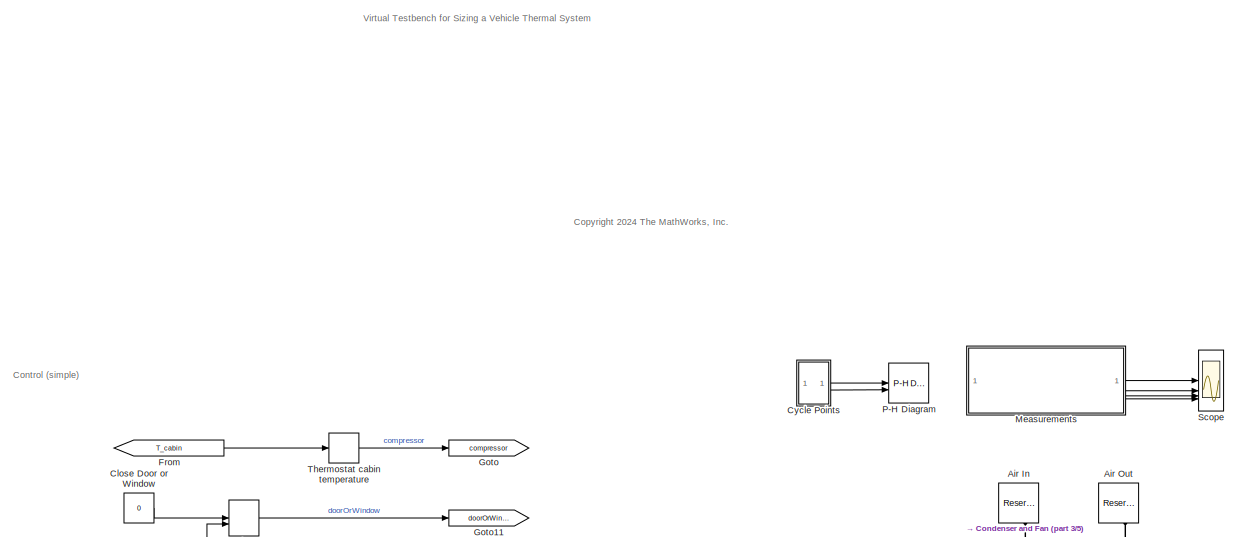
[diagram: root canvas - part 1/5, top center region]
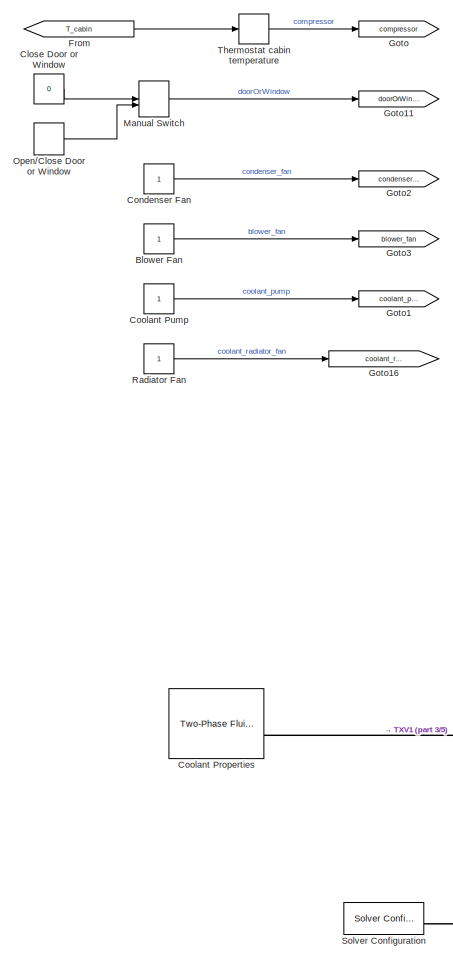
[diagram: root canvas - part 2/5, middle left region]
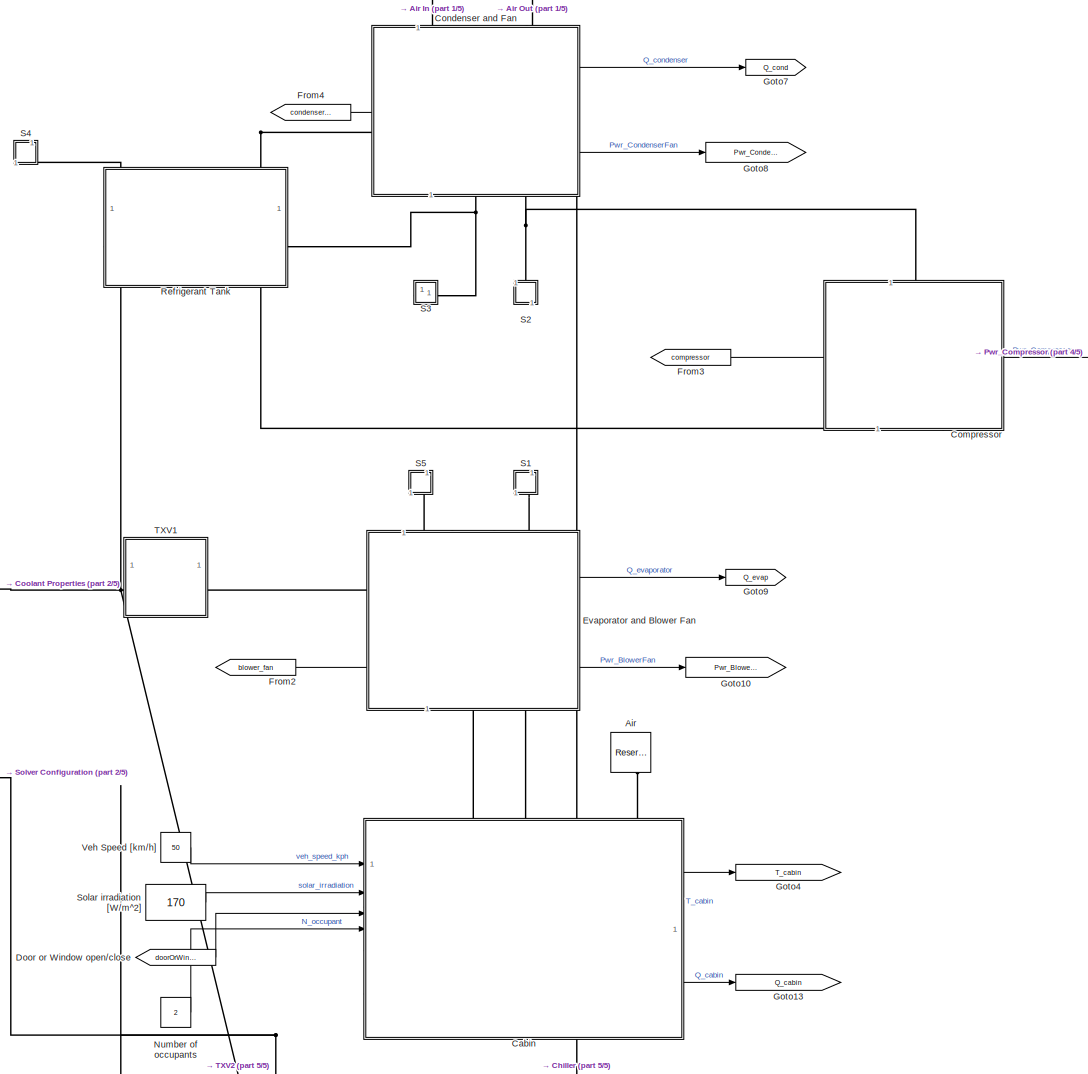
[diagram: root canvas - part 3/5, central region]
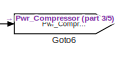
[diagram: root canvas - part 4/5, middle right region]
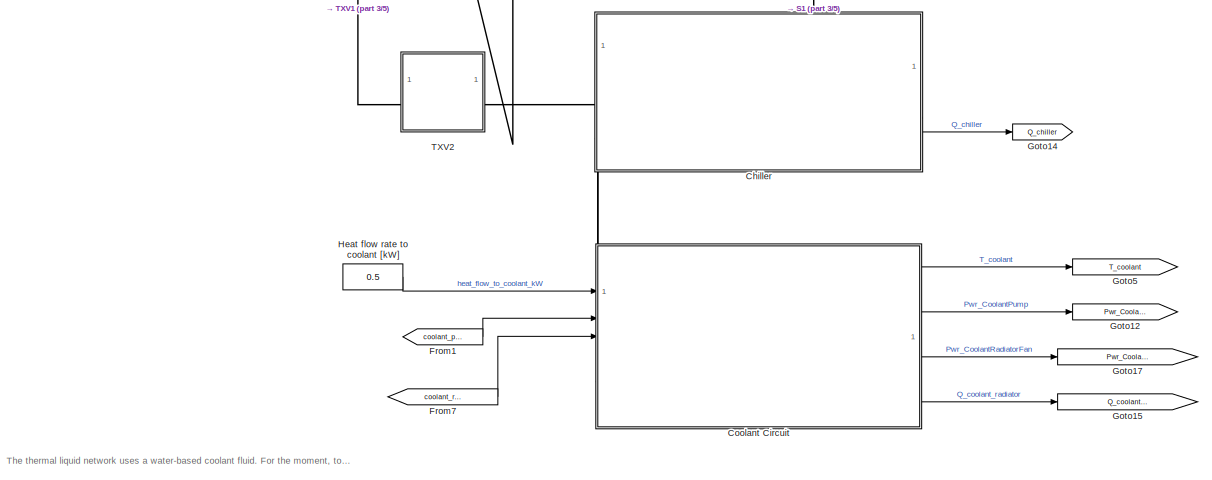
[diagram: root canvas - part 5/5, bottom center region]
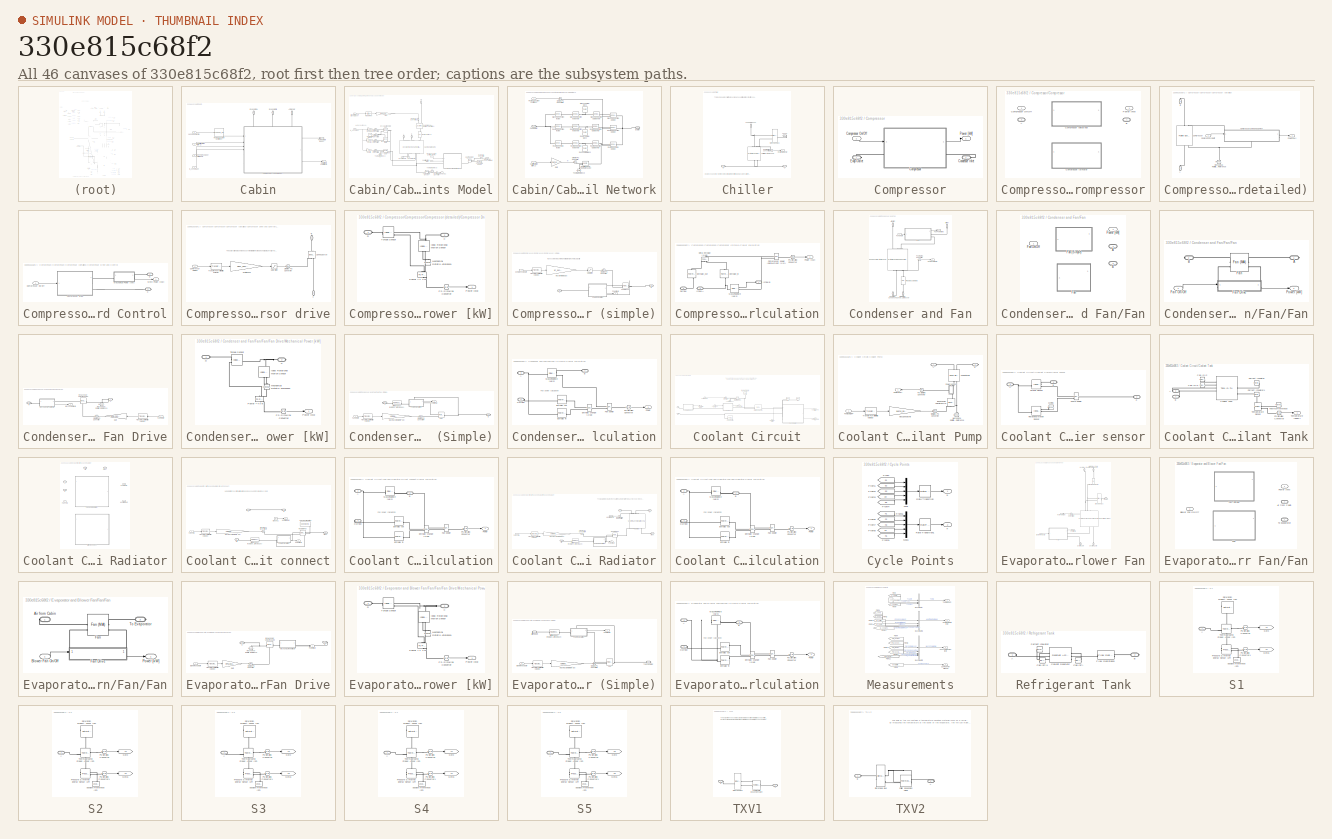
[diagram: thumbnail index - all 46 canvases of the model, root first then tree order]
MODEL slx_330e815c68f2
KIND model
CONFIG AbsTol = 1e-3
CONFIG EnableMultiTasking = off
CONFIG FixedStep = 0.2
CONFIG MaxStep = 1
CONFIG MinStep = auto
CONFIG RelTol = 1e-3
CONFIG SampleTimeConstraint = Unconstrained
CONFIG SolverName = daessc
CONFIG StartTime = 0
CONFIG StopTime = 600
BLOCK [Reference] Air  REF=fl_lib/Moist Air/Elements/Reservoir (MA)
  AttributesFormatString = temperature= %<reservoir_temperature> [%<reservoir_temperature_unit>]
  NameLocation = right
  SourceBlock = fl_lib/Moist Air/Elements/Reservoir (MA)
  SourceType = Reservoir (MA)
BLOCK [Reference] Air In  REF=fl_lib/Moist Air/Elements/Reservoir (MA)
  AttributesFormatString = temperature= %<reservoir_temperature>
  NameLocation = left
  SourceBlock = fl_lib/Moist Air/Elements/Reservoir (MA)
  SourceType = Reservoir (MA)
BLOCK [Reference] Air Out  REF=fl_lib/Moist Air/Elements/Reservoir (MA)
  AttributesFormatString = temperature= %<reservoir_temperature>
  NameLocation = right
  SourceBlock = fl_lib/Moist Air/Elements/Reservoir (MA)
  SourceType = Reservoir (MA)
BLOCK [Constant] Blower Fan
  SampleTime = 1
BLOCK [SubSystem] Cabin
  PortSchema = {"entries":[{"content":{"sides":[{"content":{"connectorIds":["In1","In2","In3","In4"]},"type":"ConnectorPlacement.EquallySpacedRectSide","uuid":"5cf57e4f-975f-4b0b-a8e8-bf86758a11fa"},{"content":{"connectorIds":["Out1","Out2"],"side":"RIGHT"},"type":"ConnectorPlacement.EquallySpacedRectSide","uuid":"7f477a27-3a34-4ed6-85c3-331630c97133"},{"content":{"connectorIds":["LConn1","LConn2","LConn3"],"sid...<+291ch>
BLOCK [PMIOPort] Cabin/Ambient Air
  NameLocation = left
  Port = 3
  Side = Left
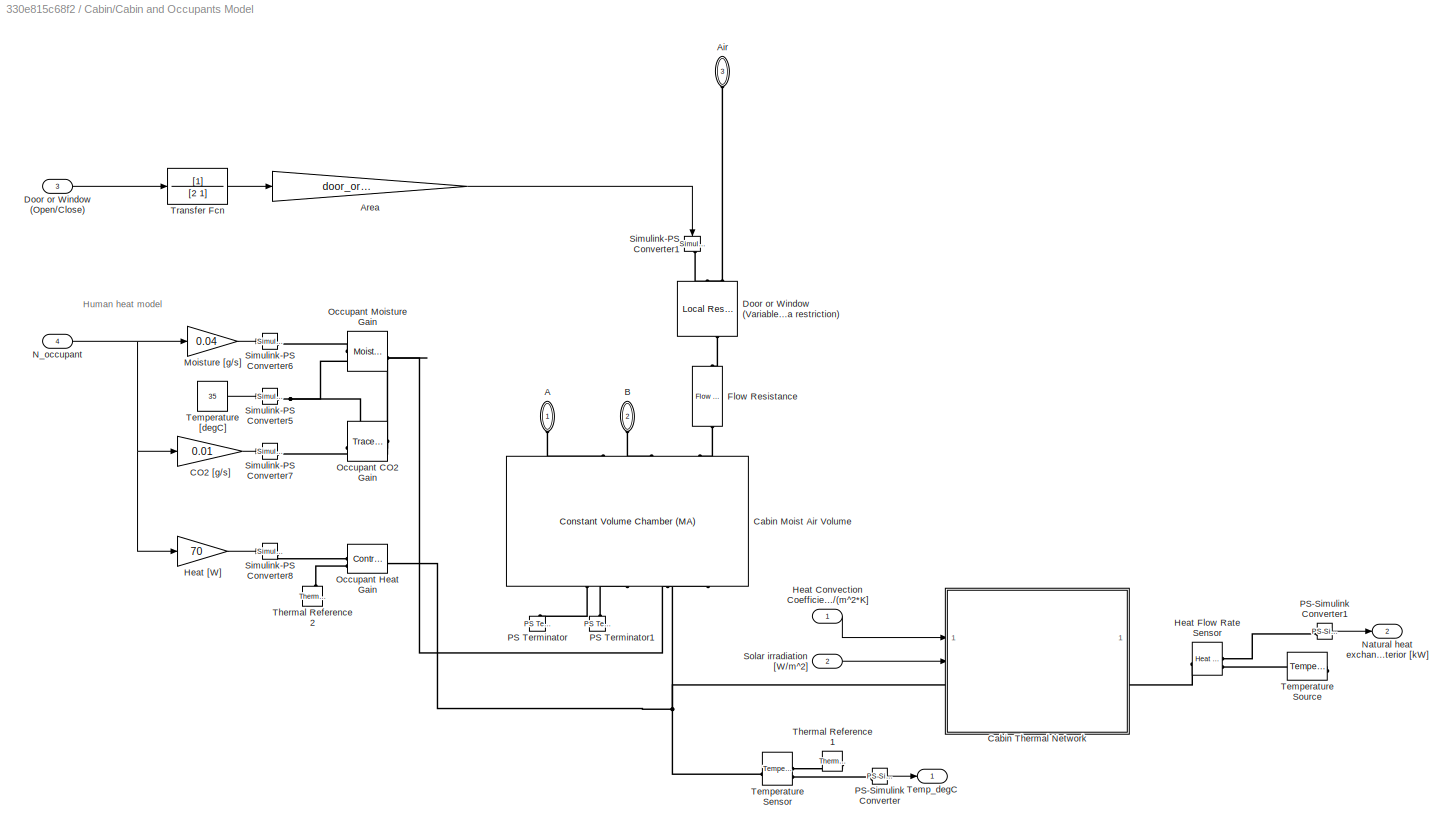
BLOCK [SubSystem] Cabin/Cabin and Occupants Model
  AttributesFormatString = Length= %<coolingBox_L>\nWidth= %<coolingBox_W>\nHeight= %<coolingBox_H>\nInitial Temp= %<T_cabin_init_degC>
  PortSchema = {"entries":[{"content":{"sides":[{"content":{"connectorIds":["In1","In2","In3","In4"]},"type":"ConnectorPlacement.EquallySpacedRectSide","uuid":"e1f7673a-ae09-4e38-a748-d03f3a89f634"},{"content":{"connectorIds":["Out1","Out2"],"side":"RIGHT"},"type":"ConnectorPlacement.EquallySpacedRectSide","uuid":"e2c59df4-5a81-4f6b-ab06-631ef800c0b1"},{"content":{"connectorIds":["LConn1","LConn2","LConn3"],"sid...<+291ch>
  Tag = PublishSubsystem
BLOCK [PMIOPort] Cabin/Cabin and Occupants Model/A
  NameLocation = left
  Side = Left
BLOCK [PMIOPort] Cabin/Cabin and Occupants Model/Air
  NameLocation = right
  Port = 3
  Side = Left
BLOCK [Gain] Cabin/Cabin and Occupants Model/Area
  Gain = door_or_window_area
BLOCK [PMIOPort] Cabin/Cabin and Occupants Model/B
  NameLocation = right
  Port = 2
  Side = Left
BLOCK [Gain] Cabin/Cabin and Occupants Model/CO2 [g//s]
  Gain = 0.01
BLOCK [Reference] Cabin/Cabin and Occupants Model/Cabin Moist Air Volume  REF=fl_lib/Moist Air/Elements/Constant Volume
Chamber (MA)
  NameLocation = right
  SourceBlock = fl_lib/Moist Air/Elements/Constant Volume\nChamber (MA)
  SourceType = Constant Volume\nChamber (MA)
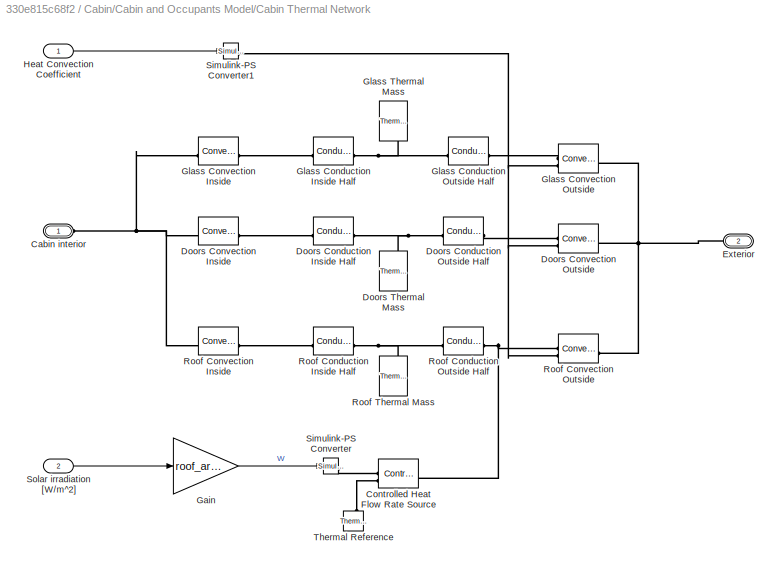
BLOCK [SubSystem] Cabin/Cabin and Occupants Model/Cabin Thermal Network
  Tag = PublishSubsystem
BLOCK [PMIOPort] Cabin/Cabin and Occupants Model/Cabin Thermal Network/Cabin interior
  Side = Left
BLOCK [Reference] Cabin/Cabin and Occupants Model/Cabin Thermal Network/Controlled Heat Flow Rate Source  REF=fl_lib/Thermal/Thermal Sources/Controlled Heat Flow
Rate Source
  SourceBlock = fl_lib/Thermal/Thermal Sources/Controlled Heat Flow\nRate Source
  SourceType = Controlled Heat Flow\nRate Source
BLOCK [Reference] Cabin/Cabin and Occupants Model/Cabin Thermal Network/Doors Conduction Inside Half  REF=fl_lib/Thermal/Thermal Elements/Conductive Heat
Transfer
  SourceBlock = fl_lib/Thermal/Thermal Elements/Conductive Heat\nTransfer
  SourceType = Conductive Heat\nTransfer
BLOCK [Reference] Cabin/Cabin and Occupants Model/Cabin Thermal Network/Doors Conduction Outside Half  REF=fl_lib/Thermal/Thermal Elements/Conductive Heat
Transfer
  SourceBlock = fl_lib/Thermal/Thermal Elements/Conductive Heat\nTransfer
  SourceType = Conductive Heat\nTransfer
BLOCK [Reference] Cabin/Cabin and Occupants Model/Cabin Thermal Network/Doors Convection Inside  REF=fl_lib/Thermal/Thermal Elements/Convective Heat
Transfer
  SourceBlock = fl_lib/Thermal/Thermal Elements/Convective Heat\nTransfer
  SourceType = Convective Heat\nTransfer
BLOCK [Reference] Cabin/Cabin and Occupants Model/Cabin Thermal Network/Doors Convection Outside  REF=fl_lib/Thermal/Thermal Elements/Convective Heat
Transfer
  SourceBlock = fl_lib/Thermal/Thermal Elements/Convective Heat\nTransfer
  SourceType = Convective Heat\nTransfer
BLOCK [Reference] Cabin/Cabin and Occupants Model/Cabin Thermal Network/Doors Thermal Mass  REF=fl_lib/Thermal/Thermal Elements/Thermal Mass
  SourceBlock = fl_lib/Thermal/Thermal Elements/Thermal Mass
  SourceType = Thermal Mass
BLOCK [PMIOPort] Cabin/Cabin and Occupants Model/Cabin Thermal Network/Exterior
  Port = 2
  Side = Right
BLOCK [Gain] Cabin/Cabin and Occupants Model/Cabin Thermal Network/Gain
  Gain = roof_area
BLOCK [Reference] Cabin/Cabin and Occupants Model/Cabin Thermal Network/Glass Conduction Inside Half  REF=fl_lib/Thermal/Thermal Elements/Conductive Heat
Transfer
  SourceBlock = fl_lib/Thermal/Thermal Elements/Conductive Heat\nTransfer
  SourceType = Conductive Heat\nTransfer
BLOCK [Reference] Cabin/Cabin and Occupants Model/Cabin Thermal Network/Glass Conduction Outside Half  REF=fl_lib/Thermal/Thermal Elements/Conductive Heat
Transfer
  SourceBlock = fl_lib/Thermal/Thermal Elements/Conductive Heat\nTransfer
  SourceType = Conductive Heat\nTransfer
BLOCK [Reference] Cabin/Cabin and Occupants Model/Cabin Thermal Network/Glass Convection Inside  REF=fl_lib/Thermal/Thermal Elements/Convective Heat
Transfer
  SourceBlock = fl_lib/Thermal/Thermal Elements/Convective Heat\nTransfer
  SourceType = Convective Heat\nTransfer
BLOCK [Reference] Cabin/Cabin and Occupants Model/Cabin Thermal Network/Glass Convection Outside  REF=fl_lib/Thermal/Thermal Elements/Convective Heat
Transfer
  SourceBlock = fl_lib/Thermal/Thermal Elements/Convective Heat\nTransfer
  SourceType = Convective Heat\nTransfer
BLOCK [Reference] Cabin/Cabin and Occupants Model/Cabin Thermal Network/Glass Thermal Mass  REF=fl_lib/Thermal/Thermal Elements/Thermal Mass
  NameLocation = top
  SourceBlock = fl_lib/Thermal/Thermal Elements/Thermal Mass
  SourceType = Thermal Mass
BLOCK [Inport] Cabin/Cabin and Occupants Model/Cabin Thermal Network/Heat Convection Coefficient
BLOCK [Reference] Cabin/Cabin and Occupants Model/Cabin Thermal Network/Roof Conduction Inside Half  REF=fl_lib/Thermal/Thermal Elements/Conductive Heat
Transfer
  SourceBlock = fl_lib/Thermal/Thermal Elements/Conductive Heat\nTransfer
  SourceType = Conductive Heat\nTransfer
BLOCK [Reference] Cabin/Cabin and Occupants Model/Cabin Thermal Network/Roof Conduction Outside Half  REF=fl_lib/Thermal/Thermal Elements/Conductive Heat
Transfer
  SourceBlock = fl_lib/Thermal/Thermal Elements/Conductive Heat\nTransfer
  SourceType = Conductive Heat\nTransfer
BLOCK [Reference] Cabin/Cabin and Occupants Model/Cabin Thermal Network/Roof Convection Inside  REF=fl_lib/Thermal/Thermal Elements/Convective Heat
Transfer
  SourceBlock = fl_lib/Thermal/Thermal Elements/Convective Heat\nTransfer
  SourceType = Convective Heat\nTransfer
BLOCK [Reference] Cabin/Cabin and Occupants Model/Cabin Thermal Network/Roof Convection Outside  REF=fl_lib/Thermal/Thermal Elements/Convective Heat
Transfer
  SourceBlock = fl_lib/Thermal/Thermal Elements/Convective Heat\nTransfer
  SourceType = Convective Heat\nTransfer
BLOCK [Reference] Cabin/Cabin and Occupants Model/Cabin Thermal Network/Roof Thermal Mass  REF=fl_lib/Thermal/Thermal Elements/Thermal Mass
  SourceBlock = fl_lib/Thermal/Thermal Elements/Thermal Mass
  SourceType = Thermal Mass
BLOCK [Reference] Cabin/Cabin and Occupants Model/Cabin Thermal Network/Simulink-PS Converter  REF=nesl_utility/Simulink-PS
Converter
  SourceBlock = nesl_utility/Simulink-PS\nConverter
  SourceType = Simulink-PS\nConverter
BLOCK [Reference] Cabin/Cabin and Occupants Model/Cabin Thermal Network/Simulink-PS Converter1  REF=nesl_utility/Simulink-PS
Converter
  SourceBlock = nesl_utility/Simulink-PS\nConverter
  SourceType = Simulink-PS\nConverter
BLOCK [Inport] Cabin/Cabin and Occupants Model/Cabin Thermal Network/Solar irradiation [W//m^2]
  Port = 2
BLOCK [Reference] Cabin/Cabin and Occupants Model/Cabin Thermal Network/Thermal Reference  REF=fl_lib/Thermal/Thermal Elements/Thermal Reference
  NameLocation = right
  SourceBlock = fl_lib/Thermal/Thermal Elements/Thermal Reference
  SourceType = Thermal Reference
BLOCK [Inport] Cabin/Cabin and Occupants Model/Door or Window (Open//Close)
  Port = 3
BLOCK [Reference] Cabin/Cabin and Occupants Model/Door or Window (Variable area restriction)  REF=fl_lib/Moist Air/Elements/Local Restriction
(MA)
  NameLocation = right
  SourceBlock = fl_lib/Moist Air/Elements/Local Restriction\n(MA)
  SourceType = Local Restriction\n(MA)
BLOCK [Reference] Cabin/Cabin and Occupants Model/Flow Resistance  REF=fl_lib/Moist Air/Elements/Flow Resistance (MA)
  NameLocation = right
  SourceBlock = fl_lib/Moist Air/Elements/Flow Resistance (MA)
  SourceType = Flow Resistance (MA)
BLOCK [Inport] Cabin/Cabin and Occupants Model/Heat Convection Coefficient [W//(m^2*K]
BLOCK [Reference] Cabin/Cabin and Occupants Model/Heat Flow Rate Sensor  REF=fl_lib/Thermal/Thermal Sensors/Heat Flow Rate
Sensor
  SourceBlock = fl_lib/Thermal/Thermal Sensors/Heat Flow Rate\nSensor
  SourceType = Heat Flow Rate\nSensor
BLOCK [Gain] Cabin/Cabin and Occupants Model/Heat [W]
  Gain = 70
BLOCK [Gain] Cabin/Cabin and Occupants Model/Moisture [g//s]
  Gain = 0.04
BLOCK [Inport] Cabin/Cabin and Occupants Model/N_occupant
  Port = 4
BLOCK [Outport] Cabin/Cabin and Occupants Model/Natural heat exchange to exterior [kW]
  NameLocation = right
  Port = 2
BLOCK [Reference] Cabin/Cabin and Occupants Model/Occupant CO2 Gain  REF=fl_lib/Moist Air/Sources/Moisture & Trace Gas
Sources/Trace Gas Source
(MA)
  SourceBlock = fl_lib/Moist Air/Sources/Moisture & Trace Gas\nSources/Trace Gas Source\n(MA)
  SourceType = Trace Gas Source\n(MA)
BLOCK [Reference] Cabin/Cabin and Occupants Model/Occupant Heat Gain  REF=fl_lib/Thermal/Thermal Sources/Controlled Heat Flow
Rate Source
  SourceBlock = fl_lib/Thermal/Thermal Sources/Controlled Heat Flow\nRate Source
  SourceType = Controlled Heat Flow\nRate Source
BLOCK [Reference] Cabin/Cabin and Occupants Model/Occupant Moisture Gain  REF=fl_lib/Moist Air/Sources/Moisture & Trace Gas
Sources/Moisture Source (MA)
  SourceBlock = fl_lib/Moist Air/Sources/Moisture & Trace Gas\nSources/Moisture Source (MA)
  SourceType = Moisture Source (MA)
BLOCK [Reference] Cabin/Cabin and Occupants Model/PS Terminator  REF=fl_lib/Physical Signals/Sinks/PS Terminator
  NameLocation = left
  SourceBlock = fl_lib/Physical Signals/Sinks/PS Terminator
  SourceType = PS Terminator
BLOCK [Reference] Cabin/Cabin and Occupants Model/PS Terminator1  REF=fl_lib/Physical Signals/Sinks/PS Terminator
  NameLocation = left
  SourceBlock = fl_lib/Physical Signals/Sinks/PS Terminator
  SourceType = PS Terminator
BLOCK [Reference] Cabin/Cabin and Occupants Model/PS-Simulink Converter  REF=nesl_utility/PS-Simulink
Converter
  NameLocation = top
  SourceBlock = nesl_utility/PS-Simulink\nConverter
  SourceType = PS-Simulink\nConverter
BLOCK [Reference] Cabin/Cabin and Occupants Model/PS-Simulink Converter1  REF=nesl_utility/PS-Simulink
Converter
  SourceBlock = nesl_utility/PS-Simulink\nConverter
  SourceType = PS-Simulink\nConverter
BLOCK [Reference] Cabin/Cabin and Occupants Model/Simulink-PS Converter1  REF=nesl_utility/Simulink-PS
Converter
  NameLocation = left
  SourceBlock = nesl_utility/Simulink-PS\nConverter
  SourceType = Simulink-PS\nConverter
BLOCK [Reference] Cabin/Cabin and Occupants Model/Simulink-PS Converter5  REF=nesl_utility/Simulink-PS
Converter
  AttributesFormatString = %<Unit>
  SourceBlock = nesl_utility/Simulink-PS\nConverter
  SourceType = Simulink-PS\nConverter
BLOCK [Reference] Cabin/Cabin and Occupants Model/Simulink-PS Converter6  REF=nesl_utility/Simulink-PS
Converter
  AttributesFormatString = %<Unit>
  SourceBlock = nesl_utility/Simulink-PS\nConverter
  SourceType = Simulink-PS\nConverter
BLOCK [Reference] Cabin/Cabin and Occupants Model/Simulink-PS Converter7  REF=nesl_utility/Simulink-PS
Converter
  AttributesFormatString = %<Unit>
  SourceBlock = nesl_utility/Simulink-PS\nConverter
  SourceType = Simulink-PS\nConverter
BLOCK [Reference] Cabin/Cabin and Occupants Model/Simulink-PS Converter8  REF=nesl_utility/Simulink-PS
Converter
  AttributesFormatString = %<Unit>
  SourceBlock = nesl_utility/Simulink-PS\nConverter
  SourceType = Simulink-PS\nConverter
BLOCK [Inport] Cabin/Cabin and Occupants Model/Solar irradiation [W//m^2]
  Port = 2
BLOCK [Outport] Cabin/Cabin and Occupants Model/Temp_degC
BLOCK [Reference] Cabin/Cabin and Occupants Model/Temperature Sensor  REF=fl_lib/Thermal/Thermal Sensors/Temperature Sensor
  NameLocation = top
  SourceBlock = fl_lib/Thermal/Thermal Sensors/Temperature Sensor
  SourceType = Temperature Sensor
BLOCK [Reference] Cabin/Cabin and Occupants Model/Temperature Source  REF=fl_lib/Thermal/Thermal Sources/Temperature Source
  AttributesFormatString = %<temperature> [%<temperature_unit>]
  SourceBlock = fl_lib/Thermal/Thermal Sources/Temperature Source
  SourceType = Temperature Source
BLOCK [Constant] Cabin/Cabin and Occupants Model/Temperature [degC]
  Value = 35
BLOCK [Reference] Cabin/Cabin and Occupants Model/Thermal Reference1  REF=fl_lib/Thermal/Thermal Elements/Thermal Reference
  NameLocation = top
  SourceBlock = fl_lib/Thermal/Thermal Elements/Thermal Reference
  SourceType = Thermal Reference
BLOCK [Reference] Cabin/Cabin and Occupants Model/Thermal Reference2  REF=fl_lib/Thermal/Thermal Elements/Thermal Reference
  NameLocation = right
  SourceBlock = fl_lib/Thermal/Thermal Elements/Thermal Reference
  SourceType = Thermal Reference
BLOCK [TransferFcn] Cabin/Cabin and Occupants Model/Transfer Fcn
  Denominator = [2 1]
  NameLocation = top
BLOCK [PMIOPort] Cabin/Evaporator A
  NameLocation = left
  Side = Left
BLOCK [PMIOPort] Cabin/Evaporator B
  NameLocation = left
  Port = 2
  Side = Left
BLOCK [Lookup_n-D] Cabin/Heat Convection Coefficient
  BreakpointsForDimension1 = [0 5 10]
  InputPortMap = u0
  InternalRulePriority = Speed
  NumberOfTableDimensions = 1
  RndMeth = Simplest
  Table = [1 50 100]
BLOCK [Outport] Cabin/Heat flow to exterior [kW]
  Port = 2
BLOCK [Inport] Cabin/N_occupant
  Port = 4
BLOCK [Inport] Cabin/Open//Close Door or Window
  Port = 3
BLOCK [Inport] Cabin/Solar irradiation [W//m^2]
  Port = 2
BLOCK [Outport] Cabin/Temperature [degC]
BLOCK [Inport] Cabin/Veh Speed [km//h]
  Unit = km/hour
BLOCK [SubSystem] Chiller
  PortSchema = {"entries":[{"content":{"sides":[{"content":{"connectorIds":["Out1","LConn1"]},"type":"ConnectorPlacement.EquallySpacedRectSide","uuid":"684495fe-43ac-42d2-91f9-c1083f68d635"},{"content":{"connectorIds":["RConn1"],"side":"RIGHT"},"type":"ConnectorPlacement.EquallySpacedRectSide","uuid":"acb3d27a-41e1-4bfe-a4d6-36d5666e4ba3"},{"content":{"connectorIds":["LConn2","LConn3"],"side":"TOP"},"type":"Conn...<+395ch>
  Tag = PublishSubsystem
BLOCK [PMIOPort] Chiller/C
  Port = 2
  Side = Left
BLOCK [Reference] Chiller/Chiller (System-Level)  REF=SimscapeFluids_lib/Fluid Network
Interfaces/Heat Exchangers/System-Level
Condenser Evaporator
(2P-TL)
  NameLocation = left
  SourceBlock = SimscapeFluids_lib/Fluid Network\nInterfaces/Heat Exchangers/System-Level\nCondenser Evaporator\n(2P-TL)
  SourceType = System-Level\nCondenser Evaporator\n(2P-TL)
BLOCK [PMIOPort] Chiller/D
  Port = 3
  Side = Left
BLOCK [Outport] Chiller/Heat flow rate [kW]
BLOCK [Reference] Chiller/PS-Simulink Converter1  REF=nesl_utility/PS-Simulink
Converter
  AttributesFormatString = %<Unit>
  NameLocation = top
  SourceBlock = nesl_utility/PS-Simulink\nConverter
  SourceType = PS-Simulink\nConverter
BLOCK [SimscapeBus] Chiller/Simscape Bus
  HierarchyStrings = bulb;inlet
BLOCK [PMIOPort] Chiller/To Compressor
  NameLocation = left
  Side = Left
BLOCK [PMIOPort] Chiller/To TXV
  Port = 4
  Side = Right
BLOCK [Constant] Close Door or Window
  SampleTime = 1
  Value = 0
BLOCK [SubSystem] Compressor
  PortSchema = {"entries":[{"content":{"sides":[{"content":{"connectorIds":["LConn1"]},"type":"ConnectorPlacement.EquallySpacedRectSide","uuid":"87497da4-7fcd-4c39-9d14-dd80365934db"},{"content":{"connectorIds":["RConn1"],"side":"RIGHT"},"type":"ConnectorPlacement.EquallySpacedRectSide","uuid":"c29b3d2b-7130-4a2f-8dcb-58b301edb84d"},{"content":{"connectorIds":["In1"],"side":"TOP"},"type":"ConnectorPlacement.Equa...<+400ch>
BLOCK [SubSystem] Compressor/Compressor
  LabelModeActiveChoice = Compressor_detailed
  Variant = on
  VariantControlMode = label
BLOCK [Inport] Compressor/Compressor On//Off
BLOCK [PMIOPort] Compressor/Compressor/A
  Port = 2
  Side = Left
BLOCK [PMIOPort] Compressor/Compressor/B
  Side = Right
BLOCK [SubSystem] Compressor/Compressor/Compressor (detailed)
  VariantControl = Compressor_detailed
BLOCK [PMIOPort] Compressor/Compressor/Compressor (detailed)/A
  NameLocation = right
  Port = 2
  Side = Left
BLOCK [PMIOPort] Compressor/Compressor/Compressor (detailed)/B
  NameLocation = right
  Side = Right
BLOCK [Reference] Compressor/Compressor/Compressor (detailed)/Compressor  REF=SimscapeFluids_lib/Two-Phase Fluid/Fluid Machines/Positive-Displacement
Compressor (2P)
  NameLocation = left
  SourceBlock = SimscapeFluids_lib/Two-Phase Fluid/Fluid Machines/Positive-Displacement\nCompressor (2P)
  SourceType = Positive-Displacement\nCompressor (2P)
BLOCK [SubSystem] Compressor/Compressor/Compressor (detailed)/Compressor Drive and Control
  NameLocation = top
  PortSchema = {"entries":[{"content":{"sides":[{"content":{"connectorIds":["In1"]},"type":"ConnectorPlacement.EquallySpacedRectSide","uuid":"e1f7673a-ae09-4e38-a748-d03f3a89f634"},{"content":{"connectorIds":["Out1"],"side":"RIGHT"},"type":"ConnectorPlacement.EquallySpacedRectSide","uuid":"e2c59df4-5a81-4f6b-ab06-631ef800c0b1"},{"content":{"connectorIds":["LConn1"],"side":"TOP"},"type":"ConnectorPlacement.Equall...<+400ch>
BLOCK [PMIOPort] Compressor/Compressor/Compressor (detailed)/Compressor Drive and Control/C
  Port = 2
  Side = Right
BLOCK [Inport] Compressor/Compressor/Compressor (detailed)/Compressor Drive and Control/Compressor On//Off
BLOCK [SubSystem] Compressor/Compressor/Compressor (detailed)/Compressor Drive and Control/Compressor drive
  VariantControl = Simple
BLOCK [PMIOPort] Compressor/Compressor/Compressor (detailed)/Compressor Drive and Control/Compressor drive/C
  NameLocation = right
  Port = 2
  Side = Right
BLOCK [Inport] Compressor/Compressor/Compressor (detailed)/Compressor Drive and Control/Compressor drive/Compressor ON//OFF
BLOCK [PMIOPort] Compressor/Compressor/Compressor (detailed)/Compressor Drive and Control/Compressor drive/R
  NameLocation = right
  Side = Right
BLOCK [Saturate] Compressor/Compressor/Compressor (detailed)/Compressor Drive and Control/Compressor drive/Saturation
  AttributesFormatString = UpperLimit= %<UpperLimit>\nLowerLimit= %<LowerLimit>
  LowerLimit = 10
  UpperLimit = inf
BLOCK [Gain] Compressor/Compressor/Compressor (detailed)/Compressor Drive and Control/Compressor drive/Shaft Speed
  Gain = RPM_Compressor_nominal
BLOCK [Reference] Compressor/Compressor/Compressor (detailed)/Compressor Drive and Control/Compressor drive/Simulink-PS Converter  REF=nesl_utility/Simulink-PS
Converter
  AttributesFormatString = %<Unit>
  SourceBlock = nesl_utility/Simulink-PS\nConverter
  SourceType = Simulink-PS\nConverter
BLOCK [Reference] Compressor/Compressor/Compressor (detailed)/Compressor Drive and Control/Compressor drive/Speed Source  REF=fl_lib/Mechanical/Mechanical Sources/Ideal Angular
Velocity Source
  NameLocation = right
  SourceBlock = fl_lib/Mechanical/Mechanical Sources/Ideal Angular\nVelocity Source
  SourceType = Ideal Angular\nVelocity Source
BLOCK [Reference] Compressor/Compressor/Compressor (detailed)/Compressor Drive and Control/Compressor drive/Transfer Fcn (with initial outputs)  REF=simulink_extras/Additional
Linear/Transfer Fcn
(with initial outputs)
  AttributesFormatString = Initial U= %<U0>\nInitial Y=%<Y0>
  SourceBlock = simulink_extras/Additional\nLinear/Transfer Fcn\n(with initial outputs)
  SourceType = Transfer Function with Initial Outputs
BLOCK [Outport] Compressor/Compressor/Compressor (detailed)/Compressor Drive and Control/Mech Power [kW]
BLOCK [SubSystem] Compressor/Compressor/Compressor (detailed)/Compressor Drive and Control/Mechanical Power [kW]
  PortSchema = {"entries":[{"content":{"sides":[{"content":{"connectorIds":["LConn1"]},"type":"ConnectorPlacement.EquallySpacedRectSide","uuid":"b1060c97-67a5-45b5-8fe0-0144ebafaeff"},{"content":{"connectorIds":["RConn1","Out1"],"side":"RIGHT"},"type":"ConnectorPlacement.EquallySpacedRectSide","uuid":"ebd15156-b3e0-4ce2-8bbb-160ba7fee2c1"},{"content":{"side":"TOP"},"type":"ConnectorPlacement.EquallySpacedRectSid...<+234ch>  <repeated x3 — deduplicated; at blocks: Mechanical Power [kW]>
BLOCK [PMIOPort] Compressor/Compressor/Compressor (detailed)/Compressor Drive and Control/Mechanical Power [kW]/C
  Port = 2
  Side = Right
BLOCK [Reference] Compressor/Compressor/Compressor (detailed)/Compressor Drive and Control/Mechanical Power [kW]/Ideal Rotational Motion Sensor  REF=fl_lib/Mechanical/Mechanical Sensors/Ideal Rotational
Motion Sensor
  NameLocation = right
  SourceBlock = fl_lib/Mechanical/Mechanical Sensors/Ideal Rotational\nMotion Sensor
  SourceType = Ideal Rotational\nMotion Sensor
BLOCK [Reference] Compressor/Compressor/Compressor (detailed)/Compressor Drive and Control/Mechanical Power [kW]/Mechanical Rotational Reference1  REF=fl_lib/Mechanical/Rotational Elements/Mechanical
Rotational Reference
  NameLocation = right
  SourceBlock = fl_lib/Mechanical/Rotational Elements/Mechanical\nRotational Reference
  SourceType = Mechanical\nRotational Reference
BLOCK [Reference] Compressor/Compressor/Compressor (detailed)/Compressor Drive and Control/Mechanical Power [kW]/PS-Simulink Converter  REF=nesl_utility/PS-Simulink
Converter
  AttributesFormatString = %<Unit>
  SourceBlock = nesl_utility/PS-Simulink\nConverter
  SourceType = PS-Simulink\nConverter
BLOCK [Reference] Compressor/Compressor/Compressor (detailed)/Compressor Drive and Control/Mechanical Power [kW]/Power = T x w  REF=fl_lib/Physical Signals/Functions/PS Product
  NameLocation = left
  SourceBlock = fl_lib/Physical Signals/Functions/PS Product
  SourceType = PS Product
BLOCK [Outport] Compressor/Compressor/Compressor (detailed)/Compressor Drive and Control/Mechanical Power [kW]/Power [kW]
BLOCK [PMIOPort] Compressor/Compressor/Compressor (detailed)/Compressor Drive and Control/Mechanical Power [kW]/R
  Side = Left
BLOCK [Reference] Compressor/Compressor/Compressor (detailed)/Compressor Drive and Control/Mechanical Power [kW]/Torque Sensor  REF=fl_lib/Mechanical/Mechanical Sensors/Ideal Torque Sensor
  SourceBlock = fl_lib/Mechanical/Mechanical Sensors/Ideal Torque Sensor
  SourceType = Ideal Torque Sensor
BLOCK [PMIOPort] Compressor/Compressor/Compressor (detailed)/Compressor Drive and Control/R
  Side = Left
BLOCK [Inport] Compressor/Compressor/Compressor (detailed)/Compressor On//Off
BLOCK [Reference] Compressor/Compressor/Compressor (detailed)/Mechanical Rotational Reference  REF=fl_lib/Mechanical/Rotational Elements/Mechanical
Rotational Reference
  NameLocation = left
  SourceBlock = fl_lib/Mechanical/Rotational Elements/Mechanical\nRotational Reference
  SourceType = Mechanical\nRotational Reference
BLOCK [Outport] Compressor/Compressor/Compressor (detailed)/Power [kW]
BLOCK [SubSystem] Compressor/Compressor/Compressor (simple)
  VariantControl = Compressor_simple
BLOCK [PMIOPort] Compressor/Compressor/Compressor (simple)/A
  NameLocation = top
  Port = 2
  Side = Left
BLOCK [PMIOPort] Compressor/Compressor/Compressor (simple)/B
  NameLocation = top
  Side = Right
BLOCK [Reference] Compressor/Compressor/Compressor (simple)/Compressor  REF=fl_lib/Two-Phase Fluid/Sources/Flow Rate Source
(2P)
  SourceBlock = fl_lib/Two-Phase Fluid/Sources/Flow Rate Source\n(2P)
  SourceType = Flow Rate Source\n(2P)
BLOCK [Inport] Compressor/Compressor/Compressor (simple)/Compressor On//Off
BLOCK [Gain] Compressor/Compressor/Compressor (simple)/Mass flow rate [kg//s]
  Gain = air_density*refrigerant_massflowrate
BLOCK [Outport] Compressor/Compressor/Compressor (simple)/Power [kW]
BLOCK [SubSystem] Compressor/Compressor/Compressor (simple)/Power calculation
  NameLocation = top
  PortSchema = {"entries":[{"content":{"sides":[{"content":{"connectorIds":["LConn1","Out1"]},"type":"ConnectorPlacement.EquallySpacedRectSide","uuid":"60dfc9c4-2069-44db-a6d3-aabe4cb83eaf"},{"content":{"connectorIds":["RConn1"],"side":"RIGHT"},"type":"ConnectorPlacement.EquallySpacedRectSide","uuid":"66292eb3-19f8-434d-8c80-034a72b871d8"},{"content":{"side":"TOP"},"type":"ConnectorPlacement.EquallySpacedRectSid...<+386ch>
BLOCK [Reference] Compressor/Compressor/Compressor (simple)/Power calculation/Compressor power (deltaH*mdot [J//s])  REF=fl_lib/Physical Signals/Functions/PS Product
  SourceBlock = fl_lib/Physical Signals/Functions/PS Product
  SourceType = PS Product
BLOCK [Reference] Compressor/Compressor/Compressor (simple)/Power calculation/Enthalpy_in  REF=fl_lib/Two-Phase Fluid/Sensors/Thermodynamic
Properties Sensor
(2P)
  NameLocation = left
  SourceBlock = fl_lib/Two-Phase Fluid/Sensors/Thermodynamic\nProperties Sensor\n(2P)
  SourceType = Thermodynamic\nProperties Sensor\n(2P)
BLOCK [Reference] Compressor/Compressor/Compressor (simple)/Power calculation/Enthalpy_out  REF=fl_lib/Two-Phase Fluid/Sensors/Thermodynamic
Properties Sensor
(2P)
  NameLocation = left
  SourceBlock = fl_lib/Two-Phase Fluid/Sensors/Thermodynamic\nProperties Sensor\n(2P)
  SourceType = Thermodynamic\nProperties Sensor\n(2P)
BLOCK [PMIOPort] Compressor/Compressor/Compressor (simple)/Power calculation/Inflow A
  Port = 2
  Side = Right
BLOCK [PMIOPort] Compressor/Compressor/Compressor (simple)/Power calculation/Inflow B
  Side = Left
BLOCK [Reference] Compressor/Compressor/Compressor (simple)/Power calculation/MassFlowRate [kg//s]  REF=fl_lib/Two-Phase Fluid/Sensors/Flow Rate Sensor
(2P)
  SourceBlock = fl_lib/Two-Phase Fluid/Sensors/Flow Rate Sensor\n(2P)
  SourceType = Flow Rate Sensor\n(2P)
BLOCK [PMIOPort] Compressor/Compressor/Compressor (simple)/Power calculation/Outflow
  Port = 3
  Side = Right
BLOCK [Reference] Compressor/Compressor/Compressor (simple)/Power calculation/PS-Simulink Converter  REF=nesl_utility/PS-Simulink
Converter
  SourceBlock = nesl_utility/PS-Simulink\nConverter
  SourceType = PS-Simulink\nConverter
BLOCK [Outport] Compressor/Compressor/Compressor (simple)/Power calculation/Power [kW]
BLOCK [Reference] Compressor/Compressor/Compressor (simple)/Power calculation/delta enthalpy [J//kg]  REF=fl_lib/Physical Signals/Functions/PS Subtract
  NameLocation = right
  SourceBlock = fl_lib/Physical Signals/Functions/PS Subtract
  SourceType = PS Subtract
BLOCK [Saturate] Compressor/Compressor/Compressor (simple)/Saturation
  AttributesFormatString = UpperLimit= %<UpperLimit>\nLowerLimit= %<LowerLimit>
  LowerLimit = 0.001
  UpperLimit = inf
BLOCK [Reference] Compressor/Compressor/Compressor (simple)/Simulink-PS Converter  REF=nesl_utility/Simulink-PS
Converter
  AttributesFormatString = %<Unit>
  SourceBlock = nesl_utility/Simulink-PS\nConverter
  SourceType = Simulink-PS\nConverter
BLOCK [Reference] Compressor/Compressor/Compressor (simple)/Transfer Fcn (with initial outputs)  REF=simulink_extras/Additional
Linear/Transfer Fcn
(with initial outputs)
  AttributesFormatString = Initial U= %<U0>\nInitial Y=%<Y0>
  SourceBlock = simulink_extras/Additional\nLinear/Transfer Fcn\n(with initial outputs)
  SourceType = Transfer Function with Initial Outputs
BLOCK [Inport] Compressor/Compressor/Compressor On//Off
BLOCK [Outport] Compressor/Compressor/Power [kW]
BLOCK [PMIOPort] Compressor/Condenser Inlet
  Port = 2
  Side = Right
BLOCK [PMIOPort] Compressor/Evap Outlet
  Side = Left
BLOCK [Outport] Compressor/Power [kW]
BLOCK [Constant] Condenser Fan
  SampleTime = 1
BLOCK [SubSystem] Condenser and Fan
  NameLocation = right
  PortSchema = {"entries":[{"content":{"sides":[{"content":{"connectorIds":["LConn1","LConn2"]},"type":"ConnectorPlacement.EquallySpacedRectSide","uuid":"94f743b0-016e-4f6c-ba37-cd5c9e5decb1"},{"content":{"connectorIds":["RConn1","RConn2"],"side":"RIGHT"},"type":"ConnectorPlacement.EquallySpacedRectSide","uuid":"4e78d493-e8a5-489f-9c9b-6c9134237572"},{"content":{"connectorIds":["In1"],"side":"TOP"},"type":"Conne...<+425ch>
BLOCK [PMIOPort] Condenser and Fan/Air Inlet
  NameLocation = right
  Side = Left
BLOCK [PMIOPort] Condenser and Fan/Air Outlet
  NameLocation = left
  Port = 2
  Side = Left
BLOCK [Reference] Condenser and Fan/Condenser (System-Level)  REF=SimscapeFluids_lib/Fluid Network
Interfaces/Heat Exchangers/System-Level
Condenser Evaporator
(2P-MA)
  NameLocation = left
  SourceBlock = SimscapeFluids_lib/Fluid Network\nInterfaces/Heat Exchangers/System-Level\nCondenser Evaporator\n(2P-MA)
  SourceType = System-Level\nCondenser Evaporator\n(2P-MA)
BLOCK [PMIOPort] Condenser and Fan/CoolSide_Condenser
  NameLocation = left
  Port = 3
  Side = Right
BLOCK [SubSystem] Condenser and Fan/Fan
  LabelModeActiveChoice = Fan_simple
  Variant = on
  VariantControlMode = label
BLOCK [Inport] Condenser and Fan/Fan On//Off
BLOCK [Outport] Condenser and Fan/Fan Power [kW]
  Port = 2
BLOCK [PMIOPort] Condenser and Fan/Fan/A
  Side = Right
BLOCK [PMIOPort] Condenser and Fan/Fan/B
  Port = 2
  Side = Right
BLOCK [SubSystem] Condenser and Fan/Fan/Fan
  VariantControl = Fan
BLOCK [SubSystem] Condenser and Fan/Fan/Fan (Simple)
  VariantControl = Fan_simple
BLOCK [PMIOPort] Condenser and Fan/Fan/Fan (Simple)/A
  Side = Right
BLOCK [Reference] Condenser and Fan/Fan/Fan (Simple)/Air Intake duct resistance (pressure increase)  REF=fl_lib/Moist Air/Elements/Flow Resistance (MA)
  SourceBlock = fl_lib/Moist Air/Elements/Flow Resistance (MA)
  SourceType = Flow Resistance (MA)
BLOCK [PMIOPort] Condenser and Fan/Fan/Fan (Simple)/B
  Port = 2
  Side = Right
BLOCK [Reference] Condenser and Fan/Fan/Fan (Simple)/Fan  REF=fl_lib/Moist Air/Sources/Flow Rate Source
(MA)
  SourceBlock = fl_lib/Moist Air/Sources/Flow Rate Source\n(MA)
  SourceType = Flow Rate Source\n(MA)
BLOCK [Inport] Condenser and Fan/Fan/Fan (Simple)/Fan On//Off
BLOCK [Gain] Condenser and Fan/Fan/Fan (Simple)/Max mass flow rate [m^3//s]
  Gain = VolFlowrate_CondenserFan
BLOCK [Outport] Condenser and Fan/Fan/Fan (Simple)/Power [kW]
BLOCK [SubSystem] Condenser and Fan/Fan/Fan (Simple)/Power calculation
  PortSchema = {"entries":[{"content":{"sides":[{"content":{"connectorIds":["Out1","LConn1"]},"type":"ConnectorPlacement.EquallySpacedRectSide","uuid":"669ba9b3-6d75-43b3-9fc2-86ec165c433c"},{"content":{"connectorIds":["RConn1"],"side":"RIGHT"},"type":"ConnectorPlacement.EquallySpacedRectSide","uuid":"18ca96c9-da08-4e71-b2ef-00a141e09069"},{"content":{"connectorIds":["LConn2"],"side":"TOP"},"type":"ConnectorPlac...<+260ch>
BLOCK [PMIOPort] Condenser and Fan/Fan/Fan (Simple)/Power calculation/A
  Port = 3
  Side = Right
BLOCK [PMIOPort] Condenser and Fan/Fan/Fan (Simple)/Power calculation/B
  Side = Left
BLOCK [Reference] Condenser and Fan/Fan/Fan (Simple)/Power calculation/Enthalpy change [J//kg]  REF=fl_lib/Physical Signals/Functions/PS Subtract
  SourceBlock = fl_lib/Physical Signals/Functions/PS Subtract
  SourceType = PS Subtract
BLOCK [Reference] Condenser and Fan/Fan/Fan (Simple)/Power calculation/Enthalpy in  REF=fl_lib/Moist Air/Sensors/Thermodynamic
Properties Sensor
(MA)
  SourceBlock = fl_lib/Moist Air/Sensors/Thermodynamic\nProperties Sensor\n(MA)
  SourceType = Thermodynamic\nProperties Sensor\n(MA)
BLOCK [Reference] Condenser and Fan/Fan/Fan (Simple)/Power calculation/Enthalpy out   REF=fl_lib/Moist Air/Sensors/Thermodynamic
Properties Sensor
(MA)
  SourceBlock = fl_lib/Moist Air/Sensors/Thermodynamic\nProperties Sensor\n(MA)
  SourceType = Thermodynamic\nProperties Sensor\n(MA)
BLOCK [Reference] Condenser and Fan/Fan/Fan (Simple)/Power calculation/Fan power  REF=fl_lib/Physical Signals/Functions/PS Product
  SourceBlock = fl_lib/Physical Signals/Functions/PS Product
  SourceType = PS Product
BLOCK [Reference] Condenser and Fan/Fan/Fan (Simple)/Power calculation/MassFlowRate [kg//s]   REF=fl_lib/Moist Air/Sensors/Flow Rate Sensor
(MA)
  SourceBlock = fl_lib/Moist Air/Sensors/Flow Rate Sensor\n(MA)
  SourceType = Flow Rate Sensor\n(MA)
BLOCK [PMIOPort] Condenser and Fan/Fan/Fan (Simple)/Power calculation/Outflow
  Port = 2
  Side = Left
BLOCK [Reference] Condenser and Fan/Fan/Fan (Simple)/Power calculation/PS-Simulink Converter  REF=nesl_utility/PS-Simulink
Converter
  AttributesFormatString = %<Unit>
  SourceBlock = nesl_utility/PS-Simulink\nConverter
  SourceType = PS-Simulink\nConverter
BLOCK [Outport] Condenser and Fan/Fan/Fan (Simple)/Power calculation/Power
BLOCK [Reference] Condenser and Fan/Fan/Fan (Simple)/Simulink-PS Converter4  REF=nesl_utility/Simulink-PS
Converter
  AttributesFormatString = %<Unit>
  SourceBlock = nesl_utility/Simulink-PS\nConverter
  SourceType = Simulink-PS\nConverter
BLOCK [Reference] Condenser and Fan/Fan/Fan (Simple)/Transfer Fcn (with initial outputs)  REF=simulink_extras/Additional
Linear/Transfer Fcn
(with initial outputs)
  AttributesFormatString = Initial U= %<U0>\nInitial Y=%<Y0>
  SourceBlock = simulink_extras/Additional\nLinear/Transfer Fcn\n(with initial outputs)
  SourceType = Transfer Function with Initial Outputs
BLOCK [Inport] Condenser and Fan/Fan/Fan On//Off
BLOCK [PMIOPort] Condenser and Fan/Fan/Fan/A
  NameLocation = top
  Side = Right
BLOCK [PMIOPort] Condenser and Fan/Fan/Fan/B
  Port = 2
  Side = Right
BLOCK [Reference] Condenser and Fan/Fan/Fan/Fan  REF=SimscapeFluids_lib/Moist Air/Turbomachinery/Fan (MA)
  SourceBlock = SimscapeFluids_lib/Moist Air/Turbomachinery/Fan (MA)
  SourceType = Fan (MA)
BLOCK [SubSystem] Condenser and Fan/Fan/Fan/Fan Drive
  PortSchema = {"entries":[{"content":{"sides":[{"content":{"connectorIds":["LConn1","In1"]},"type":"ConnectorPlacement.EquallySpacedRectSide","uuid":"87497da4-7fcd-4c39-9d14-dd80365934db"},{"content":{"connectorIds":["RConn1","Out1"],"side":"RIGHT"},"type":"ConnectorPlacement.EquallySpacedRectSide","uuid":"c29b3d2b-7130-4a2f-8dcb-58b301edb84d"},{"content":{"side":"TOP"},"type":"ConnectorPlacement.EquallySpacedR...<+240ch>
BLOCK [PMIOPort] Condenser and Fan/Fan/Fan/Fan Drive/C
  Port = 2
  Side = Right
BLOCK [Inport] Condenser and Fan/Fan/Fan/Fan Drive/Fan On//Off
BLOCK [Gain] Condenser and Fan/Fan/Fan/Fan Drive/Gain
  Gain = RPM_CondFan
  NameLocation = top
BLOCK [Reference] Condenser and Fan/Fan/Fan/Fan Drive/Ideal Angular Velocity Source  REF=fl_lib/Mechanical/Mechanical Sources/Ideal Angular
Velocity Source
  SourceBlock = fl_lib/Mechanical/Mechanical Sources/Ideal Angular\nVelocity Source
  SourceType = Ideal Angular\nVelocity Source
BLOCK [Outport] Condenser and Fan/Fan/Fan/Fan Drive/Mech Power [kW]
BLOCK [SubSystem] Condenser and Fan/Fan/Fan/Fan Drive/Mechanical Power [kW]
BLOCK [PMIOPort] Condenser and Fan/Fan/Fan/Fan Drive/Mechanical Power [kW]/C
  Port = 2
  Side = Right
BLOCK [Reference] Condenser and Fan/Fan/Fan/Fan Drive/Mechanical Power [kW]/Ideal Rotational Motion Sensor  REF=fl_lib/Mechanical/Mechanical Sensors/Ideal Rotational
Motion Sensor
  NameLocation = right
  SourceBlock = fl_lib/Mechanical/Mechanical Sensors/Ideal Rotational\nMotion Sensor
  SourceType = Ideal Rotational\nMotion Sensor
BLOCK [Reference] Condenser and Fan/Fan/Fan/Fan Drive/Mechanical Power [kW]/Mechanical Rotational Reference1  REF=fl_lib/Mechanical/Rotational Elements/Mechanical
Rotational Reference
  NameLocation = right
  SourceBlock = fl_lib/Mechanical/Rotational Elements/Mechanical\nRotational Reference
  SourceType = Mechanical\nRotational Reference
BLOCK [Reference] Condenser and Fan/Fan/Fan/Fan Drive/Mechanical Power [kW]/PS-Simulink Converter  REF=nesl_utility/PS-Simulink
Converter
  AttributesFormatString = %<Unit>
  SourceBlock = nesl_utility/PS-Simulink\nConverter
  SourceType = PS-Simulink\nConverter
BLOCK [Reference] Condenser and Fan/Fan/Fan/Fan Drive/Mechanical Power [kW]/Power = T x w  REF=fl_lib/Physical Signals/Functions/PS Product
  NameLocation = left
  SourceBlock = fl_lib/Physical Signals/Functions/PS Product
  SourceType = PS Product
BLOCK [Outport] Condenser and Fan/Fan/Fan/Fan Drive/Mechanical Power [kW]/Power [kW]
BLOCK [PMIOPort] Condenser and Fan/Fan/Fan/Fan Drive/Mechanical Power [kW]/R
  Side = Left
BLOCK [Reference] Condenser and Fan/Fan/Fan/Fan Drive/Mechanical Power [kW]/Torque Sensor  REF=fl_lib/Mechanical/Mechanical Sensors/Ideal Torque Sensor
  NameLocation = top
  SourceBlock = fl_lib/Mechanical/Mechanical Sensors/Ideal Torque Sensor
  SourceType = Ideal Torque Sensor
BLOCK [Reference] Condenser and Fan/Fan/Fan/Fan Drive/Mechanical Rotational Reference  REF=fl_lib/Mechanical/Rotational Elements/Mechanical
Rotational Reference
  NameLocation = right
  SourceBlock = fl_lib/Mechanical/Rotational Elements/Mechanical\nRotational Reference
  SourceType = Mechanical\nRotational Reference
BLOCK [PMIOPort] Condenser and Fan/Fan/Fan/Fan Drive/R
  Side = Left
BLOCK [Reference] Condenser and Fan/Fan/Fan/Fan Drive/Simulink-PS Converter  REF=nesl_utility/Simulink-PS
Converter
  AttributesFormatString = %<Unit>
  SourceBlock = nesl_utility/Simulink-PS\nConverter
  SourceType = Simulink-PS\nConverter
BLOCK [Reference] Condenser and Fan/Fan/Fan/Fan Drive/Transfer Fcn (with initial outputs)  REF=simulink_extras/Additional
Linear/Transfer Fcn
(with initial outputs)
  AttributesFormatString = Initial U= %<U0>\nInitial Y=%<Y0>
  SourceBlock = simulink_extras/Additional\nLinear/Transfer Fcn\n(with initial outputs)
  SourceType = Transfer Function with Initial Outputs
BLOCK [Inport] Condenser and Fan/Fan/Fan/Fan On//Off
BLOCK [Outport] Condenser and Fan/Fan/Fan/Power [kW]
BLOCK [Outport] Condenser and Fan/Fan/Power [kW]
BLOCK [Outport] Condenser and Fan/Heat Power [kW]
BLOCK [Reference] Condenser and Fan/PS-Simulink Converter  REF=nesl_utility/PS-Simulink
Converter
  AttributesFormatString = %<Unit>
  SourceBlock = nesl_utility/PS-Simulink\nConverter
  SourceType = PS-Simulink\nConverter
BLOCK [Reference] Condenser and Fan/Pipe pressure drop  REF=fl_lib/Two-Phase Fluid/Elements/Flow Resistance (2P)
  NameLocation = right
  SourceBlock = fl_lib/Two-Phase Fluid/Elements/Flow Resistance (2P)
  SourceType = Flow Resistance (2P)
BLOCK [PMIOPort] Condenser and Fan/WarmSide_Condenser (from Compressor)
  NameLocation = right
  Port = 4
  Side = Right
BLOCK [SubSystem] Coolant Circuit
  PortSchema = {"entries":[{"content":{"sides":[{"content":{"connectorIds":["In1","In2","In3"]},"type":"ConnectorPlacement.EquallySpacedRectSide","uuid":"61b3bd2b-efba-48b8-bc1e-7d5fd1f93ea8"},{"content":{"connectorIds":["Out1","Out2","Out3","Out4"],"side":"RIGHT"},"type":"ConnectorPlacement.EquallySpacedRectSide","uuid":"116770ca-4665-4fbe-8ef7-14ad65bf6363"},{"content":{"connectorIds":["LConn1","LConn2"],"side...<+290ch>
BLOCK [PMIOPort] Coolant Circuit/A
  Side = Left
BLOCK [Reference] Coolant Circuit/Air In  REF=fl_lib/Moist Air/Elements/Reservoir (MA)
  AttributesFormatString = temperature= %<reservoir_temperature>
  NameLocation = left
  SourceBlock = fl_lib/Moist Air/Elements/Reservoir (MA)
  SourceType = Reservoir (MA)
BLOCK [Reference] Coolant Circuit/Air Out  REF=fl_lib/Moist Air/Elements/Reservoir (MA)
  AttributesFormatString = temperature= %<reservoir_temperature>
  NameLocation = right
  SourceBlock = fl_lib/Moist Air/Elements/Reservoir (MA)
  SourceType = Reservoir (MA)
BLOCK [PMIOPort] Coolant Circuit/B
  Port = 2
  Side = Left
BLOCK [Reference] Coolant Circuit/Controlled Heat Flow Rate Source  REF=fl_lib/Thermal/Thermal Sources/Controlled Heat Flow
Rate Source
  SourceBlock = fl_lib/Thermal/Thermal Sources/Controlled Heat Flow\nRate Source
  SourceType = Controlled Heat Flow\nRate Source
BLOCK [Reference] Coolant Circuit/Coolant Properties  REF=SimscapeFluids_lib/Thermal Liquid/Utilities/Thermal Liquid
Properties (TL)
  SourceBlock = SimscapeFluids_lib/Thermal Liquid/Utilities/Thermal Liquid\nProperties (TL)
  SourceType = Thermal Liquid\nProperties (TL)
BLOCK [SubSystem] Coolant Circuit/Coolant Pump
  Tag = PublishSubsystem
BLOCK [Inport] Coolant Circuit/Coolant Pump On//Off
  Port = 2
BLOCK [PMIOPort] Coolant Circuit/Coolant Pump/A
  Side = Left
BLOCK [PMIOPort] Coolant Circuit/Coolant Pump/B
  Port = 2
  Side = Right
BLOCK [Reference] Coolant Circuit/Coolant Pump/Coolant Pump  REF=SimscapeFluids_lib/Thermal Liquid/Pumps & Motors/Fixed-Displacement
Pump (TL)
  NameLocation = right
  SourceBlock = SimscapeFluids_lib/Thermal Liquid/Pumps & Motors/Fixed-Displacement\nPump (TL)
  SourceType = Fixed-Displacement\nPump (TL)
BLOCK [Reference] Coolant Circuit/Coolant Pump/Ideal Angular Velocity Source  REF=fl_lib/Mechanical/Mechanical Sources/Ideal Angular
Velocity Source
  NameLocation = left
  SourceBlock = fl_lib/Mechanical/Mechanical Sources/Ideal Angular\nVelocity Source
  SourceType = Ideal Angular\nVelocity Source
BLOCK [Gain] Coolant Circuit/Coolant Pump/Max Speed [rpm]
  Gain = pump_speed_max
BLOCK [Reference] Coolant Circuit/Coolant Pump/Mechanical Rotational Reference  REF=fl_lib/Mechanical/Rotational Elements/Mechanical
Rotational Reference
  NameLocation = right
  SourceBlock = fl_lib/Mechanical/Rotational Elements/Mechanical\nRotational Reference
  SourceType = Mechanical\nRotational Reference
BLOCK [Reference] Coolant Circuit/Coolant Pump/PS-Simulink Converter  REF=nesl_utility/PS-Simulink
Converter
  NameLocation = top
  SourceBlock = nesl_utility/PS-Simulink\nConverter
  SourceType = PS-Simulink\nConverter
BLOCK [Outport] Coolant Circuit/Coolant Pump/Power [kW]
BLOCK [SubSystem] Coolant Circuit/Coolant Pump/Power sensor
  NameLocation = left
  PortSchema = {"entries":[{"content":{"sides":[{"content":{"connectorIds":["LConn1"]},"type":"ConnectorPlacement.EquallySpacedRectSide","uuid":"14aacb84-4d2c-4fe3-9667-966fc9affdc2"},{"content":{"connectorIds":["RConn1"],"side":"RIGHT"},"type":"ConnectorPlacement.EquallySpacedRectSide","uuid":"5f04cc75-bf75-44ff-ad13-d2b18990cf19"},{"content":{"connectorIds":["LConn2"],"side":"TOP"},"type":"ConnectorPlacement.E...<+253ch>
BLOCK [PMIOPort] Coolant Circuit/Coolant Pump/Power sensor/A
  Side = Left
BLOCK [PMIOPort] Coolant Circuit/Coolant Pump/Power sensor/B
  Port = 3
  Side = Right
BLOCK [Reference] Coolant Circuit/Coolant Pump/Power sensor/MRR3  REF=fl_lib/Mechanical/Rotational Elements/Mechanical
Rotational Reference
  NameLocation = top
  SourceBlock = fl_lib/Mechanical/Rotational Elements/Mechanical\nRotational Reference
  SourceType = Mechanical\nRotational Reference
BLOCK [PMIOPort] Coolant Circuit/Coolant Pump/Power sensor/P
  NameLocation = top
  Port = 2
  Side = Left
BLOCK [Reference] Coolant Circuit/Coolant Pump/Power sensor/Pump power  REF=fl_lib/Physical Signals/Functions/PS Product
  SourceBlock = fl_lib/Physical Signals/Functions/PS Product
  SourceType = PS Product
BLOCK [Reference] Coolant Circuit/Coolant Pump/Power sensor/Rotational Motion Sensor  REF=fl_lib/Mechanical/Mechanical Sensors/Ideal Rotational
Motion Sensor
  SourceBlock = fl_lib/Mechanical/Mechanical Sensors/Ideal Rotational\nMotion Sensor
  SourceType = Ideal Rotational\nMotion Sensor
BLOCK [Reference] Coolant Circuit/Coolant Pump/Power sensor/Torque Sensor  REF=fl_lib/Mechanical/Mechanical Sensors/Ideal Torque Sensor
  SourceBlock = fl_lib/Mechanical/Mechanical Sensors/Ideal Torque Sensor
  SourceType = Ideal Torque Sensor
BLOCK [Inport] Coolant Circuit/Coolant Pump/Pump ON//OFF
BLOCK [Reference] Coolant Circuit/Coolant Pump/Simulink-PS Converter  REF=nesl_utility/Simulink-PS
Converter
  AttributesFormatString = %<Unit>
  SourceBlock = nesl_utility/Simulink-PS\nConverter
  SourceType = Simulink-PS\nConverter
BLOCK [Reference] Coolant Circuit/Coolant Pump/Transfer Fcn (with initial outputs)  REF=simulink_extras/Additional
Linear/Transfer Fcn
(with initial outputs)
  AttributesFormatString = Initial U= %<U0>\nInitial Y=%<Y0>
  SourceBlock = simulink_extras/Additional\nLinear/Transfer Fcn\n(with initial outputs)
  SourceType = Transfer Function with Initial Outputs
BLOCK [SubSystem] Coolant Circuit/Coolant Tank
  Tag = PublishSubsystem
BLOCK [PMIOPort] Coolant Circuit/Coolant Tank/A
  NameLocation = top
  Port = 2
  Side = Right
BLOCK [PMIOPort] Coolant Circuit/Coolant Tank/B
  Side = Left
BLOCK [Reference] Coolant Circuit/Coolant Tank/Cap (G)2  REF=fl_lib/Gas/Elements/Cap (G)
  SourceBlock = fl_lib/Gas/Elements/Cap (G)
  SourceType = Cap (G)
BLOCK [Reference] Coolant Circuit/Coolant Tank/Cap (G)3  REF=fl_lib/Gas/Elements/Cap (G)
  SourceBlock = fl_lib/Gas/Elements/Cap (G)
  SourceType = Cap (G)
BLOCK [Reference] Coolant Circuit/Coolant Tank/Coolant Tank  REF=SimscapeFluids_lib/Fluid Network
Interfaces/Tanks & Accumulators/Tank (G-TL)
  SourceBlock = SimscapeFluids_lib/Fluid Network\nInterfaces/Tanks & Accumulators/Tank (G-TL)
  SourceType = Tank (G-TL)
BLOCK [Reference] Coolant Circuit/Coolant Tank/PS-Simulink Converter  REF=nesl_utility/PS-Simulink
Converter
  SourceBlock = nesl_utility/PS-Simulink\nConverter
  SourceType = PS-Simulink\nConverter
BLOCK [Reference] Coolant Circuit/Coolant Tank/Perfect Insulator  REF=fl_lib/Thermal/Thermal Elements/Perfect Insulator
  NameLocation = top
  SourceBlock = fl_lib/Thermal/Thermal Elements/Perfect Insulator
  SourceType = Perfect Insulator
BLOCK [Reference] Coolant Circuit/Coolant Tank/Perfect Insulator1  REF=fl_lib/Thermal/Thermal Elements/Perfect Insulator
  NameLocation = top
  SourceBlock = fl_lib/Thermal/Thermal Elements/Perfect Insulator
  SourceType = Perfect Insulator
BLOCK [Reference] Coolant Circuit/Coolant Tank/Temperature Sensor  REF=fl_lib/Thermal/Thermal Sensors/Temperature Sensor
  SourceBlock = fl_lib/Thermal/Thermal Sensors/Temperature Sensor
  SourceType = Temperature Sensor
BLOCK [Outport] Coolant Circuit/Coolant Tank/Temperature [degC]
BLOCK [Reference] Coolant Circuit/Coolant Tank/Thermal Reference  REF=fl_lib/Thermal/Thermal Elements/Thermal Reference
  NameLocation = top
  SourceBlock = fl_lib/Thermal/Thermal Elements/Thermal Reference
  SourceType = Thermal Reference
BLOCK [Reference] Coolant Circuit/Equivalent Thermal Mass of Coolant Circuit  REF=fl_lib/Thermal/Thermal Elements/Thermal Mass
  NameLocation = right
  SourceBlock = fl_lib/Thermal/Thermal Elements/Thermal Mass
  SourceType = Thermal Mass
BLOCK [SubSystem] Coolant Circuit/Fan and Radiator
  LabelModeActiveChoice = Fan and Radiator
  PortSchema = {"entries":[{"content":{"sides":[{"content":{"connectorIds":["LConn1","LConn2","In1"]},"type":"ConnectorPlacement.EquallySpacedRectSide","uuid":"87567d80-f68c-4b64-bf6a-c400b4bb513c"},{"content":{"connectorIds":["Out1","Out2"],"side":"RIGHT"},"type":"ConnectorPlacement.EquallySpacedRectSide","uuid":"13164718-8307-4ae7-9828-04a93716e2b6"},{"content":{"connectorIds":["LConn3","LConn4"],"side":"TOP"}...<+282ch>
  Variant = on
  VariantControlMode = label
BLOCK [PMIOPort] Coolant Circuit/Fan and Radiator/A
  Side = Left
BLOCK [PMIOPort] Coolant Circuit/Fan and Radiator/Air in
  Port = 3
  Side = Left
BLOCK [PMIOPort] Coolant Circuit/Fan and Radiator/Air out
  NameLocation = top
  Port = 4
  Side = Left
BLOCK [PMIOPort] Coolant Circuit/Fan and Radiator/B
  Port = 2
  Side = Left
BLOCK [SubSystem] Coolant Circuit/Fan and Radiator/Direct connect
  PortSchema = {"entries":[{"content":{"sides":[{"content":{"connectorIds":["LConn1","LConn2","In1"]},"type":"ConnectorPlacement.EquallySpacedRectSide","uuid":"c41edd26-4d41-4ef4-bf36-0d7d2de0fe84"},{"content":{"connectorIds":["Out1","Out2"],"side":"RIGHT"},"type":"ConnectorPlacement.EquallySpacedRectSide","uuid":"d74127b5-b0c6-43ff-8d29-bbb0795bdd4e"},{"content":{"connectorIds":["LConn3","LConn4"],"side":"TOP"}...<+534ch>
  Tag = PublishSubsystem
  VariantControl = Direct connect
BLOCK [PMIOPort] Coolant Circuit/Fan and Radiator/Direct connect/A
  Side = Left
BLOCK [Reference] Coolant Circuit/Fan and Radiator/Direct connect/Air Intake duct resistance (pressure increase)  REF=fl_lib/Moist Air/Elements/Flow Resistance (MA)
  SourceBlock = fl_lib/Moist Air/Elements/Flow Resistance (MA)
  SourceType = Flow Resistance (MA)
BLOCK [PMIOPort] Coolant Circuit/Fan and Radiator/Direct connect/Air in
  Port = 3
  Side = Left
BLOCK [PMIOPort] Coolant Circuit/Fan and Radiator/Direct connect/Air out
  Port = 4
  Side = Left
BLOCK [PMIOPort] Coolant Circuit/Fan and Radiator/Direct connect/B
  NameLocation = top
  Port = 2
  Side = Left
BLOCK [Inport] Coolant Circuit/Fan and Radiator/Direct connect/Fan cmd
BLOCK [Ground] Coolant Circuit/Fan and Radiator/Direct connect/Ground1
BLOCK [Outport] Coolant Circuit/Fan and Radiator/Direct connect/Heat rate [kW]
BLOCK [Gain] Coolant Circuit/Fan and Radiator/Direct connect/Max mass flow rate [m^3//s]
  Gain = VolFlowRate_CoolantRadiatorFan
BLOCK [Outport] Coolant Circuit/Fan and Radiator/Direct connect/Power [kW]
  Port = 2
BLOCK [SubSystem] Coolant Circuit/Fan and Radiator/Direct connect/Power calculation
  NameLocation = top
  PortSchema = {"entries":[{"content":{"sides":[{"content":{"connectorIds":["LConn1","Out1"]},"type":"ConnectorPlacement.EquallySpacedRectSide","uuid":"669ba9b3-6d75-43b3-9fc2-86ec165c433c"},{"content":{"connectorIds":["RConn1"],"side":"RIGHT"},"type":"ConnectorPlacement.EquallySpacedRectSide","uuid":"18ca96c9-da08-4e71-b2ef-00a141e09069"},{"content":{"side":"TOP"},"type":"ConnectorPlacement.EquallySpacedRectSid...<+386ch>
BLOCK [PMIOPort] Coolant Circuit/Fan and Radiator/Direct connect/Power calculation/A
  Port = 2
  Side = Right
BLOCK [PMIOPort] Coolant Circuit/Fan and Radiator/Direct connect/Power calculation/B
  Side = Left
BLOCK [Reference] Coolant Circuit/Fan and Radiator/Direct connect/Power calculation/Enthalpy change [J//kg]  REF=fl_lib/Physical Signals/Functions/PS Subtract
  SourceBlock = fl_lib/Physical Signals/Functions/PS Subtract
  SourceType = PS Subtract
BLOCK [Reference] Coolant Circuit/Fan and Radiator/Direct connect/Power calculation/Enthalpy in  REF=fl_lib/Moist Air/Sensors/Thermodynamic
Properties Sensor
(MA)
  SourceBlock = fl_lib/Moist Air/Sensors/Thermodynamic\nProperties Sensor\n(MA)
  SourceType = Thermodynamic\nProperties Sensor\n(MA)
BLOCK [Reference] Coolant Circuit/Fan and Radiator/Direct connect/Power calculation/Enthalpy out   REF=fl_lib/Moist Air/Sensors/Thermodynamic
Properties Sensor
(MA)
  SourceBlock = fl_lib/Moist Air/Sensors/Thermodynamic\nProperties Sensor\n(MA)
  SourceType = Thermodynamic\nProperties Sensor\n(MA)
BLOCK [Reference] Coolant Circuit/Fan and Radiator/Direct connect/Power calculation/Fan power  REF=fl_lib/Physical Signals/Functions/PS Product
  SourceBlock = fl_lib/Physical Signals/Functions/PS Product
  SourceType = PS Product
BLOCK [Reference] Coolant Circuit/Fan and Radiator/Direct connect/Power calculation/MassFlowRate [kg//s]   REF=fl_lib/Moist Air/Sensors/Flow Rate Sensor
(MA)
  SourceBlock = fl_lib/Moist Air/Sensors/Flow Rate Sensor\n(MA)
  SourceType = Flow Rate Sensor\n(MA)
BLOCK [PMIOPort] Coolant Circuit/Fan and Radiator/Direct connect/Power calculation/Outflow
  Port = 3
  Side = Right
BLOCK [Reference] Coolant Circuit/Fan and Radiator/Direct connect/Power calculation/PS-Simulink Converter  REF=nesl_utility/PS-Simulink
Converter
  AttributesFormatString = %<Unit>
  SourceBlock = nesl_utility/PS-Simulink\nConverter
  SourceType = PS-Simulink\nConverter
BLOCK [Outport] Coolant Circuit/Fan and Radiator/Direct connect/Power calculation/Power
BLOCK [Reference] Coolant Circuit/Fan and Radiator/Direct connect/Radiator Fan  REF=fl_lib/Moist Air/Sources/Flow Rate Source
(MA)
  SourceBlock = fl_lib/Moist Air/Sources/Flow Rate Source\n(MA)
  SourceType = Flow Rate Source\n(MA)
BLOCK [Reference] Coolant Circuit/Fan and Radiator/Direct connect/Simulink-PS Converter4  REF=nesl_utility/Simulink-PS
Converter
  AttributesFormatString = %<Unit>
  SourceBlock = nesl_utility/Simulink-PS\nConverter
  SourceType = Simulink-PS\nConverter
BLOCK [Reference] Coolant Circuit/Fan and Radiator/Direct connect/Solver Configuration  REF=nesl_utility/Solver
Configuration
  SourceBlock = nesl_utility/Solver\nConfiguration
  SourceType = Solver\nConfiguration
BLOCK [Reference] Coolant Circuit/Fan and Radiator/Direct connect/Transfer Fcn (with initial outputs)  REF=simulink_extras/Additional
Linear/Transfer Fcn
(with initial outputs)
  AttributesFormatString = Initial U= %<U0>\nInitial Y=%<Y0>
  SourceBlock = simulink_extras/Additional\nLinear/Transfer Fcn\n(with initial outputs)
  SourceType = Transfer Function with Initial Outputs
BLOCK [SubSystem] Coolant Circuit/Fan and Radiator/Fan and Radiator
  PortSchema = {"entries":[{"content":{"sides":[{"content":{"connectorIds":["LConn1","LConn2","In1"]},"type":"ConnectorPlacement.EquallySpacedRectSide","uuid":"c41edd26-4d41-4ef4-bf36-0d7d2de0fe84"},{"content":{"connectorIds":["Out1","Out2"],"side":"RIGHT"},"type":"ConnectorPlacement.EquallySpacedRectSide","uuid":"d74127b5-b0c6-43ff-8d29-bbb0795bdd4e"},{"content":{"connectorIds":["LConn3","LConn4"],"side":"TOP"}...<+534ch>
  Tag = PublishSubsystem
  VariantControl = Fan and Radiator
BLOCK [PMIOPort] Coolant Circuit/Fan and Radiator/Fan and Radiator/A
  Side = Left
BLOCK [Reference] Coolant Circuit/Fan and Radiator/Fan and Radiator/Air Intake duct resistance (pressure increase)  REF=fl_lib/Moist Air/Elements/Flow Resistance (MA)
  SourceBlock = fl_lib/Moist Air/Elements/Flow Resistance (MA)
  SourceType = Flow Resistance (MA)
BLOCK [PMIOPort] Coolant Circuit/Fan and Radiator/Fan and Radiator/Air in
  Port = 3
  Side = Left
BLOCK [PMIOPort] Coolant Circuit/Fan and Radiator/Fan and Radiator/Air out
  NameLocation = top
  Port = 4
  Side = Left
BLOCK [PMIOPort] Coolant Circuit/Fan and Radiator/Fan and Radiator/B
  NameLocation = top
  Port = 2
  Side = Left
BLOCK [Inport] Coolant Circuit/Fan and Radiator/Fan and Radiator/Fan cmd
BLOCK [Outport] Coolant Circuit/Fan and Radiator/Fan and Radiator/Heat rate [kW]
  Port = 2
BLOCK [Gain] Coolant Circuit/Fan and Radiator/Fan and Radiator/Max mass flow rate [m^3//s]
  Gain = VolFlowRate_CoolantRadiatorFan
BLOCK [Reference] Coolant Circuit/Fan and Radiator/Fan and Radiator/PS-Simulink Converter  REF=nesl_utility/PS-Simulink
Converter
  AttributesFormatString = %<Unit>
  SourceBlock = nesl_utility/PS-Simulink\nConverter
  SourceType = PS-Simulink\nConverter
BLOCK [Outport] Coolant Circuit/Fan and Radiator/Fan and Radiator/Power [kW]
BLOCK [SubSystem] Coolant Circuit/Fan and Radiator/Fan and Radiator/Power calculation
  NameLocation = top
  PortSchema = {"entries":[{"content":{"sides":[{"content":{"connectorIds":["LConn1","Out1"]},"type":"ConnectorPlacement.EquallySpacedRectSide","uuid":"669ba9b3-6d75-43b3-9fc2-86ec165c433c"},{"content":{"connectorIds":["RConn1"],"side":"RIGHT"},"type":"ConnectorPlacement.EquallySpacedRectSide","uuid":"18ca96c9-da08-4e71-b2ef-00a141e09069"},{"content":{"side":"TOP"},"type":"ConnectorPlacement.EquallySpacedRectSid...<+386ch>
BLOCK [PMIOPort] Coolant Circuit/Fan and Radiator/Fan and Radiator/Power calculation/A
  Port = 2
  Side = Right
BLOCK [PMIOPort] Coolant Circuit/Fan and Radiator/Fan and Radiator/Power calculation/B
  Side = Left
BLOCK [Reference] Coolant Circuit/Fan and Radiator/Fan and Radiator/Power calculation/Enthalpy change [J//kg]  REF=fl_lib/Physical Signals/Functions/PS Subtract
  SourceBlock = fl_lib/Physical Signals/Functions/PS Subtract
  SourceType = PS Subtract
BLOCK [Reference] Coolant Circuit/Fan and Radiator/Fan and Radiator/Power calculation/Enthalpy in  REF=fl_lib/Moist Air/Sensors/Thermodynamic
Properties Sensor
(MA)
  SourceBlock = fl_lib/Moist Air/Sensors/Thermodynamic\nProperties Sensor\n(MA)
  SourceType = Thermodynamic\nProperties Sensor\n(MA)
BLOCK [Reference] Coolant Circuit/Fan and Radiator/Fan and Radiator/Power calculation/Enthalpy out   REF=fl_lib/Moist Air/Sensors/Thermodynamic
Properties Sensor
(MA)
  SourceBlock = fl_lib/Moist Air/Sensors/Thermodynamic\nProperties Sensor\n(MA)
  SourceType = Thermodynamic\nProperties Sensor\n(MA)
BLOCK [Reference] Coolant Circuit/Fan and Radiator/Fan and Radiator/Power calculation/Fan power  REF=fl_lib/Physical Signals/Functions/PS Product
  SourceBlock = fl_lib/Physical Signals/Functions/PS Product
  SourceType = PS Product
BLOCK [Reference] Coolant Circuit/Fan and Radiator/Fan and Radiator/Power calculation/MassFlowRate [kg//s]   REF=fl_lib/Moist Air/Sensors/Flow Rate Sensor
(MA)
  SourceBlock = fl_lib/Moist Air/Sensors/Flow Rate Sensor\n(MA)
  SourceType = Flow Rate Sensor\n(MA)
BLOCK [PMIOPort] Coolant Circuit/Fan and Radiator/Fan and Radiator/Power calculation/Outflow
  Port = 3
  Side = Right
BLOCK [Reference] Coolant Circuit/Fan and Radiator/Fan and Radiator/Power calculation/PS-Simulink Converter  REF=nesl_utility/PS-Simulink
Converter
  AttributesFormatString = %<Unit>
  SourceBlock = nesl_utility/PS-Simulink\nConverter
  SourceType = PS-Simulink\nConverter
BLOCK [Outport] Coolant Circuit/Fan and Radiator/Fan and Radiator/Power calculation/Power
BLOCK [Reference] Coolant Circuit/Fan and Radiator/Fan and Radiator/Radiator  REF=SimscapeFluids_lib/Fluid Network
Interfaces/Heat Exchangers/System-Level Heat
Exchanger (TL-MA)
  NameLocation = right
  SourceBlock = SimscapeFluids_lib/Fluid Network\nInterfaces/Heat Exchangers/System-Level Heat\nExchanger (TL-MA)
  SourceType = System-Level Heat\nExchanger (TL-MA)
BLOCK [Reference] Coolant Circuit/Fan and Radiator/Fan and Radiator/Radiator Fan  REF=fl_lib/Moist Air/Sources/Flow Rate Source
(MA)
  SourceBlock = fl_lib/Moist Air/Sources/Flow Rate Source\n(MA)
  SourceType = Flow Rate Source\n(MA)
BLOCK [Reference] Coolant Circuit/Fan and Radiator/Fan and Radiator/Simulink-PS Converter4  REF=nesl_utility/Simulink-PS
Converter
  AttributesFormatString = %<Unit>
  SourceBlock = nesl_utility/Simulink-PS\nConverter
  SourceType = Simulink-PS\nConverter
BLOCK [Reference] Coolant Circuit/Fan and Radiator/Fan and Radiator/Transfer Fcn (with initial outputs)  REF=simulink_extras/Additional
Linear/Transfer Fcn
(with initial outputs)
  AttributesFormatString = Initial U= %<U0>\nInitial Y=%<Y0>
  SourceBlock = simulink_extras/Additional\nLinear/Transfer Fcn\n(with initial outputs)
  SourceType = Transfer Function with Initial Outputs
BLOCK [Inport] Coolant Circuit/Fan and Radiator/Fan cmd
BLOCK [Outport] Coolant Circuit/Fan and Radiator/Heat rate [kW]
BLOCK [Outport] Coolant Circuit/Fan and Radiator/Power [kW]
  Port = 2
BLOCK [Inport] Coolant Circuit/Heat flow rate [kW]
  Unit = kW
BLOCK [Outport] Coolant Circuit/Pump Power [kW]
  Port = 2
BLOCK [Inport] Coolant Circuit/Radiator Fan On//Off
  Port = 3
BLOCK [Outport] Coolant Circuit/Radiator Fan Pwr [kW]
  Port = 3
BLOCK [Outport] Coolant Circuit/Radiator Heat Rate [kW]
  Port = 4
BLOCK [Reference] Coolant Circuit/Simplified Coolant circuit  REF=SimscapeFluids_lib/Thermal Liquid/Pipes & Fittings/Pipe (TL)
  SourceBlock = SimscapeFluids_lib/Thermal Liquid/Pipes & Fittings/Pipe (TL)
  SourceType = Pipe (TL)
BLOCK [Reference] Coolant Circuit/Simulink-PS Converter  REF=nesl_utility/Simulink-PS
Converter
  SourceBlock = nesl_utility/Simulink-PS\nConverter
  SourceType = Simulink-PS\nConverter
BLOCK [Outport] Coolant Circuit/Temperature [degC]
BLOCK [Reference] Coolant Circuit/Thermal Reference  REF=fl_lib/Thermal/Thermal Elements/Thermal Reference
  NameLocation = right
  SourceBlock = fl_lib/Thermal/Thermal Elements/Thermal Reference
  SourceType = Thermal Reference
BLOCK [Reference] Coolant Properties  REF=SimscapeFluids_lib/Two-Phase Fluid/Utilities/Two-Phase Fluid
Predefined
Properties (2P)
  AttributesFormatString = Fluid Name = %<fluid>
  SourceBlock = SimscapeFluids_lib/Two-Phase Fluid/Utilities/Two-Phase Fluid\nPredefined\nProperties (2P)
  SourceType = Two-Phase Fluid\nPredefined\nProperties (2P)
BLOCK [Constant] Coolant Pump
  SampleTime = 1
BLOCK [SubSystem] Cycle Points
BLOCK [From] Cycle Points/From
  GotoTag = p1
  TagVisibility = global
BLOCK [From] Cycle Points/From1
  GotoTag = p2
  TagVisibility = global
BLOCK [From] Cycle Points/From2
  GotoTag = p3
  TagVisibility = global
BLOCK [From] Cycle Points/From3
  GotoTag = p4
  TagVisibility = global
BLOCK [From] Cycle Points/From4
  GotoTag = p5
  TagVisibility = global
BLOCK [From] Cycle Points/From5
  GotoTag = h1
  TagVisibility = global
BLOCK [From] Cycle Points/From6
  GotoTag = h2
  TagVisibility = global
BLOCK [From] Cycle Points/From7
  GotoTag = h3
  TagVisibility = global
BLOCK [From] Cycle Points/From8
  GotoTag = h4
  TagVisibility = global
BLOCK [From] Cycle Points/From9
  GotoTag = h5
  TagVisibility = global
BLOCK [Mux] Cycle Points/Mux
  DisplayOption = bar
  Inputs = 5
BLOCK [Mux] Cycle Points/Mux1
  DisplayOption = bar
  Inputs = 5
BLOCK [RateTransition] Cycle Points/Rate Transition
  OutPortSampleTime = 10
BLOCK [RateTransition] Cycle Points/Rate Transition1
  OutPortSampleTime = 10
BLOCK [Outport] Cycle Points/h
  Port = 2
BLOCK [Outport] Cycle Points/p
BLOCK [From] Door or Window open//close
  GotoTag = doorOrWindow
  TagVisibility = global
BLOCK [SubSystem] Evaporator and Blower Fan
  NameLocation = right
  PortSchema = {"entries":[{"content":{"sides":[{"content":{"connectorIds":["LConn1","LConn2"]},"type":"ConnectorPlacement.EquallySpacedRectSide","uuid":"94f743b0-016e-4f6c-ba37-cd5c9e5decb1"},{"content":{"connectorIds":["RConn1","RConn2"],"side":"RIGHT"},"type":"ConnectorPlacement.EquallySpacedRectSide","uuid":"4e78d493-e8a5-489f-9c9b-6c9134237572"},{"content":{"connectorIds":["LConn3","In1"],"side":"TOP"},"typ...<+434ch>
BLOCK [Reference] Evaporator and Blower Fan/ Evaporator (System-Level)  REF=SimscapeFluids_lib/Fluid Network
Interfaces/Heat Exchangers/System-Level
Condenser Evaporator
(2P-MA)
  NameLocation = right
  SourceBlock = SimscapeFluids_lib/Fluid Network\nInterfaces/Heat Exchangers/System-Level\nCondenser Evaporator\n(2P-MA)
  SourceType = System-Level\nCondenser Evaporator\n(2P-MA)
BLOCK [Inport] Evaporator and Blower Fan/Blower Fan On//Off
BLOCK [PMIOPort] Evaporator and Blower Fan/CoolSide_Evap
  NameLocation = left
  Side = Left
BLOCK [PMIOPort] Evaporator and Blower Fan/Duct from Cabin
  NameLocation = right
  Port = 5
  Side = Right
BLOCK [PMIOPort] Evaporator and Blower Fan/Duct to Cabin
  NameLocation = left
  Port = 4
  Side = Right
BLOCK [SubSystem] Evaporator and Blower Fan/Fan
  LabelModeActiveChoice = Fan_simple
  Variant = on
  VariantControlMode = label
BLOCK [PMIOPort] Evaporator and Blower Fan/Fan/Air from Cabin
  Port = 2
  Side = Right
BLOCK [Inport] Evaporator and Blower Fan/Fan/Blower Fan On//Off
BLOCK [SubSystem] Evaporator and Blower Fan/Fan/Fan
  VariantControl = Fan
BLOCK [SubSystem] Evaporator and Blower Fan/Fan/Fan (Simple)
  VariantControl = Fan_simple
BLOCK [Reference] Evaporator and Blower Fan/Fan/Fan (Simple)/Air Intake duct resistance (pressure increase)  REF=fl_lib/Moist Air/Elements/Flow Resistance (MA)
  SourceBlock = fl_lib/Moist Air/Elements/Flow Resistance (MA)
  SourceType = Flow Resistance (MA)
BLOCK [PMIOPort] Evaporator and Blower Fan/Fan/Fan (Simple)/Air from Cabin
  Side = Right
BLOCK [Inport] Evaporator and Blower Fan/Fan/Fan (Simple)/Blower Fan On//Off
BLOCK [Reference] Evaporator and Blower Fan/Fan/Fan (Simple)/Fan  REF=fl_lib/Moist Air/Sources/Flow Rate Source
(MA)
  SourceBlock = fl_lib/Moist Air/Sources/Flow Rate Source\n(MA)
  SourceType = Flow Rate Source\n(MA)
BLOCK [Gain] Evaporator and Blower Fan/Fan/Fan (Simple)/Max mass flow rate [m^3//s]
  Gain = VolFlowRate_EvapFan
BLOCK [Outport] Evaporator and Blower Fan/Fan/Fan (Simple)/Power [kW]
BLOCK [SubSystem] Evaporator and Blower Fan/Fan/Fan (Simple)/Power calculation
  PortSchema = {"entries":[{"content":{"sides":[{"content":{"connectorIds":["Out1","LConn1"]},"type":"ConnectorPlacement.EquallySpacedRectSide","uuid":"669ba9b3-6d75-43b3-9fc2-86ec165c433c"},{"content":{"connectorIds":["RConn1"],"side":"RIGHT"},"type":"ConnectorPlacement.EquallySpacedRectSide","uuid":"18ca96c9-da08-4e71-b2ef-00a141e09069"},{"content":{"connectorIds":["LConn2"],"side":"TOP"},"type":"ConnectorPlac...<+260ch>
BLOCK [PMIOPort] Evaporator and Blower Fan/Fan/Fan (Simple)/Power calculation/A
  Port = 3
  Side = Right
BLOCK [PMIOPort] Evaporator and Blower Fan/Fan/Fan (Simple)/Power calculation/B
  Side = Left
BLOCK [Reference] Evaporator and Blower Fan/Fan/Fan (Simple)/Power calculation/Enthalpy change [J//kg]  REF=fl_lib/Physical Signals/Functions/PS Subtract
  SourceBlock = fl_lib/Physical Signals/Functions/PS Subtract
  SourceType = PS Subtract
BLOCK [Reference] Evaporator and Blower Fan/Fan/Fan (Simple)/Power calculation/Enthalpy in  REF=fl_lib/Moist Air/Sensors/Thermodynamic
Properties Sensor
(MA)
  SourceBlock = fl_lib/Moist Air/Sensors/Thermodynamic\nProperties Sensor\n(MA)
  SourceType = Thermodynamic\nProperties Sensor\n(MA)
BLOCK [Reference] Evaporator and Blower Fan/Fan/Fan (Simple)/Power calculation/Enthalpy out   REF=fl_lib/Moist Air/Sensors/Thermodynamic
Properties Sensor
(MA)
  SourceBlock = fl_lib/Moist Air/Sensors/Thermodynamic\nProperties Sensor\n(MA)
  SourceType = Thermodynamic\nProperties Sensor\n(MA)
BLOCK [Reference] Evaporator and Blower Fan/Fan/Fan (Simple)/Power calculation/Fan power  REF=fl_lib/Physical Signals/Functions/PS Product
  SourceBlock = fl_lib/Physical Signals/Functions/PS Product
  SourceType = PS Product
BLOCK [Reference] Evaporator and Blower Fan/Fan/Fan (Simple)/Power calculation/MassFlowRate [kg//s]   REF=fl_lib/Moist Air/Sensors/Flow Rate Sensor
(MA)
  SourceBlock = fl_lib/Moist Air/Sensors/Flow Rate Sensor\n(MA)
  SourceType = Flow Rate Sensor\n(MA)
BLOCK [PMIOPort] Evaporator and Blower Fan/Fan/Fan (Simple)/Power calculation/Outflow
  Port = 2
  Side = Left
BLOCK [Reference] Evaporator and Blower Fan/Fan/Fan (Simple)/Power calculation/PS-Simulink Converter  REF=nesl_utility/PS-Simulink
Converter
  AttributesFormatString = %<Unit>
  SourceBlock = nesl_utility/PS-Simulink\nConverter
  SourceType = PS-Simulink\nConverter
BLOCK [Outport] Evaporator and Blower Fan/Fan/Fan (Simple)/Power calculation/Power
BLOCK [Reference] Evaporator and Blower Fan/Fan/Fan (Simple)/Simulink-PS Converter4  REF=nesl_utility/Simulink-PS
Converter
  AttributesFormatString = %<Unit>
  SourceBlock = nesl_utility/Simulink-PS\nConverter
  SourceType = Simulink-PS\nConverter
BLOCK [PMIOPort] Evaporator and Blower Fan/Fan/Fan (Simple)/To Evaporator
  Port = 2
  Side = Right
BLOCK [Reference] Evaporator and Blower Fan/Fan/Fan (Simple)/Transfer Fcn (with initial outputs)  REF=simulink_extras/Additional
Linear/Transfer Fcn
(with initial outputs)
  AttributesFormatString = Initial U= %<U0>\nInitial Y=%<Y0>
  SourceBlock = simulink_extras/Additional\nLinear/Transfer Fcn\n(with initial outputs)
  SourceType = Transfer Function with Initial Outputs
BLOCK [PMIOPort] Evaporator and Blower Fan/Fan/Fan/Air from Cabin
  Side = Right
BLOCK [Inport] Evaporator and Blower Fan/Fan/Fan/Blower Fan On//Off
BLOCK [Reference] Evaporator and Blower Fan/Fan/Fan/Fan  REF=SimscapeFluids_lib/Moist Air/Turbomachinery/Fan (MA)
  SourceBlock = SimscapeFluids_lib/Moist Air/Turbomachinery/Fan (MA)
  SourceType = Fan (MA)
BLOCK [SubSystem] Evaporator and Blower Fan/Fan/Fan/Fan Drive
  PortSchema = {"entries":[{"content":{"sides":[{"content":{"connectorIds":["LConn1","In1"]},"type":"ConnectorPlacement.EquallySpacedRectSide","uuid":"87497da4-7fcd-4c39-9d14-dd80365934db"},{"content":{"connectorIds":["RConn1","Out1"],"side":"RIGHT"},"type":"ConnectorPlacement.EquallySpacedRectSide","uuid":"c29b3d2b-7130-4a2f-8dcb-58b301edb84d"},{"content":{"side":"TOP"},"type":"ConnectorPlacement.EquallySpacedR...<+240ch>
BLOCK [Inport] Evaporator and Blower Fan/Fan/Fan/Fan Drive/Blower Fan On//Off
BLOCK [PMIOPort] Evaporator and Blower Fan/Fan/Fan/Fan Drive/C
  Side = Left
BLOCK [Gain] Evaporator and Blower Fan/Fan/Fan/Fan Drive/Gain
  Gain = RPM_EvapFan
BLOCK [Reference] Evaporator and Blower Fan/Fan/Fan/Fan Drive/Ideal Angular Velocity Source  REF=fl_lib/Mechanical/Mechanical Sources/Ideal Angular
Velocity Source
  SourceBlock = fl_lib/Mechanical/Mechanical Sources/Ideal Angular\nVelocity Source
  SourceType = Ideal Angular\nVelocity Source
BLOCK [SubSystem] Evaporator and Blower Fan/Fan/Fan/Fan Drive/Mechanical Power [kW]
BLOCK [PMIOPort] Evaporator and Blower Fan/Fan/Fan/Fan Drive/Mechanical Power [kW]/C
  Port = 2
  Side = Right
BLOCK [Reference] Evaporator and Blower Fan/Fan/Fan/Fan Drive/Mechanical Power [kW]/Ideal Rotational Motion Sensor  REF=fl_lib/Mechanical/Mechanical Sensors/Ideal Rotational
Motion Sensor
  NameLocation = right
  SourceBlock = fl_lib/Mechanical/Mechanical Sensors/Ideal Rotational\nMotion Sensor
  SourceType = Ideal Rotational\nMotion Sensor
BLOCK [Reference] Evaporator and Blower Fan/Fan/Fan/Fan Drive/Mechanical Power [kW]/Mechanical Rotational Reference1  REF=fl_lib/Mechanical/Rotational Elements/Mechanical
Rotational Reference
  NameLocation = right
  SourceBlock = fl_lib/Mechanical/Rotational Elements/Mechanical\nRotational Reference
  SourceType = Mechanical\nRotational Reference
BLOCK [Reference] Evaporator and Blower Fan/Fan/Fan/Fan Drive/Mechanical Power [kW]/PS-Simulink Converter  REF=nesl_utility/PS-Simulink
Converter
  AttributesFormatString = %<Unit>
  SourceBlock = nesl_utility/PS-Simulink\nConverter
  SourceType = PS-Simulink\nConverter
BLOCK [Reference] Evaporator and Blower Fan/Fan/Fan/Fan Drive/Mechanical Power [kW]/Power = T x w  REF=fl_lib/Physical Signals/Functions/PS Product
  NameLocation = left
  SourceBlock = fl_lib/Physical Signals/Functions/PS Product
  SourceType = PS Product
BLOCK [Outport] Evaporator and Blower Fan/Fan/Fan/Fan Drive/Mechanical Power [kW]/Power [kW]
BLOCK [PMIOPort] Evaporator and Blower Fan/Fan/Fan/Fan Drive/Mechanical Power [kW]/R
  Side = Left
BLOCK [Reference] Evaporator and Blower Fan/Fan/Fan/Fan Drive/Mechanical Power [kW]/Torque Sensor  REF=fl_lib/Mechanical/Mechanical Sensors/Ideal Torque Sensor
  SourceBlock = fl_lib/Mechanical/Mechanical Sensors/Ideal Torque Sensor
  SourceType = Ideal Torque Sensor
BLOCK [Reference] Evaporator and Blower Fan/Fan/Fan/Fan Drive/Mechanical Rotational Reference  REF=fl_lib/Mechanical/Rotational Elements/Mechanical
Rotational Reference
  NameLocation = right
  SourceBlock = fl_lib/Mechanical/Rotational Elements/Mechanical\nRotational Reference
  SourceType = Mechanical\nRotational Reference
BLOCK [Outport] Evaporator and Blower Fan/Fan/Fan/Fan Drive/Power [kW]
BLOCK [PMIOPort] Evaporator and Blower Fan/Fan/Fan/Fan Drive/R
  Port = 2
  Side = Right
BLOCK [Reference] Evaporator and Blower Fan/Fan/Fan/Fan Drive/Simulink-PS Converter  REF=nesl_utility/Simulink-PS
Converter
  AttributesFormatString = %<Unit>
  SourceBlock = nesl_utility/Simulink-PS\nConverter
  SourceType = Simulink-PS\nConverter
BLOCK [Reference] Evaporator and Blower Fan/Fan/Fan/Fan Drive/Transfer Fcn (with initial outputs)  REF=simulink_extras/Additional
Linear/Transfer Fcn
(with initial outputs)
  AttributesFormatString = Initial U= %<U0>\nInitial Y=%<Y0>
  SourceBlock = simulink_extras/Additional\nLinear/Transfer Fcn\n(with initial outputs)
  SourceType = Transfer Function with Initial Outputs
BLOCK [Outport] Evaporator and Blower Fan/Fan/Fan/Power [kW]
BLOCK [PMIOPort] Evaporator and Blower Fan/Fan/Fan/To Evaporator
  Port = 2
  Side = Right
BLOCK [Outport] Evaporator and Blower Fan/Fan/Power [kW]
BLOCK [PMIOPort] Evaporator and Blower Fan/Fan/To Evaporator
  Side = Right
BLOCK [Outport] Evaporator and Blower Fan/Heat Power [kW]
BLOCK [Reference] Evaporator and Blower Fan/PS-Simulink Converter1  REF=nesl_utility/PS-Simulink
Converter
  AttributesFormatString = %<Unit>
  SourceBlock = nesl_utility/PS-Simulink\nConverter
  SourceType = PS-Simulink\nConverter
BLOCK [Reference] Evaporator and Blower Fan/Pipe pressure drop  REF=fl_lib/Two-Phase Fluid/Elements/Flow Resistance (2P)
  NameLocation = right
  SourceBlock = fl_lib/Two-Phase Fluid/Elements/Flow Resistance (2P)
  SourceType = Flow Resistance (2P)
BLOCK [Outport] Evaporator and Blower Fan/Power [kW]
  Port = 2
BLOCK [SimscapeBus] Evaporator and Blower Fan/Simscape Bus
  HierarchyStrings = bulb;inlet
BLOCK [PMIOPort] Evaporator and Blower Fan/To TXV
  Port = 3
  Side = Left
BLOCK [PMIOPort] Evaporator and Blower Fan/WarmSide_Evap (to Compressor)
  NameLocation = right
  Port = 2
  Side = Left
BLOCK [From] From
  GotoTag = T_cabin
  TagVisibility = global
BLOCK [From] From1
  GotoTag = coolant_pump
  TagVisibility = global
BLOCK [From] From2
  GotoTag = blower_fan
  TagVisibility = global
BLOCK [From] From3
  GotoTag = compressor
  TagVisibility = global
BLOCK [From] From4
  GotoTag = condenser_fan
  TagVisibility = global
BLOCK [From] From7
  GotoTag = coolant_radiator_fan
  TagVisibility = global
BLOCK [Goto] Goto
  GotoTag = compressor
  TagVisibility = global
BLOCK [Goto] Goto1
  GotoTag = coolant_pump
  TagVisibility = global
BLOCK [Goto] Goto10
  GotoTag = Pwr_BlowerFan
  TagVisibility = global
BLOCK [Goto] Goto11
  GotoTag = doorOrWindow
  TagVisibility = global
BLOCK [Goto] Goto12
  GotoTag = Pwr_CoolantPump
  NameLocation = top
  TagVisibility = global
BLOCK [Goto] Goto13
  GotoTag = Q_cabin
  NameLocation = top
  TagVisibility = global
BLOCK [Goto] Goto14
  GotoTag = Q_chiller
  NameLocation = top
  TagVisibility = global
BLOCK [Goto] Goto15
  GotoTag = Q_coolant_radiator
  NameLocation = top
  TagVisibility = global
BLOCK [Goto] Goto16
  GotoTag = coolant_radiator_fan
  TagVisibility = global
BLOCK [Goto] Goto17
  GotoTag = Pwr_CoolantRadiatorFan
  NameLocation = top
  TagVisibility = global
BLOCK [Goto] Goto2
  GotoTag = condenser_fan
  TagVisibility = global
BLOCK [Goto] Goto3
  GotoTag = blower_fan
  TagVisibility = global
BLOCK [Goto] Goto4
  GotoTag = T_cabin
  NameLocation = top
  TagVisibility = global
BLOCK [Goto] Goto5
  GotoTag = T_coolant
  NameLocation = top
  TagVisibility = global
BLOCK [Goto] Goto6
  GotoTag = Pwr_Compressor
  TagVisibility = global
BLOCK [Goto] Goto7
  GotoTag = Q_cond
  TagVisibility = global
BLOCK [Goto] Goto8
  GotoTag = Pwr_CondenserFan
  TagVisibility = global
BLOCK [Goto] Goto9
  GotoTag = Q_evap
  NameLocation = top
  TagVisibility = global
BLOCK [Constant] Heat flow rate to coolant [kW]
  SampleTime = 1
  Value = 0.5
BLOCK [ManualSwitch] Manual Switch
  CurrentSetting = 0
BLOCK [SubSystem] Measurements
BLOCK [BusCreator] Measurements/Bus Creator
  DisplayOption = bar
  InheritFromInputs = on
  Inputs = 3
BLOCK [BusCreator] Measurements/Bus Creator1
  DisplayOption = bar
  InheritFromInputs = on
  Inputs = 5
BLOCK [BusCreator] Measurements/Bus Creator2
  DisplayOption = bar
  InheritFromInputs = on
  Inputs = 5
BLOCK [Outport] Measurements/Cabin Door or Window
  Port = 4
BLOCK [Constant] Measurements/Constant
  Value = T_set
BLOCK [Outport] Measurements/Consumer Power [kW]
  Port = 3
BLOCK [From] Measurements/From
  GotoTag = T_cabin
  TagVisibility = global
BLOCK [From] Measurements/From1
  GotoTag = Q_cond
  TagVisibility = global
BLOCK [From] Measurements/From10
  GotoTag = Pwr_CoolantPump
  TagVisibility = global
BLOCK [From] Measurements/From11
  GotoTag = Pwr_CoolantRadiatorFan
  TagVisibility = global
BLOCK [From] Measurements/From12
  GotoTag = Q_coolant_radiator
  TagVisibility = global
BLOCK [From] Measurements/From2
  GotoTag = Q_evap
  TagVisibility = global
BLOCK [From] Measurements/From3
  GotoTag = Q_cabin
  TagVisibility = global
BLOCK [From] Measurements/From4
  GotoTag = Pwr_Compressor
  TagVisibility = global
BLOCK [From] Measurements/From5
  GotoTag = doorOrWindow
  TagVisibility = global
BLOCK [From] Measurements/From6
  GotoTag = Q_chiller
  TagVisibility = global
BLOCK [From] Measurements/From7
  GotoTag = T_coolant
  TagVisibility = global
BLOCK [From] Measurements/From8
  GotoTag = Pwr_CondenserFan
  TagVisibility = global
BLOCK [From] Measurements/From9
  GotoTag = Pwr_BlowerFan
  TagVisibility = global
BLOCK [Outport] Measurements/Heat Flow Rate [kW]
  Port = 2
BLOCK [Outport] Measurements/Temp [degC]
BLOCK [Constant] Number of occupants
  SampleTime = 1
  Value = 2
BLOCK [DiscretePulseGenerator] Open//Close Door or Window
  Period = 300
  PulseType = Time based
  PulseWidth = 5
BLOCK [Reference] P-H Diagram  REF=SimscapeFluids_lib/Two-Phase Fluid/Utilities/P-H Diagram (2P)
  Commented = on
  SourceBlock = SimscapeFluids_lib/Two-Phase Fluid/Utilities/P-H Diagram (2P)
  SourceType = P-H Diagram (2P)
  UserDataPersistent = on
BLOCK [Constant] Radiator Fan
  SampleTime = 1
BLOCK [SubSystem] Refrigerant Tank
BLOCK [PMIOPort] Refrigerant Tank/A
  Side = Left
BLOCK [PMIOPort] Refrigerant Tank/B
  Port = 2
  Side = Right
BLOCK [Reference] Refrigerant Tank/Cap (2P)  REF=fl_lib/Two-Phase Fluid/Elements/Cap (2P)
  NameLocation = top
  SourceBlock = fl_lib/Two-Phase Fluid/Elements/Cap (2P)
  SourceType = Cap (2P)
BLOCK [Reference] Refrigerant Tank/Cap (2P)1  REF=fl_lib/Two-Phase Fluid/Elements/Cap (2P)
  NameLocation = top
  SourceBlock = fl_lib/Two-Phase Fluid/Elements/Cap (2P)
  SourceType = Cap (2P)
BLOCK [Reference] Refrigerant Tank/Coolant Reservoir  REF=SimscapeFluids_lib/Two-Phase Fluid/Tanks & Accumulators/Receiver Accumulator
(2P)
  SourceBlock = SimscapeFluids_lib/Two-Phase Fluid/Tanks & Accumulators/Receiver Accumulator\n(2P)
  SourceType = Receiver Accumulator\n(2P)
BLOCK [Reference] Refrigerant Tank/Flow Resistance  REF=fl_lib/Two-Phase Fluid/Elements/Flow Resistance (2P)
  SourceBlock = fl_lib/Two-Phase Fluid/Elements/Flow Resistance (2P)
  SourceType = Flow Resistance (2P)
BLOCK [Reference] Refrigerant Tank/Perfect Insulator  REF=fl_lib/Thermal/Thermal Elements/Perfect Insulator
  NameLocation = top
  SourceBlock = fl_lib/Thermal/Thermal Elements/Perfect Insulator
  SourceType = Perfect Insulator
BLOCK [SubSystem] S1
  NameLocation = right
BLOCK [PMIOPort] S1/A
  Side = Left
BLOCK [Reference] S1/Absolute Reference (2P)  REF=fl_lib/Two-Phase Fluid/Elements/Absolute Reference
(2P)
  NameLocation = right
  SourceBlock = fl_lib/Two-Phase Fluid/Elements/Absolute Reference\n(2P)
  SourceType = Absolute Reference\n(2P)
BLOCK [Goto] S1/Goto
  GotoTag = h1
  TagVisibility = global
BLOCK [Goto] S1/Goto1
  GotoTag = p1
  TagVisibility = global
BLOCK [Reference] S1/PS-Simulink Converter  REF=nesl_utility/PS-Simulink
Converter
  SourceBlock = nesl_utility/PS-Simulink\nConverter
  SourceType = PS-Simulink\nConverter
BLOCK [Reference] S1/PS-Simulink Converter1  REF=nesl_utility/PS-Simulink
Converter
  SourceBlock = nesl_utility/PS-Simulink\nConverter
  SourceType = PS-Simulink\nConverter
BLOCK [Reference] S1/Pressure & Internal Energy Sensor (2P)  REF=fl_lib/Two-Phase Fluid/Sensors/Pressure,
Temperature &
Internal Energy
Sensor (2P)
  SourceBlock = fl_lib/Two-Phase Fluid/Sensors/Pressure,\nTemperature &\nInternal Energy\nSensor (2P)
  SourceType = Pressure,\nTemperature &\nInternal Energy\nSensor (2P)
BLOCK [Reference] S1/Saturation Properties Sensor (2P)  REF=fl_lib/Two-Phase Fluid/Sensors/Saturation
Properties Sensor
(2P)
  SourceBlock = fl_lib/Two-Phase Fluid/Sensors/Saturation\nProperties Sensor\n(2P)
  SourceType = Saturation\nProperties Sensor\n(2P)
BLOCK [Reference] S1/Thermodynamic Properties Sensor (2P)  REF=fl_lib/Two-Phase Fluid/Sensors/Thermodynamic
Properties Sensor
(2P)
  SourceBlock = fl_lib/Two-Phase Fluid/Sensors/Thermodynamic\nProperties Sensor\n(2P)
  SourceType = Thermodynamic\nProperties Sensor\n(2P)
BLOCK [SubSystem] S2
  NameLocation = left
BLOCK [PMIOPort] S2/A
  Side = Left
BLOCK [Reference] S2/Absolute Reference (2P)  REF=fl_lib/Two-Phase Fluid/Elements/Absolute Reference
(2P)
  NameLocation = right
  SourceBlock = fl_lib/Two-Phase Fluid/Elements/Absolute Reference\n(2P)
  SourceType = Absolute Reference\n(2P)
BLOCK [Goto] S2/Goto
  GotoTag = h2
  TagVisibility = global
BLOCK [Goto] S2/Goto1
  GotoTag = p2
  TagVisibility = global
BLOCK [Reference] S2/PS-Simulink Converter  REF=nesl_utility/PS-Simulink
Converter
  SourceBlock = nesl_utility/PS-Simulink\nConverter
  SourceType = PS-Simulink\nConverter
BLOCK [Reference] S2/PS-Simulink Converter1  REF=nesl_utility/PS-Simulink
Converter
  SourceBlock = nesl_utility/PS-Simulink\nConverter
  SourceType = PS-Simulink\nConverter
BLOCK [Reference] S2/Pressure & Internal Energy Sensor (2P)  REF=fl_lib/Two-Phase Fluid/Sensors/Pressure,
Temperature &
Internal Energy
Sensor (2P)
  SourceBlock = fl_lib/Two-Phase Fluid/Sensors/Pressure,\nTemperature &\nInternal Energy\nSensor (2P)
  SourceType = Pressure,\nTemperature &\nInternal Energy\nSensor (2P)
BLOCK [Reference] S2/Saturation Properties Sensor (2P)  REF=fl_lib/Two-Phase Fluid/Sensors/Saturation
Properties Sensor
(2P)
  SourceBlock = fl_lib/Two-Phase Fluid/Sensors/Saturation\nProperties Sensor\n(2P)
  SourceType = Saturation\nProperties Sensor\n(2P)
BLOCK [Reference] S2/Thermodynamic Properties Sensor (2P)  REF=fl_lib/Two-Phase Fluid/Sensors/Thermodynamic
Properties Sensor
(2P)
  SourceBlock = fl_lib/Two-Phase Fluid/Sensors/Thermodynamic\nProperties Sensor\n(2P)
  SourceType = Thermodynamic\nProperties Sensor\n(2P)
BLOCK [SubSystem] S3
  PortSchema = {"entries":[{"content":{"sides":[{"content":{"connectorIds":[]},"type":"ConnectorPlacement.EquallySpacedRectSide","uuid":"16f002de-4636-401c-8be6-20698decbc91"},{"content":{"connectorIds":[],"side":"RIGHT"},"type":"ConnectorPlacement.EquallySpacedRectSide","uuid":"76477188-11a3-4efa-a92e-0d269d480ac3"},{"content":{"connectorIds":[],"side":"TOP"},"type":"ConnectorPlacement.EquallySpacedRectSide","u...<+381ch>
BLOCK [PMIOPort] S3/A
  Side = Right
BLOCK [Reference] S3/Absolute Reference (2P)  REF=fl_lib/Two-Phase Fluid/Elements/Absolute Reference
(2P)
  NameLocation = right
  SourceBlock = fl_lib/Two-Phase Fluid/Elements/Absolute Reference\n(2P)
  SourceType = Absolute Reference\n(2P)
BLOCK [Goto] S3/Goto
  GotoTag = h3
  TagVisibility = global
BLOCK [Goto] S3/Goto1
  GotoTag = p3
  TagVisibility = global
BLOCK [Reference] S3/PS-Simulink Converter  REF=nesl_utility/PS-Simulink
Converter
  SourceBlock = nesl_utility/PS-Simulink\nConverter
  SourceType = PS-Simulink\nConverter
BLOCK [Reference] S3/PS-Simulink Converter1  REF=nesl_utility/PS-Simulink
Converter
  SourceBlock = nesl_utility/PS-Simulink\nConverter
  SourceType = PS-Simulink\nConverter
BLOCK [Reference] S3/Pressure & Internal Energy Sensor (2P)  REF=fl_lib/Two-Phase Fluid/Sensors/Pressure,
Temperature &
Internal Energy
Sensor (2P)
  SourceBlock = fl_lib/Two-Phase Fluid/Sensors/Pressure,\nTemperature &\nInternal Energy\nSensor (2P)
  SourceType = Pressure,\nTemperature &\nInternal Energy\nSensor (2P)
BLOCK [Reference] S3/Saturation Properties Sensor (2P)  REF=fl_lib/Two-Phase Fluid/Sensors/Saturation
Properties Sensor
(2P)
  SourceBlock = fl_lib/Two-Phase Fluid/Sensors/Saturation\nProperties Sensor\n(2P)
  SourceType = Saturation\nProperties Sensor\n(2P)
BLOCK [Reference] S3/Thermodynamic Properties Sensor (2P)  REF=fl_lib/Two-Phase Fluid/Sensors/Thermodynamic
Properties Sensor
(2P)
  SourceBlock = fl_lib/Two-Phase Fluid/Sensors/Thermodynamic\nProperties Sensor\n(2P)
  SourceType = Thermodynamic\nProperties Sensor\n(2P)
BLOCK [SubSystem] S4
  NameLocation = right
BLOCK [PMIOPort] S4/A
  Side = Left
BLOCK [Reference] S4/Absolute Reference (2P)  REF=fl_lib/Two-Phase Fluid/Elements/Absolute Reference
(2P)
  NameLocation = right
  SourceBlock = fl_lib/Two-Phase Fluid/Elements/Absolute Reference\n(2P)
  SourceType = Absolute Reference\n(2P)
BLOCK [Goto] S4/Goto
  GotoTag = h4
  TagVisibility = global
BLOCK [Goto] S4/Goto1
  GotoTag = p4
  TagVisibility = global
BLOCK [Reference] S4/PS-Simulink Converter  REF=nesl_utility/PS-Simulink
Converter
  SourceBlock = nesl_utility/PS-Simulink\nConverter
  SourceType = PS-Simulink\nConverter
BLOCK [Reference] S4/PS-Simulink Converter1  REF=nesl_utility/PS-Simulink
Converter
  SourceBlock = nesl_utility/PS-Simulink\nConverter
  SourceType = PS-Simulink\nConverter
BLOCK [Reference] S4/Pressure & Internal Energy Sensor (2P)  REF=fl_lib/Two-Phase Fluid/Sensors/Pressure,
Temperature &
Internal Energy
Sensor (2P)
  SourceBlock = fl_lib/Two-Phase Fluid/Sensors/Pressure,\nTemperature &\nInternal Energy\nSensor (2P)
  SourceType = Pressure,\nTemperature &\nInternal Energy\nSensor (2P)
BLOCK [Reference] S4/Saturation Properties Sensor (2P)  REF=fl_lib/Two-Phase Fluid/Sensors/Saturation
Properties Sensor
(2P)
  SourceBlock = fl_lib/Two-Phase Fluid/Sensors/Saturation\nProperties Sensor\n(2P)
  SourceType = Saturation\nProperties Sensor\n(2P)
BLOCK [Reference] S4/Thermodynamic Properties Sensor (2P)  REF=fl_lib/Two-Phase Fluid/Sensors/Thermodynamic
Properties Sensor
(2P)
  SourceBlock = fl_lib/Two-Phase Fluid/Sensors/Thermodynamic\nProperties Sensor\n(2P)
  SourceType = Thermodynamic\nProperties Sensor\n(2P)
BLOCK [SubSystem] S5
  NameLocation = right
BLOCK [PMIOPort] S5/A
  Side = Left
BLOCK [Reference] S5/Absolute Reference (2P)  REF=fl_lib/Two-Phase Fluid/Elements/Absolute Reference
(2P)
  NameLocation = right
  SourceBlock = fl_lib/Two-Phase Fluid/Elements/Absolute Reference\n(2P)
  SourceType = Absolute Reference\n(2P)
BLOCK [Goto] S5/Goto
  GotoTag = h5
  TagVisibility = global
BLOCK [Goto] S5/Goto1
  GotoTag = p5
  TagVisibility = global
BLOCK [Reference] S5/PS-Simulink Converter  REF=nesl_utility/PS-Simulink
Converter
  SourceBlock = nesl_utility/PS-Simulink\nConverter
  SourceType = PS-Simulink\nConverter
BLOCK [Reference] S5/PS-Simulink Converter1  REF=nesl_utility/PS-Simulink
Converter
  SourceBlock = nesl_utility/PS-Simulink\nConverter
  SourceType = PS-Simulink\nConverter
BLOCK [Reference] S5/Pressure & Internal Energy Sensor (2P)  REF=fl_lib/Two-Phase Fluid/Sensors/Pressure,
Temperature &
Internal Energy
Sensor (2P)
  SourceBlock = fl_lib/Two-Phase Fluid/Sensors/Pressure,\nTemperature &\nInternal Energy\nSensor (2P)
  SourceType = Pressure,\nTemperature &\nInternal Energy\nSensor (2P)
BLOCK [Reference] S5/Saturation Properties Sensor (2P)  REF=fl_lib/Two-Phase Fluid/Sensors/Saturation
Properties Sensor
(2P)
  SourceBlock = fl_lib/Two-Phase Fluid/Sensors/Saturation\nProperties Sensor\n(2P)
  SourceType = Saturation\nProperties Sensor\n(2P)
BLOCK [Reference] S5/Thermodynamic Properties Sensor (2P)  REF=fl_lib/Two-Phase Fluid/Sensors/Thermodynamic
Properties Sensor
(2P)
  SourceBlock = fl_lib/Two-Phase Fluid/Sensors/Thermodynamic\nProperties Sensor\n(2P)
  SourceType = Thermodynamic\nProperties Sensor\n(2P)
BLOCK [Scope] Scope
  Floating = off
  NumInputPorts = 4
  ScopeSpecificationString = Simulink.scopes.TimeScopeBlockCfg('CurrentConfiguration', extmgr.ConfigurationSet(extmgr.Configuration('Core','General UI',true),extmgr.Configuration('Core','Source UI',true),extmgr.Configuration('Sources','WiredSimulink',true),extmgr.Configuration('Visuals','Time Domain',true,'SerializedDisplays',{struct('MinYLimReal','19.67603','MaxYLimReal','42.25822','YLabelReal','','MinYLimMag','19.67603','Ma...<+3610ch>
BLOCK [Constant] Solar irradiation [W//m^2]
  Value = 170
BLOCK [Reference] Solver Configuration  REF=nesl_utility/Solver
Configuration
  SourceBlock = nesl_utility/Solver\nConfiguration
  SourceType = Solver\nConfiguration
BLOCK [SubSystem] TXV1
  NameLocation = top
  Tag = PublishSubsystem
BLOCK [PMIOPort] TXV1/A
  Port = 2
  Side = Right
BLOCK [PMIOPort] TXV1/B
  Side = Left
BLOCK [SimscapeBus] TXV1/Simscape Bus
  HierarchyStrings = bulb;inlet
BLOCK [Reference] TXV1/Thermostatic Expansion Valve  REF=SimscapeFluids_lib/Two-Phase Fluid/Valves & Orifices/Flow Control Valves/Thermostatic
Expansion Valve (2P)
  SourceBlock = SimscapeFluids_lib/Two-Phase Fluid/Valves & Orifices/Flow Control Valves/Thermostatic\nExpansion Valve (2P)
  SourceType = Thermostatic\nExpansion Valve (2P)
BLOCK [SubSystem] TXV2
  Tag = PublishSubsystem
BLOCK [PMIOPort] TXV2/A
  Port = 2
  Side = Right
BLOCK [PMIOPort] TXV2/B
  Side = Left
BLOCK [Reference] TXV2/Chiller Expansion Valve  REF=SimscapeFluids_lib/Two-Phase Fluid/Valves & Orifices/Flow Control Valves/Thermostatic
Expansion Valve (2P)
  SourceBlock = SimscapeFluids_lib/Two-Phase Fluid/Valves & Orifices/Flow Control Valves/Thermostatic\nExpansion Valve (2P)
  SourceType = Thermostatic\nExpansion Valve (2P)
BLOCK [SimscapeBus] TXV2/Simscape Bus
  HierarchyStrings = bulb;inlet
BLOCK [Relay] Thermostat cabin temperature
  OffSwitchValue = T_set
  OnSwitchValue = T_set + 1
  ZeroCross = off
BLOCK [Constant] Veh Speed [km//h]
  SampleTime = 1
  Value = 50
ANNOTATION (root): The thermal liquid network uses a water-based coolant fluid. For the moment, to size the thermal system, we simply assume a heat flow as input, but the model can be expanded to model detailed cooling system models of a BEV or HEV batteries, DC/DC converter, inverter, electric motors, etc.
ANNOTATION (root): <copyright redacted>
ANNOTATION (root): Control (simple)
ANNOTATION (root): Virtual Testbench for Sizing a Vehicle Thermal System
ANNOTATION Cabin/Cabin and Occupants Model: Human heat model
ANNOTATION Chiller: This is a model of a chiller that uses two-phase refrigeration circuit to cool a thermal liquid network. The thermal liquid network uses a water-based coolant fluid and the model can be expanded to model cooling of a BEV or HEV battery, DC/DC converter, inverter, electric motors, etc.
ANNOTATION Chiller: Heat exchanger (system-level model) that lets the refrigerant absorb heat from the coolant.This way the coolant (water glycol) from the battery is cooled and heats the refrigerant (R410a)
ANNOTATION Compressor/Compressor/Compressor (detailed)/Compressor Drive and Control/Compressor drive: The saturation block makes sure the fluid flow rate does not go to zero, for numerical stability
ANNOTATION Compressor/Compressor/Compressor (simple): make sure there is a minimum of fluid flow, for numerical stability
ANNOTATION Condenser and Fan/Fan/Fan (Simple)/Power calculation: Fan power calculation
ANNOTATION Coolant Circuit: The coolant circuit can be expanded to include cooling system of batteries, DC/DC, inverter, motors, etc. For the moment, to size the thermal system, we assume just a heat flow as input.
ANNOTATION Coolant Circuit/Fan and Radiator/Direct connect: No radiator, to check if the refrigeration loop is enough for cooling the system
ANNOTATION Coolant Circuit/Fan and Radiator/Direct connect/Power calculation: Fan power calculation
ANNOTATION Coolant Circuit/Fan and Radiator/Fan and Radiator: The radiator dissipates the heat to the ambient air. This is achieved by forced airflow from the fan through the radiator.
ANNOTATION Coolant Circuit/Fan and Radiator/Fan and Radiator/Power calculation: Fan power calculation
ANNOTATION Evaporator and Blower Fan/Fan/Fan (Simple)/Power calculation: Fan power calculation
ANNOTATION TXV1: The bulb of the TXV contains a temperature-sensitive material (such as a refrigerant) that expands or contracts based on the temperature it is exposed to. This expansion or contraction of the bulb material controls the opening and closing of the TXV valve, regulating the flow of refrigerant into the evaporator coil. The bulb temperature is typically measured at the outlet of the evaporator coil. T...<+636ch>
ANNOTATION TXV2: The bulb of the TXV contains a temperature-sensitive material (such as a refrigerant) that expands or contracts based on the temperature it is exposed to. This expansion or contraction of the bulb material controls the opening and closing of the TXV valve, regulating the flow of refrigerant into the evaporator coil. The bulb temperature is typically measured at the outlet of the evaporator coil. T...<+636ch>
LINE Blower Fan:1 -> Goto3:1
LINE Cabin/Cabin and Occupants Model/Area:1 -> Cabin/Cabin and Occupants Model/Simulink-PS Converter1:1
LINE Cabin/Cabin and Occupants Model/CO2 [g//s]:1 -> Cabin/Cabin and Occupants Model/Simulink-PS Converter7:1
LINE Cabin/Cabin and Occupants Model/Cabin Thermal Network/Gain:1 -> Cabin/Cabin and Occupants Model/Cabin Thermal Network/Simulink-PS Converter:1
LINE Cabin/Cabin and Occupants Model/Cabin Thermal Network/Heat Convection Coefficient:1 -> Cabin/Cabin and Occupants Model/Cabin Thermal Network/Simulink-PS Converter1:1
LINE Cabin/Cabin and Occupants Model/Cabin Thermal Network/Solar irradiation [W//m^2]:1 -> Cabin/Cabin and Occupants Model/Cabin Thermal Network/Gain:1
LINE Cabin/Cabin and Occupants Model/Door or Window (Open//Close):1 -> Cabin/Cabin and Occupants Model/Transfer Fcn:1
LINE Cabin/Cabin and Occupants Model/Heat Convection Coefficient [W//(m^2*K]:1 -> Cabin/Cabin and Occupants Model/Cabin Thermal Network:1
LINE Cabin/Cabin and Occupants Model/Heat [W]:1 -> Cabin/Cabin and Occupants Model/Simulink-PS Converter8:1
LINE Cabin/Cabin and Occupants Model/Moisture [g//s]:1 -> Cabin/Cabin and Occupants Model/Simulink-PS Converter6:1
NET Cabin/Cabin and Occupants Model/N_occupant:1 -> Cabin/Cabin and Occupants Model/CO2 [g//s]:1, Cabin/Cabin and Occupants Model/Heat [W]:1, Cabin/Cabin and Occupants Model/Moisture [g//s]:1
LINE Cabin/Cabin and Occupants Model/PS-Simulink Converter1:1 -> Cabin/Cabin and Occupants Model/Natural heat exchange to exterior [kW]:1
LINE Cabin/Cabin and Occupants Model/PS-Simulink Converter:1 -> Cabin/Cabin and Occupants Model/Temp_degC:1
LINE Cabin/Cabin and Occupants Model/Solar irradiation [W//m^2]:1 -> Cabin/Cabin and Occupants Model/Cabin Thermal Network:2
LINE Cabin/Cabin and Occupants Model/Temperature [degC]:1 -> Cabin/Cabin and Occupants Model/Simulink-PS Converter5:1
LINE Cabin/Cabin and Occupants Model/Transfer Fcn:1 -> Cabin/Cabin and Occupants Model/Area:1
LINE Cabin/Cabin and Occupants Model:1 -> Cabin/Temperature [degC]:1
LINE Cabin/Cabin and Occupants Model:2 -> Cabin/Heat flow to exterior [kW]:1
LINE Cabin/Heat Convection Coefficient:1 -> Cabin/Cabin and Occupants Model:1
LINE Cabin/N_occupant:1 -> Cabin/Cabin and Occupants Model:4
LINE Cabin/Open//Close Door or Window:1 -> Cabin/Cabin and Occupants Model:3
LINE Cabin/Solar irradiation [W//m^2]:1 -> Cabin/Cabin and Occupants Model:2
LINE Cabin/Veh Speed [km//h]:1 -> Cabin/Heat Convection Coefficient:1
LINE Cabin:1 -> Goto4:1
LINE Cabin:2 -> Goto13:1
LINE Chiller/PS-Simulink Converter1:1 -> Chiller/Heat flow rate [kW]:1
LINE Chiller:1 -> Goto14:1
LINE Close Door or Window:1 -> Manual Switch:1
LINE Compressor/Compressor On//Off:1 -> Compressor/Compressor:1
LINE Compressor/Compressor/Compressor (detailed)/Compressor Drive and Control/Compressor On//Off:1 -> Compressor/Compressor/Compressor (detailed)/Compressor Drive and Control/Compressor drive:1
LINE Compressor/Compressor/Compressor (detailed)/Compressor Drive and Control/Compressor drive/Compressor ON//OFF:1 -> Compressor/Compressor/Compressor (detailed)/Compressor Drive and Control/Compressor drive/Transfer Fcn (with initial outputs):1
LINE Compressor/Compressor/Compressor (detailed)/Compressor Drive and Control/Compressor drive/Saturation:1 -> Compressor/Compressor/Compressor (detailed)/Compressor Drive and Control/Compressor drive/Simulink-PS Converter:1
LINE Compressor/Compressor/Compressor (detailed)/Compressor Drive and Control/Compressor drive/Shaft Speed:1 -> Compressor/Compressor/Compressor (detailed)/Compressor Drive and Control/Compressor drive/Saturation:1
LINE Compressor/Compressor/Compressor (detailed)/Compressor Drive and Control/Compressor drive/Transfer Fcn (with initial outputs):1 -> Compressor/Compressor/Compressor (detailed)/Compressor Drive and Control/Compressor drive/Shaft Speed:1
LINE Compressor/Compressor/Compressor (detailed)/Compressor Drive and Control/Mechanical Power [kW]/PS-Simulink Converter:1 -> Compressor/Compressor/Compressor (detailed)/Compressor Drive and Control/Mechanical Power [kW]/Power [kW]:1
LINE Compressor/Compressor/Compressor (detailed)/Compressor Drive and Control/Mechanical Power [kW]:1 -> Compressor/Compressor/Compressor (detailed)/Compressor Drive and Control/Mech Power [kW]:1
LINE Compressor/Compressor/Compressor (detailed)/Compressor Drive and Control:1 -> Compressor/Compressor/Compressor (detailed)/Power [kW]:1
LINE Compressor/Compressor/Compressor (detailed)/Compressor On//Off:1 -> Compressor/Compressor/Compressor (detailed)/Compressor Drive and Control:1
LINE Compressor/Compressor/Compressor (simple)/Compressor On//Off:1 -> Compressor/Compressor/Compressor (simple)/Transfer Fcn (with initial outputs):1
LINE Compressor/Compressor/Compressor (simple)/Mass flow rate [kg//s]:1 -> Compressor/Compressor/Compressor (simple)/Saturation:1
LINE Compressor/Compressor/Compressor (simple)/Power calculation/PS-Simulink Converter:1 -> Compressor/Compressor/Compressor (simple)/Power calculation/Power [kW]:1
LINE Compressor/Compressor/Compressor (simple)/Power calculation:1 -> Compressor/Compressor/Compressor (simple)/Power [kW]:1
LINE Compressor/Compressor/Compressor (simple)/Saturation:1 -> Compressor/Compressor/Compressor (simple)/Simulink-PS Converter:1
LINE Compressor/Compressor/Compressor (simple)/Transfer Fcn (with initial outputs):1 -> Compressor/Compressor/Compressor (simple)/Mass flow rate [kg//s]:1
LINE Compressor/Compressor:1 -> Compressor/Power [kW]:1
LINE Compressor:1 -> Goto6:1
LINE Condenser Fan:1 -> Goto2:1
LINE Condenser and Fan/Fan On//Off:1 -> Condenser and Fan/Fan:1
LINE Condenser and Fan/Fan/Fan (Simple)/Fan On//Off:1 -> Condenser and Fan/Fan/Fan (Simple)/Transfer Fcn (with initial outputs):1
LINE Condenser and Fan/Fan/Fan (Simple)/Max mass flow rate [m^3//s]:1 -> Condenser and Fan/Fan/Fan (Simple)/Simulink-PS Converter4:1
LINE Condenser and Fan/Fan/Fan (Simple)/Power calculation/PS-Simulink Converter:1 -> Condenser and Fan/Fan/Fan (Simple)/Power calculation/Power:1
LINE Condenser and Fan/Fan/Fan (Simple)/Power calculation:1 -> Condenser and Fan/Fan/Fan (Simple)/Power [kW]:1
LINE Condenser and Fan/Fan/Fan (Simple)/Transfer Fcn (with initial outputs):1 -> Condenser and Fan/Fan/Fan (Simple)/Max mass flow rate [m^3//s]:1
LINE Condenser and Fan/Fan/Fan/Fan Drive/Fan On//Off:1 -> Condenser and Fan/Fan/Fan/Fan Drive/Transfer Fcn (with initial outputs):1
LINE Condenser and Fan/Fan/Fan/Fan Drive/Gain:1 -> Condenser and Fan/Fan/Fan/Fan Drive/Simulink-PS Converter:1
LINE Condenser and Fan/Fan/Fan/Fan Drive/Mechanical Power [kW]/PS-Simulink Converter:1 -> Condenser and Fan/Fan/Fan/Fan Drive/Mechanical Power [kW]/Power [kW]:1
LINE Condenser and Fan/Fan/Fan/Fan Drive/Mechanical Power [kW]:1 -> Condenser and Fan/Fan/Fan/Fan Drive/Mech Power [kW]:1
LINE Condenser and Fan/Fan/Fan/Fan Drive/Transfer Fcn (with initial outputs):1 -> Condenser and Fan/Fan/Fan/Fan Drive/Gain:1
LINE Condenser and Fan/Fan/Fan/Fan Drive:1 -> Condenser and Fan/Fan/Fan/Power [kW]:1
LINE Condenser and Fan/Fan/Fan/Fan On//Off:1 -> Condenser and Fan/Fan/Fan/Fan Drive:1
LINE Condenser and Fan/Fan:1 -> Condenser and Fan/Fan Power [kW]:1
LINE Condenser and Fan/PS-Simulink Converter:1 -> Condenser and Fan/Heat Power [kW]:1
LINE Condenser and Fan:1 -> Goto7:1
LINE Condenser and Fan:2 -> Goto8:1
LINE Coolant Circuit/Coolant Pump On//Off:1 -> Coolant Circuit/Coolant Pump:1
LINE Coolant Circuit/Coolant Pump/Max Speed [rpm]:1 -> Coolant Circuit/Coolant Pump/Simulink-PS Converter:1
LINE Coolant Circuit/Coolant Pump/PS-Simulink Converter:1 -> Coolant Circuit/Coolant Pump/Power [kW]:1
LINE Coolant Circuit/Coolant Pump/Pump ON//OFF:1 -> Coolant Circuit/Coolant Pump/Transfer Fcn (with initial outputs):1
LINE Coolant Circuit/Coolant Pump/Transfer Fcn (with initial outputs):1 -> Coolant Circuit/Coolant Pump/Max Speed [rpm]:1
LINE Coolant Circuit/Coolant Pump:1 -> Coolant Circuit/Pump Power [kW]:1
LINE Coolant Circuit/Coolant Tank/PS-Simulink Converter:1 -> Coolant Circuit/Coolant Tank/Temperature [degC]:1
LINE Coolant Circuit/Coolant Tank:1 -> Coolant Circuit/Temperature [degC]:1
LINE Coolant Circuit/Fan and Radiator/Direct connect/Fan cmd:1 -> Coolant Circuit/Fan and Radiator/Direct connect/Transfer Fcn (with initial outputs):1
LINE Coolant Circuit/Fan and Radiator/Direct connect/Ground1:1 -> Coolant Circuit/Fan and Radiator/Direct connect/Heat rate [kW]:1
LINE Coolant Circuit/Fan and Radiator/Direct connect/Max mass flow rate [m^3//s]:1 -> Coolant Circuit/Fan and Radiator/Direct connect/Simulink-PS Converter4:1
LINE Coolant Circuit/Fan and Radiator/Direct connect/Power calculation/PS-Simulink Converter:1 -> Coolant Circuit/Fan and Radiator/Direct connect/Power calculation/Power:1
LINE Coolant Circuit/Fan and Radiator/Direct connect/Power calculation:1 -> Coolant Circuit/Fan and Radiator/Direct connect/Power [kW]:1
LINE Coolant Circuit/Fan and Radiator/Direct connect/Transfer Fcn (with initial outputs):1 -> Coolant Circuit/Fan and Radiator/Direct connect/Max mass flow rate [m^3//s]:1
LINE Coolant Circuit/Fan and Radiator/Fan and Radiator/Fan cmd:1 -> Coolant Circuit/Fan and Radiator/Fan and Radiator/Transfer Fcn (with initial outputs):1
LINE Coolant Circuit/Fan and Radiator/Fan and Radiator/Max mass flow rate [m^3//s]:1 -> Coolant Circuit/Fan and Radiator/Fan and Radiator/Simulink-PS Converter4:1
LINE Coolant Circuit/Fan and Radiator/Fan and Radiator/PS-Simulink Converter:1 -> Coolant Circuit/Fan and Radiator/Fan and Radiator/Heat rate [kW]:1
LINE Coolant Circuit/Fan and Radiator/Fan and Radiator/Power calculation/PS-Simulink Converter:1 -> Coolant Circuit/Fan and Radiator/Fan and Radiator/Power calculation/Power:1
LINE Coolant Circuit/Fan and Radiator/Fan and Radiator/Power calculation:1 -> Coolant Circuit/Fan and Radiator/Fan and Radiator/Power [kW]:1
LINE Coolant Circuit/Fan and Radiator/Fan and Radiator/Transfer Fcn (with initial outputs):1 -> Coolant Circuit/Fan and Radiator/Fan and Radiator/Max mass flow rate [m^3//s]:1
LINE Coolant Circuit/Fan and Radiator:1 -> Coolant Circuit/Radiator Fan Pwr [kW]:1
LINE Coolant Circuit/Fan and Radiator:2 -> Coolant Circuit/Radiator Heat Rate [kW]:1
LINE Coolant Circuit/Heat flow rate [kW]:1 -> Coolant Circuit/Simulink-PS Converter:1
LINE Coolant Circuit/Radiator Fan On//Off:1 -> Coolant Circuit/Fan and Radiator:1
LINE Coolant Circuit:1 -> Goto5:1
LINE Coolant Circuit:2 -> Goto12:1
LINE Coolant Circuit:3 -> Goto17:1
LINE Coolant Circuit:4 -> Goto15:1
LINE Coolant Pump:1 -> Goto1:1
LINE Cycle Points/From1:1 -> Cycle Points/Mux:2
LINE Cycle Points/From2:1 -> Cycle Points/Mux:3
LINE Cycle Points/From3:1 -> Cycle Points/Mux:4
LINE Cycle Points/From4:1 -> Cycle Points/Mux:5
LINE Cycle Points/From5:1 -> Cycle Points/Mux1:1
LINE Cycle Points/From6:1 -> Cycle Points/Mux1:2
LINE Cycle Points/From7:1 -> Cycle Points/Mux1:3
LINE Cycle Points/From8:1 -> Cycle Points/Mux1:4
LINE Cycle Points/From9:1 -> Cycle Points/Mux1:5
LINE Cycle Points/From:1 -> Cycle Points/Mux:1
LINE Cycle Points/Mux1:1 -> Cycle Points/Rate Transition1:1
LINE Cycle Points/Mux:1 -> Cycle Points/Rate Transition:1
LINE Cycle Points/Rate Transition1:1 -> Cycle Points/h:1
LINE Cycle Points/Rate Transition:1 -> Cycle Points/p:1
LINE Cycle Points:1 -> P-H Diagram:1
LINE Cycle Points:2 -> P-H Diagram:2
LINE Door or Window open//close:1 -> Cabin:3
LINE Evaporator and Blower Fan/Blower Fan On//Off:1 -> Evaporator and Blower Fan/Fan:1
LINE Evaporator and Blower Fan/Fan/Fan (Simple)/Blower Fan On//Off:1 -> Evaporator and Blower Fan/Fan/Fan (Simple)/Transfer Fcn (with initial outputs):1
LINE Evaporator and Blower Fan/Fan/Fan (Simple)/Max mass flow rate [m^3//s]:1 -> Evaporator and Blower Fan/Fan/Fan (Simple)/Simulink-PS Converter4:1
LINE Evaporator and Blower Fan/Fan/Fan (Simple)/Power calculation/PS-Simulink Converter:1 -> Evaporator and Blower Fan/Fan/Fan (Simple)/Power calculation/Power:1
LINE Evaporator and Blower Fan/Fan/Fan (Simple)/Power calculation:1 -> Evaporator and Blower Fan/Fan/Fan (Simple)/Power [kW]:1
LINE Evaporator and Blower Fan/Fan/Fan (Simple)/Transfer Fcn (with initial outputs):1 -> Evaporator and Blower Fan/Fan/Fan (Simple)/Max mass flow rate [m^3//s]:1
LINE Evaporator and Blower Fan/Fan/Fan/Blower Fan On//Off:1 -> Evaporator and Blower Fan/Fan/Fan/Fan Drive:1
LINE Evaporator and Blower Fan/Fan/Fan/Fan Drive/Blower Fan On//Off:1 -> Evaporator and Blower Fan/Fan/Fan/Fan Drive/Transfer Fcn (with initial outputs):1
LINE Evaporator and Blower Fan/Fan/Fan/Fan Drive/Gain:1 -> Evaporator and Blower Fan/Fan/Fan/Fan Drive/Simulink-PS Converter:1
LINE Evaporator and Blower Fan/Fan/Fan/Fan Drive/Mechanical Power [kW]/PS-Simulink Converter:1 -> Evaporator and Blower Fan/Fan/Fan/Fan Drive/Mechanical Power [kW]/Power [kW]:1
LINE Evaporator and Blower Fan/Fan/Fan/Fan Drive/Mechanical Power [kW]:1 -> Evaporator and Blower Fan/Fan/Fan/Fan Drive/Power [kW]:1
LINE Evaporator and Blower Fan/Fan/Fan/Fan Drive/Transfer Fcn (with initial outputs):1 -> Evaporator and Blower Fan/Fan/Fan/Fan Drive/Gain:1
LINE Evaporator and Blower Fan/Fan/Fan/Fan Drive:1 -> Evaporator and Blower Fan/Fan/Fan/Power [kW]:1
LINE Evaporator and Blower Fan/Fan:1 -> Evaporator and Blower Fan/Power [kW]:1
LINE Evaporator and Blower Fan/PS-Simulink Converter1:1 -> Evaporator and Blower Fan/Heat Power [kW]:1
LINE Evaporator and Blower Fan:1 -> Goto9:1
LINE Evaporator and Blower Fan:2 -> Goto10:1
LINE From1:1 -> Coolant Circuit:2
LINE From2:1 -> Evaporator and Blower Fan:1
LINE From3:1 -> Compressor:1
LINE From4:1 -> Condenser and Fan:1
LINE From7:1 -> Coolant Circuit:3
LINE From:1 -> Thermostat cabin temperature:1
LINE Heat flow rate to coolant [kW]:1 -> Coolant Circuit:1
LINE Manual Switch:1 -> Goto11:1
LINE Measurements/Bus Creator1:1 -> Measurements/Heat Flow Rate [kW]:1
LINE Measurements/Bus Creator2:1 -> Measurements/Consumer Power [kW]:1
LINE Measurements/Bus Creator:1 -> Measurements/Temp [degC]:1
LINE Measurements/Constant:1 -> Measurements/Bus Creator:2
LINE Measurements/From10:1 -> Measurements/Bus Creator2:4
LINE Measurements/From11:1 -> Measurements/Bus Creator2:5
LINE Measurements/From12:1 -> Measurements/Bus Creator1:5
LINE Measurements/From1:1 -> Measurements/Bus Creator1:1
LINE Measurements/From2:1 -> Measurements/Bus Creator1:2
LINE Measurements/From3:1 -> Measurements/Bus Creator1:4
LINE Measurements/From4:1 -> Measurements/Bus Creator2:1
LINE Measurements/From5:1 -> Measurements/Cabin Door or Window:1
LINE Measurements/From6:1 -> Measurements/Bus Creator1:3
LINE Measurements/From7:1 -> Measurements/Bus Creator:3
LINE Measurements/From8:1 -> Measurements/Bus Creator2:2
LINE Measurements/From9:1 -> Measurements/Bus Creator2:3
LINE Measurements/From:1 -> Measurements/Bus Creator:1
LINE Measurements:1 -> Scope:1
LINE Measurements:2 -> Scope:2
LINE Measurements:3 -> Scope:3
LINE Measurements:4 -> Scope:4
LINE Number of occupants:1 -> Cabin:4
LINE Open//Close Door or Window:1 -> Manual Switch:2
LINE Radiator Fan:1 -> Goto16:1
LINE S1/PS-Simulink Converter1:1 -> S1/Goto1:1
LINE S1/PS-Simulink Converter:1 -> S1/Goto:1
LINE S2/PS-Simulink Converter1:1 -> S2/Goto1:1
LINE S2/PS-Simulink Converter:1 -> S2/Goto:1
LINE S3/PS-Simulink Converter1:1 -> S3/Goto1:1
LINE S3/PS-Simulink Converter:1 -> S3/Goto:1
LINE S4/PS-Simulink Converter1:1 -> S4/Goto1:1
LINE S4/PS-Simulink Converter:1 -> S4/Goto:1
LINE S5/PS-Simulink Converter1:1 -> S5/Goto1:1
LINE S5/PS-Simulink Converter:1 -> S5/Goto:1
LINE Solar irradiation [W//m^2]:1 -> Cabin:2
LINE Thermostat cabin temperature:1 -> Goto:1
LINE Veh Speed [km//h]:1 -> Cabin:1
PLINE Air In:LConn1 -- Condenser and Fan:LConn1
PLINE Air Out:LConn1 -- Condenser and Fan:LConn2
PLINE Air:LConn1 -- Cabin:LConn3
PLINE Cabin/Ambient Air:RConn1 -- Cabin/Cabin and Occupants Model:LConn3
PLINE Cabin/Cabin and Occupants Model/A:RConn1 -- Cabin/Cabin and Occupants Model/Cabin Moist Air Volume:LConn1
PLINE Cabin/Cabin and Occupants Model/Air:RConn1 -- Cabin/Cabin and Occupants Model/Door or Window (Variable area restriction):LConn1
PLINE Cabin/Cabin and Occupants Model/B:RConn1 -- Cabin/Cabin and Occupants Model/Cabin Moist Air Volume:LConn2
PLINE Cabin/Cabin and Occupants Model/Cabin Moist Air Volume:LConn3 -- Cabin/Cabin and Occupants Model/Flow Resistance:RConn1
PLINE Cabin/Cabin and Occupants Model/Cabin Moist Air Volume:RConn1 -- Cabin/Cabin and Occupants Model/PS Terminator:LConn1
PLINE Cabin/Cabin and Occupants Model/Cabin Moist Air Volume:RConn2 -- Cabin/Cabin and Occupants Model/PS Terminator1:LConn1
PNET net1: Cabin/Cabin and Occupants Model/Cabin Moist Air Volume:RConn3 -- Cabin/Cabin and Occupants Model/Cabin Thermal Network:LConn1 -- Cabin/Cabin and Occupants Model/Occupant Heat Gain:LConn1 -- Cabin/Cabin and Occupants Model/Temperature Sensor:LConn1
PNET net2: Cabin/Cabin and Occupants Model/Cabin Moist Air Volume:RConn4 -- Cabin/Cabin and Occupants Model/Occupant CO2 Gain:LConn1 -- Cabin/Cabin and Occupants Model/Occupant Moisture Gain:LConn1
PNET net3: Cabin/Cabin and Occupants Model/Cabin Thermal Network/Cabin interior:RConn1 -- Cabin/Cabin and Occupants Model/Cabin Thermal Network/Doors Convection Inside:LConn1 -- Cabin/Cabin and Occupants Model/Cabin Thermal Network/Glass Convection Inside:LConn1 -- Cabin/Cabin and Occupants Model/Cabin Thermal Network/Roof Convection Inside:LConn1
PNET net4: Cabin/Cabin and Occupants Model/Cabin Thermal Network/Controlled Heat Flow Rate Source:LConn1 -- Cabin/Cabin and Occupants Model/Cabin Thermal Network/Roof Conduction Outside Half:RConn1 -- Cabin/Cabin and Occupants Model/Cabin Thermal Network/Roof Convection Outside:LConn1
PLINE Cabin/Cabin and Occupants Model/Cabin Thermal Network/Controlled Heat Flow Rate Source:RConn1 -- Cabin/Cabin and Occupants Model/Cabin Thermal Network/Simulink-PS Converter:RConn1
PLINE Cabin/Cabin and Occupants Model/Cabin Thermal Network/Controlled Heat Flow Rate Source:RConn2 -- Cabin/Cabin and Occupants Model/Cabin Thermal Network/Thermal Reference:LConn1
PLINE Cabin/Cabin and Occupants Model/Cabin Thermal Network/Doors Conduction Inside Half:LConn1 -- Cabin/Cabin and Occupants Model/Cabin Thermal Network/Doors Convection Inside:RConn1
PNET net5: Cabin/Cabin and Occupants Model/Cabin Thermal Network/Doors Conduction Inside Half:RConn1 -- Cabin/Cabin and Occupants Model/Cabin Thermal Network/Doors Conduction Outside Half:LConn1 -- Cabin/Cabin and Occupants Model/Cabin Thermal Network/Doors Thermal Mass:LConn1
PLINE Cabin/Cabin and Occupants Model/Cabin Thermal Network/Doors Conduction Outside Half:RConn1 -- Cabin/Cabin and Occupants Model/Cabin Thermal Network/Doors Convection Outside:LConn1
PNET net6: Cabin/Cabin and Occupants Model/Cabin Thermal Network/Doors Convection Outside:LConn2 -- Cabin/Cabin and Occupants Model/Cabin Thermal Network/Glass Convection Outside:LConn2 -- Cabin/Cabin and Occupants Model/Cabin Thermal Network/Roof Convection Outside:LConn2 -- Cabin/Cabin and Occupants Model/Cabin Thermal Network/Simulink-PS Converter1:RConn1
PNET net7: Cabin/Cabin and Occupants Model/Cabin Thermal Network/Doors Convection Outside:RConn1 -- Cabin/Cabin and Occupants Model/Cabin Thermal Network/Exterior:RConn1 -- Cabin/Cabin and Occupants Model/Cabin Thermal Network/Glass Convection Outside:RConn1 -- Cabin/Cabin and Occupants Model/Cabin Thermal Network/Roof Convection Outside:RConn1
PLINE Cabin/Cabin and Occupants Model/Cabin Thermal Network/Glass Conduction Inside Half:LConn1 -- Cabin/Cabin and Occupants Model/Cabin Thermal Network/Glass Convection Inside:RConn1
PNET net8: Cabin/Cabin and Occupants Model/Cabin Thermal Network/Glass Conduction Inside Half:RConn1 -- Cabin/Cabin and Occupants Model/Cabin Thermal Network/Glass Conduction Outside Half:LConn1 -- Cabin/Cabin and Occupants Model/Cabin Thermal Network/Glass Thermal Mass:LConn1
PLINE Cabin/Cabin and Occupants Model/Cabin Thermal Network/Glass Conduction Outside Half:RConn1 -- Cabin/Cabin and Occupants Model/Cabin Thermal Network/Glass Convection Outside:LConn1
PLINE Cabin/Cabin and Occupants Model/Cabin Thermal Network/Roof Conduction Inside Half:LConn1 -- Cabin/Cabin and Occupants Model/Cabin Thermal Network/Roof Convection Inside:RConn1
PNET net9: Cabin/Cabin and Occupants Model/Cabin Thermal Network/Roof Conduction Inside Half:RConn1 -- Cabin/Cabin and Occupants Model/Cabin Thermal Network/Roof Conduction Outside Half:LConn1 -- Cabin/Cabin and Occupants Model/Cabin Thermal Network/Roof Thermal Mass:LConn1
PLINE Cabin/Cabin and Occupants Model/Cabin Thermal Network:RConn1 -- Cabin/Cabin and Occupants Model/Heat Flow Rate Sensor:LConn1
PLINE Cabin/Cabin and Occupants Model/Door or Window (Variable area restriction):LConn2 -- Cabin/Cabin and Occupants Model/Simulink-PS Converter1:RConn1
PLINE Cabin/Cabin and Occupants Model/Door or Window (Variable area restriction):RConn1 -- Cabin/Cabin and Occupants Model/Flow Resistance:LConn1
PLINE Cabin/Cabin and Occupants Model/Heat Flow Rate Sensor:RConn1 -- Cabin/Cabin and Occupants Model/PS-Simulink Converter1:LConn1
PLINE Cabin/Cabin and Occupants Model/Heat Flow Rate Sensor:RConn2 -- Cabin/Cabin and Occupants Model/Temperature Source:LConn1
PLINE Cabin/Cabin and Occupants Model/Occupant CO2 Gain:RConn1 -- Cabin/Cabin and Occupants Model/Simulink-PS Converter7:RConn1
PNET net10: Cabin/Cabin and Occupants Model/Occupant CO2 Gain:RConn2 -- Cabin/Cabin and Occupants Model/Occupant Moisture Gain:RConn2 -- Cabin/Cabin and Occupants Model/Simulink-PS Converter5:RConn1
PLINE Cabin/Cabin and Occupants Model/Occupant Heat Gain:RConn1 -- Cabin/Cabin and Occupants Model/Simulink-PS Converter8:RConn1
PLINE Cabin/Cabin and Occupants Model/Occupant Heat Gain:RConn2 -- Cabin/Cabin and Occupants Model/Thermal Reference2:LConn1
PLINE Cabin/Cabin and Occupants Model/Occupant Moisture Gain:RConn1 -- Cabin/Cabin and Occupants Model/Simulink-PS Converter6:RConn1
PLINE Cabin/Cabin and Occupants Model/PS-Simulink Converter:LConn1 -- Cabin/Cabin and Occupants Model/Temperature Sensor:RConn2
PLINE Cabin/Cabin and Occupants Model/Temperature Sensor:RConn1 -- Cabin/Cabin and Occupants Model/Thermal Reference1:LConn1
PLINE Cabin/Cabin and Occupants Model:LConn1 -- Cabin/Evaporator A:RConn1
PLINE Cabin/Cabin and Occupants Model:LConn2 -- Cabin/Evaporator B:RConn1
PLINE Cabin:LConn1 -- Evaporator and Blower Fan:RConn1
PLINE Cabin:LConn2 -- Evaporator and Blower Fan:RConn2
PLINE Chiller/C:RConn1 -- Chiller/Chiller (System-Level):RConn1
PLINE Chiller/Chiller (System-Level):LConn1 -- Chiller/Simscape Bus:LConn2
PNET net11: Chiller/Chiller (System-Level):LConn2 -- Chiller/Simscape Bus:LConn1 -- Chiller/To Compressor:RConn1
PLINE Chiller/Chiller (System-Level):LConn3 -- Chiller/PS-Simulink Converter1:LConn1
PLINE Chiller/Chiller (System-Level):RConn2 -- Chiller/D:RConn1
PLINE Chiller/Simscape Bus:RConn1 -- Chiller/To TXV:RConn1
PNET net12: Chiller:LConn1 -- Compressor:LConn1 -- Evaporator and Blower Fan:LConn2 -- S1:LConn1
PLINE Chiller:LConn2 -- Coolant Circuit:LConn2
PLINE Chiller:LConn3 -- Coolant Circuit:LConn1
PLINE Chiller:RConn1 -- TXV2:LConn1
PLINE Compressor/Compressor/Compressor (detailed)/A:RConn1 -- Compressor/Compressor/Compressor (detailed)/Compressor:LConn1
PLINE Compressor/Compressor/Compressor (detailed)/B:RConn1 -- Compressor/Compressor/Compressor (detailed)/Compressor:RConn1
PLINE Compressor/Compressor/Compressor (detailed)/Compressor Drive and Control/C:RConn1 -- Compressor/Compressor/Compressor (detailed)/Compressor Drive and Control/Compressor drive:RConn2
PLINE Compressor/Compressor/Compressor (detailed)/Compressor Drive and Control/Compressor drive/C:RConn1 -- Compressor/Compressor/Compressor (detailed)/Compressor Drive and Control/Compressor drive/Speed Source:RConn2
PLINE Compressor/Compressor/Compressor (detailed)/Compressor Drive and Control/Compressor drive/R:RConn1 -- Compressor/Compressor/Compressor (detailed)/Compressor Drive and Control/Compressor drive/Speed Source:LConn1
PLINE Compressor/Compressor/Compressor (detailed)/Compressor Drive and Control/Compressor drive/Simulink-PS Converter:RConn1 -- Compressor/Compressor/Compressor (detailed)/Compressor Drive and Control/Compressor drive/Speed Source:RConn1
PLINE Compressor/Compressor/Compressor (detailed)/Compressor Drive and Control/Compressor drive:RConn1 -- Compressor/Compressor/Compressor (detailed)/Compressor Drive and Control/Mechanical Power [kW]:LConn1
PNET net13: Compressor/Compressor/Compressor (detailed)/Compressor Drive and Control/Mechanical Power [kW]/C:RConn1 -- Compressor/Compressor/Compressor (detailed)/Compressor Drive and Control/Mechanical Power [kW]/Ideal Rotational Motion Sensor:LConn1 -- Compressor/Compressor/Compressor (detailed)/Compressor Drive and Control/Mechanical Power [kW]/Torque Sensor:RConn1
PLINE Compressor/Compressor/Compressor (detailed)/Compressor Drive and Control/Mechanical Power [kW]/Ideal Rotational Motion Sensor:RConn1 -- Compressor/Compressor/Compressor (detailed)/Compressor Drive and Control/Mechanical Power [kW]/Mechanical Rotational Reference1:LConn1
PLINE Compressor/Compressor/Compressor (detailed)/Compressor Drive and Control/Mechanical Power [kW]/Ideal Rotational Motion Sensor:RConn2 -- Compressor/Compressor/Compressor (detailed)/Compressor Drive and Control/Mechanical Power [kW]/Power = T x w:LConn1
PLINE Compressor/Compressor/Compressor (detailed)/Compressor Drive and Control/Mechanical Power [kW]/PS-Simulink Converter:LConn1 -- Compressor/Compressor/Compressor (detailed)/Compressor Drive and Control/Mechanical Power [kW]/Power = T x w:RConn1
PLINE Compressor/Compressor/Compressor (detailed)/Compressor Drive and Control/Mechanical Power [kW]/Power = T x w:LConn2 -- Compressor/Compressor/Compressor (detailed)/Compressor Drive and Control/Mechanical Power [kW]/Torque Sensor:RConn2
PLINE Compressor/Compressor/Compressor (detailed)/Compressor Drive and Control/Mechanical Power [kW]/R:RConn1 -- Compressor/Compressor/Compressor (detailed)/Compressor Drive and Control/Mechanical Power [kW]/Torque Sensor:LConn1
PLINE Compressor/Compressor/Compressor (detailed)/Compressor Drive and Control/Mechanical Power [kW]:RConn1 -- Compressor/Compressor/Compressor (detailed)/Compressor Drive and Control/R:RConn1
PLINE Compressor/Compressor/Compressor (detailed)/Compressor Drive and Control:LConn1 -- Compressor/Compressor/Compressor (detailed)/Compressor:RConn2
PNET net14: Compressor/Compressor/Compressor (detailed)/Compressor Drive and Control:RConn1 -- Compressor/Compressor/Compressor (detailed)/Compressor:LConn2 -- Compressor/Compressor/Compressor (detailed)/Mechanical Rotational Reference:LConn1
PLINE Compressor/Compressor/Compressor (simple)/A:RConn1 -- Compressor/Compressor/Compressor (simple)/Power calculation:RConn1
PNET net15: Compressor/Compressor/Compressor (simple)/B:RConn1 -- Compressor/Compressor/Compressor (simple)/Compressor:RConn1 -- Compressor/Compressor/Compressor (simple)/Power calculation:RConn2
PLINE Compressor/Compressor/Compressor (simple)/Compressor:LConn1 -- Compressor/Compressor/Compressor (simple)/Power calculation:LConn1
PLINE Compressor/Compressor/Compressor (simple)/Compressor:LConn2 -- Compressor/Compressor/Compressor (simple)/Simulink-PS Converter:RConn1
PLINE Compressor/Compressor/Compressor (simple)/Power calculation/Compressor power (deltaH*mdot [J//s]):LConn1 -- Compressor/Compressor/Compressor (simple)/Power calculation/delta enthalpy [J//kg]:RConn1
PLINE Compressor/Compressor/Compressor (simple)/Power calculation/Compressor power (deltaH*mdot [J//s]):LConn2 -- Compressor/Compressor/Compressor (simple)/Power calculation/MassFlowRate [kg//s]:RConn2
PLINE Compressor/Compressor/Compressor (simple)/Power calculation/Compressor power (deltaH*mdot [J//s]):RConn1 -- Compressor/Compressor/Compressor (simple)/Power calculation/PS-Simulink Converter:LConn1
PNET net16: Compressor/Compressor/Compressor (simple)/Power calculation/Enthalpy_in:LConn1 -- Compressor/Compressor/Compressor (simple)/Power calculation/Inflow A:RConn1 -- Compressor/Compressor/Compressor (simple)/Power calculation/MassFlowRate [kg//s]:LConn1
PLINE Compressor/Compressor/Compressor (simple)/Power calculation/Enthalpy_in:RConn2 -- Compressor/Compressor/Compressor (simple)/Power calculation/delta enthalpy [J//kg]:LConn2
PLINE Compressor/Compressor/Compressor (simple)/Power calculation/Enthalpy_out:LConn1 -- Compressor/Compressor/Compressor (simple)/Power calculation/Outflow:RConn1
PLINE Compressor/Compressor/Compressor (simple)/Power calculation/Enthalpy_out:RConn2 -- Compressor/Compressor/Compressor (simple)/Power calculation/delta enthalpy [J//kg]:LConn1
PLINE Compressor/Compressor/Compressor (simple)/Power calculation/Inflow B:RConn1 -- Compressor/Compressor/Compressor (simple)/Power calculation/MassFlowRate [kg//s]:RConn1
PLINE Compressor/Compressor:LConn1 -- Compressor/Evap Outlet:RConn1
PLINE Compressor/Compressor:RConn1 -- Compressor/Condenser Inlet:RConn1
PNET net17: Compressor:RConn1 -- Condenser and Fan:RConn2 -- S2:LConn1
PLINE Condenser and Fan/Air Inlet:RConn1 -- Condenser and Fan/Fan:RConn1
PLINE Condenser and Fan/Air Outlet:RConn1 -- Condenser and Fan/Condenser (System-Level):RConn2
PLINE Condenser and Fan/Condenser (System-Level):LConn1 -- Condenser and Fan/Pipe pressure drop:RConn1
PLINE Condenser and Fan/Condenser (System-Level):LConn2 -- Condenser and Fan/CoolSide_Condenser:RConn1
PLINE Condenser and Fan/Condenser (System-Level):LConn4 -- Condenser and Fan/PS-Simulink Converter:LConn1
PLINE Condenser and Fan/Condenser (System-Level):RConn1 -- Condenser and Fan/Fan:RConn2
PLINE Condenser and Fan/Fan/Fan (Simple)/A:RConn1 -- Condenser and Fan/Fan/Fan (Simple)/Air Intake duct resistance (pressure increase):LConn1
PLINE Condenser and Fan/Fan/Fan (Simple)/Air Intake duct resistance (pressure increase):RConn1 -- Condenser and Fan/Fan/Fan (Simple)/Power calculation:RConn1
PNET net18: Condenser and Fan/Fan/Fan (Simple)/B:RConn1 -- Condenser and Fan/Fan/Fan (Simple)/Fan:RConn1 -- Condenser and Fan/Fan/Fan (Simple)/Power calculation:LConn2
PLINE Condenser and Fan/Fan/Fan (Simple)/Fan:LConn1 -- Condenser and Fan/Fan/Fan (Simple)/Power calculation:LConn1
PLINE Condenser and Fan/Fan/Fan (Simple)/Fan:LConn2 -- Condenser and Fan/Fan/Fan (Simple)/Simulink-PS Converter4:RConn1
PNET net19: Condenser and Fan/Fan/Fan (Simple)/Power calculation/A:RConn1 -- Condenser and Fan/Fan/Fan (Simple)/Power calculation/Enthalpy in:LConn1 -- Condenser and Fan/Fan/Fan (Simple)/Power calculation/MassFlowRate [kg//s] :LConn1
PLINE Condenser and Fan/Fan/Fan (Simple)/Power calculation/B:RConn1 -- Condenser and Fan/Fan/Fan (Simple)/Power calculation/MassFlowRate [kg//s] :RConn1
PLINE Condenser and Fan/Fan/Fan (Simple)/Power calculation/Enthalpy change [J//kg]:LConn1 -- Condenser and Fan/Fan/Fan (Simple)/Power calculation/Enthalpy out :RConn1
PLINE Condenser and Fan/Fan/Fan (Simple)/Power calculation/Enthalpy change [J//kg]:LConn2 -- Condenser and Fan/Fan/Fan (Simple)/Power calculation/Enthalpy in:RConn1
PLINE Condenser and Fan/Fan/Fan (Simple)/Power calculation/Enthalpy change [J//kg]:RConn1 -- Condenser and Fan/Fan/Fan (Simple)/Power calculation/Fan power:LConn2
PLINE Condenser and Fan/Fan/Fan (Simple)/Power calculation/Enthalpy out :LConn1 -- Condenser and Fan/Fan/Fan (Simple)/Power calculation/Outflow:RConn1
PLINE Condenser and Fan/Fan/Fan (Simple)/Power calculation/Fan power:LConn1 -- Condenser and Fan/Fan/Fan (Simple)/Power calculation/MassFlowRate [kg//s] :RConn2
PLINE Condenser and Fan/Fan/Fan (Simple)/Power calculation/Fan power:RConn1 -- Condenser and Fan/Fan/Fan (Simple)/Power calculation/PS-Simulink Converter:LConn1
PLINE Condenser and Fan/Fan/Fan/A:RConn1 -- Condenser and Fan/Fan/Fan/Fan:LConn1
PLINE Condenser and Fan/Fan/Fan/B:RConn1 -- Condenser and Fan/Fan/Fan/Fan:RConn1
PNET net20: Condenser and Fan/Fan/Fan/Fan Drive/C:RConn1 -- Condenser and Fan/Fan/Fan/Fan Drive/Ideal Angular Velocity Source:RConn2 -- Condenser and Fan/Fan/Fan/Fan Drive/Mechanical Rotational Reference:LConn1
PLINE Condenser and Fan/Fan/Fan/Fan Drive/Ideal Angular Velocity Source:LConn1 -- Condenser and Fan/Fan/Fan/Fan Drive/Mechanical Power [kW]:RConn1
PLINE Condenser and Fan/Fan/Fan/Fan Drive/Ideal Angular Velocity Source:RConn1 -- Condenser and Fan/Fan/Fan/Fan Drive/Simulink-PS Converter:RConn1
PNET net21: Condenser and Fan/Fan/Fan/Fan Drive/Mechanical Power [kW]/C:RConn1 -- Condenser and Fan/Fan/Fan/Fan Drive/Mechanical Power [kW]/Ideal Rotational Motion Sensor:LConn1 -- Condenser and Fan/Fan/Fan/Fan Drive/Mechanical Power [kW]/Torque Sensor:LConn1
PLINE Condenser and Fan/Fan/Fan/Fan Drive/Mechanical Power [kW]/Ideal Rotational Motion Sensor:RConn1 -- Condenser and Fan/Fan/Fan/Fan Drive/Mechanical Power [kW]/Mechanical Rotational Reference1:LConn1
PLINE Condenser and Fan/Fan/Fan/Fan Drive/Mechanical Power [kW]/Ideal Rotational Motion Sensor:RConn2 -- Condenser and Fan/Fan/Fan/Fan Drive/Mechanical Power [kW]/Power = T x w:LConn1
PLINE Condenser and Fan/Fan/Fan/Fan Drive/Mechanical Power [kW]/PS-Simulink Converter:LConn1 -- Condenser and Fan/Fan/Fan/Fan Drive/Mechanical Power [kW]/Power = T x w:RConn1
PLINE Condenser and Fan/Fan/Fan/Fan Drive/Mechanical Power [kW]/Power = T x w:LConn2 -- Condenser and Fan/Fan/Fan/Fan Drive/Mechanical Power [kW]/Torque Sensor:RConn2
PLINE Condenser and Fan/Fan/Fan/Fan Drive/Mechanical Power [kW]/R:RConn1 -- Condenser and Fan/Fan/Fan/Fan Drive/Mechanical Power [kW]/Torque Sensor:RConn1
PLINE Condenser and Fan/Fan/Fan/Fan Drive/Mechanical Power [kW]:LConn1 -- Condenser and Fan/Fan/Fan/Fan Drive/R:RConn1
PLINE Condenser and Fan/Fan/Fan/Fan Drive:LConn1 -- Condenser and Fan/Fan/Fan/Fan:RConn2
PLINE Condenser and Fan/Fan/Fan/Fan Drive:RConn1 -- Condenser and Fan/Fan/Fan/Fan:LConn2
PLINE Condenser and Fan/Pipe pressure drop:LConn1 -- Condenser and Fan/WarmSide_Condenser (from Compressor):RConn1
PNET net22: Condenser and Fan:RConn1 -- Refrigerant Tank:RConn1 -- S3:RConn1
PLINE Coolant Circuit/A:RConn1 -- Coolant Circuit/Coolant Tank:LConn1
PLINE Coolant Circuit/Air In:LConn1 -- Coolant Circuit/Fan and Radiator:LConn3
PLINE Coolant Circuit/Air Out:LConn1 -- Coolant Circuit/Fan and Radiator:LConn4
PNET net23: Coolant Circuit/B:RConn1 -- Coolant Circuit/Coolant Properties:RConn1 -- Coolant Circuit/Fan and Radiator:LConn2
PNET net24: Coolant Circuit/Controlled Heat Flow Rate Source:LConn1 -- Coolant Circuit/Equivalent Thermal Mass of Coolant Circuit:LConn1 -- Coolant Circuit/Simplified Coolant circuit:LConn2
PLINE Coolant Circuit/Controlled Heat Flow Rate Source:RConn1 -- Coolant Circuit/Simulink-PS Converter:RConn1
PLINE Coolant Circuit/Controlled Heat Flow Rate Source:RConn2 -- Coolant Circuit/Thermal Reference:LConn1
PLINE Coolant Circuit/Coolant Pump/A:RConn1 -- Coolant Circuit/Coolant Pump/Coolant Pump:LConn1
PLINE Coolant Circuit/Coolant Pump/B:RConn1 -- Coolant Circuit/Coolant Pump/Coolant Pump:LConn2
PLINE Coolant Circuit/Coolant Pump/Coolant Pump:RConn1 -- Coolant Circuit/Coolant Pump/Power sensor:RConn1
PNET net25: Coolant Circuit/Coolant Pump/Coolant Pump:RConn2 -- Coolant Circuit/Coolant Pump/Ideal Angular Velocity Source:RConn2 -- Coolant Circuit/Coolant Pump/Mechanical Rotational Reference:LConn1
PLINE Coolant Circuit/Coolant Pump/Ideal Angular Velocity Source:LConn1 -- Coolant Circuit/Coolant Pump/Power sensor:LConn1
PLINE Coolant Circuit/Coolant Pump/Ideal Angular Velocity Source:RConn1 -- Coolant Circuit/Coolant Pump/Simulink-PS Converter:RConn1
PLINE Coolant Circuit/Coolant Pump/PS-Simulink Converter:LConn1 -- Coolant Circuit/Coolant Pump/Power sensor:LConn2
PNET net26: Coolant Circuit/Coolant Pump/Power sensor/A:RConn1 -- Coolant Circuit/Coolant Pump/Power sensor/Rotational Motion Sensor:LConn1 -- Coolant Circuit/Coolant Pump/Power sensor/Torque Sensor:LConn1
PLINE Coolant Circuit/Coolant Pump/Power sensor/B:RConn1 -- Coolant Circuit/Coolant Pump/Power sensor/Torque Sensor:RConn1
PLINE Coolant Circuit/Coolant Pump/Power sensor/MRR3:LConn1 -- Coolant Circuit/Coolant Pump/Power sensor/Rotational Motion Sensor:RConn1
PLINE Coolant Circuit/Coolant Pump/Power sensor/P:RConn1 -- Coolant Circuit/Coolant Pump/Power sensor/Pump power:RConn1
PLINE Coolant Circuit/Coolant Pump/Power sensor/Pump power:LConn1 -- Coolant Circuit/Coolant Pump/Power sensor/Torque Sensor:RConn2
PLINE Coolant Circuit/Coolant Pump/Power sensor/Pump power:LConn2 -- Coolant Circuit/Coolant Pump/Power sensor/Rotational Motion Sensor:RConn2
PLINE Coolant Circuit/Coolant Pump:LConn1 -- Coolant Circuit/Coolant Tank:RConn1
PLINE Coolant Circuit/Coolant Pump:RConn1 -- Coolant Circuit/Simplified Coolant circuit:LConn1
PLINE Coolant Circuit/Coolant Tank/A:RConn1 -- Coolant Circuit/Coolant Tank/Coolant Tank:LConn3
PLINE Coolant Circuit/Coolant Tank/B:RConn1 -- Coolant Circuit/Coolant Tank/Coolant Tank:LConn4
PLINE Coolant Circuit/Coolant Tank/Cap (G)2:LConn1 -- Coolant Circuit/Coolant Tank/Coolant Tank:LConn1
PLINE Coolant Circuit/Coolant Tank/Cap (G)3:LConn1 -- Coolant Circuit/Coolant Tank/Coolant Tank:LConn2
PLINE Coolant Circuit/Coolant Tank/Coolant Tank:RConn1 -- Coolant Circuit/Coolant Tank/Perfect Insulator:LConn1
PNET net27: Coolant Circuit/Coolant Tank/Coolant Tank:RConn2 -- Coolant Circuit/Coolant Tank/Perfect Insulator1:LConn1 -- Coolant Circuit/Coolant Tank/Temperature Sensor:LConn1
PLINE Coolant Circuit/Coolant Tank/PS-Simulink Converter:LConn1 -- Coolant Circuit/Coolant Tank/Temperature Sensor:RConn2
PLINE Coolant Circuit/Coolant Tank/Temperature Sensor:RConn1 -- Coolant Circuit/Coolant Tank/Thermal Reference:LConn1
PLINE Coolant Circuit/Fan and Radiator/Direct connect/A:RConn1 -- Coolant Circuit/Fan and Radiator/Direct connect/B:RConn1
PLINE Coolant Circuit/Fan and Radiator/Direct connect/Air Intake duct resistance (pressure increase):LConn1 -- Coolant Circuit/Fan and Radiator/Direct connect/Air in:RConn1
PLINE Coolant Circuit/Fan and Radiator/Direct connect/Air Intake duct resistance (pressure increase):RConn1 -- Coolant Circuit/Fan and Radiator/Direct connect/Power calculation:RConn1
PNET net28: Coolant Circuit/Fan and Radiator/Direct connect/Air out:RConn1 -- Coolant Circuit/Fan and Radiator/Direct connect/Power calculation:RConn2 -- Coolant Circuit/Fan and Radiator/Direct connect/Radiator Fan:RConn1 -- Coolant Circuit/Fan and Radiator/Direct connect/Solver Configuration:RConn1
PNET net29: Coolant Circuit/Fan and Radiator/Direct connect/Power calculation/A:RConn1 -- Coolant Circuit/Fan and Radiator/Direct connect/Power calculation/Enthalpy in:LConn1 -- Coolant Circuit/Fan and Radiator/Direct connect/Power calculation/MassFlowRate [kg//s] :LConn1
PLINE Coolant Circuit/Fan and Radiator/Direct connect/Power calculation/B:RConn1 -- Coolant Circuit/Fan and Radiator/Direct connect/Power calculation/MassFlowRate [kg//s] :RConn1
PLINE Coolant Circuit/Fan and Radiator/Direct connect/Power calculation/Enthalpy change [J//kg]:LConn1 -- Coolant Circuit/Fan and Radiator/Direct connect/Power calculation/Enthalpy out :RConn1
PLINE Coolant Circuit/Fan and Radiator/Direct connect/Power calculation/Enthalpy change [J//kg]:LConn2 -- Coolant Circuit/Fan and Radiator/Direct connect/Power calculation/Enthalpy in:RConn1
PLINE Coolant Circuit/Fan and Radiator/Direct connect/Power calculation/Enthalpy change [J//kg]:RConn1 -- Coolant Circuit/Fan and Radiator/Direct connect/Power calculation/Fan power:LConn2
PLINE Coolant Circuit/Fan and Radiator/Direct connect/Power calculation/Enthalpy out :LConn1 -- Coolant Circuit/Fan and Radiator/Direct connect/Power calculation/Outflow:RConn1
PLINE Coolant Circuit/Fan and Radiator/Direct connect/Power calculation/Fan power:LConn1 -- Coolant Circuit/Fan and Radiator/Direct connect/Power calculation/MassFlowRate [kg//s] :RConn2
PLINE Coolant Circuit/Fan and Radiator/Direct connect/Power calculation/Fan power:RConn1 -- Coolant Circuit/Fan and Radiator/Direct connect/Power calculation/PS-Simulink Converter:LConn1
PLINE Coolant Circuit/Fan and Radiator/Direct connect/Power calculation:LConn1 -- Coolant Circuit/Fan and Radiator/Direct connect/Radiator Fan:LConn1
PLINE Coolant Circuit/Fan and Radiator/Direct connect/Radiator Fan:LConn2 -- Coolant Circuit/Fan and Radiator/Direct connect/Simulink-PS Converter4:RConn1
PLINE Coolant Circuit/Fan and Radiator/Fan and Radiator/A:RConn1 -- Coolant Circuit/Fan and Radiator/Fan and Radiator/Radiator:LConn1
PLINE Coolant Circuit/Fan and Radiator/Fan and Radiator/Air Intake duct resistance (pressure increase):LConn1 -- Coolant Circuit/Fan and Radiator/Fan and Radiator/Air in:RConn1
PLINE Coolant Circuit/Fan and Radiator/Fan and Radiator/Air Intake duct resistance (pressure increase):RConn1 -- Coolant Circuit/Fan and Radiator/Fan and Radiator/Power calculation:RConn1
PLINE Coolant Circuit/Fan and Radiator/Fan and Radiator/Air out:RConn1 -- Coolant Circuit/Fan and Radiator/Fan and Radiator/Radiator:RConn2
PLINE Coolant Circuit/Fan and Radiator/Fan and Radiator/B:RConn1 -- Coolant Circuit/Fan and Radiator/Fan and Radiator/Radiator:LConn2
PLINE Coolant Circuit/Fan and Radiator/Fan and Radiator/PS-Simulink Converter:LConn1 -- Coolant Circuit/Fan and Radiator/Fan and Radiator/Radiator:LConn3
PNET net30: Coolant Circuit/Fan and Radiator/Fan and Radiator/Power calculation/A:RConn1 -- Coolant Circuit/Fan and Radiator/Fan and Radiator/Power calculation/Enthalpy in:LConn1 -- Coolant Circuit/Fan and Radiator/Fan and Radiator/Power calculation/MassFlowRate [kg//s] :LConn1
PLINE Coolant Circuit/Fan and Radiator/Fan and Radiator/Power calculation/B:RConn1 -- Coolant Circuit/Fan and Radiator/Fan and Radiator/Power calculation/MassFlowRate [kg//s] :RConn1
PLINE Coolant Circuit/Fan and Radiator/Fan and Radiator/Power calculation/Enthalpy change [J//kg]:LConn1 -- Coolant Circuit/Fan and Radiator/Fan and Radiator/Power calculation/Enthalpy out :RConn1
PLINE Coolant Circuit/Fan and Radiator/Fan and Radiator/Power calculation/Enthalpy change [J//kg]:LConn2 -- Coolant Circuit/Fan and Radiator/Fan and Radiator/Power calculation/Enthalpy in:RConn1
PLINE Coolant Circuit/Fan and Radiator/Fan and Radiator/Power calculation/Enthalpy change [J//kg]:RConn1 -- Coolant Circuit/Fan and Radiator/Fan and Radiator/Power calculation/Fan power:LConn2
PLINE Coolant Circuit/Fan and Radiator/Fan and Radiator/Power calculation/Enthalpy out :LConn1 -- Coolant Circuit/Fan and Radiator/Fan and Radiator/Power calculation/Outflow:RConn1
PLINE Coolant Circuit/Fan and Radiator/Fan and Radiator/Power calculation/Fan power:LConn1 -- Coolant Circuit/Fan and Radiator/Fan and Radiator/Power calculation/MassFlowRate [kg//s] :RConn2
PLINE Coolant Circuit/Fan and Radiator/Fan and Radiator/Power calculation/Fan power:RConn1 -- Coolant Circuit/Fan and Radiator/Fan and Radiator/Power calculation/PS-Simulink Converter:LConn1
PLINE Coolant Circuit/Fan and Radiator/Fan and Radiator/Power calculation:LConn1 -- Coolant Circuit/Fan and Radiator/Fan and Radiator/Radiator Fan:LConn1
PNET net31: Coolant Circuit/Fan and Radiator/Fan and Radiator/Power calculation:RConn2 -- Coolant Circuit/Fan and Radiator/Fan and Radiator/Radiator Fan:RConn1 -- Coolant Circuit/Fan and Radiator/Fan and Radiator/Radiator:RConn1
PLINE Coolant Circuit/Fan and Radiator/Fan and Radiator/Radiator Fan:LConn2 -- Coolant Circuit/Fan and Radiator/Fan and Radiator/Simulink-PS Converter4:RConn1
PLINE Coolant Circuit/Fan and Radiator:LConn1 -- Coolant Circuit/Simplified Coolant circuit:RConn1
PNET net32: Coolant Properties:RConn1 -- Refrigerant Tank:LConn1 -- S4:LConn1 -- Solver Configuration:RConn1 -- TXV1:RConn1 -- TXV2:RConn1
PNET net33: Evaporator and Blower Fan/ Evaporator (System-Level):LConn1 -- Evaporator and Blower Fan/CoolSide_Evap:RConn1 -- Evaporator and Blower Fan/Simscape Bus:LConn2
PNET net34: Evaporator and Blower Fan/ Evaporator (System-Level):LConn2 -- Evaporator and Blower Fan/Pipe pressure drop:LConn1 -- Evaporator and Blower Fan/Simscape Bus:LConn1
PLINE Evaporator and Blower Fan/ Evaporator (System-Level):LConn3 -- Evaporator and Blower Fan/PS-Simulink Converter1:LConn1
PLINE Evaporator and Blower Fan/ Evaporator (System-Level):RConn1 -- Evaporator and Blower Fan/Fan:RConn1
PLINE Evaporator and Blower Fan/ Evaporator (System-Level):RConn2 -- Evaporator and Blower Fan/Duct from Cabin:RConn1
PLINE Evaporator and Blower Fan/Duct to Cabin:RConn1 -- Evaporator and Blower Fan/Fan:RConn2
PLINE Evaporator and Blower Fan/Fan/Fan (Simple)/Air Intake duct resistance (pressure increase):LConn1 -- Evaporator and Blower Fan/Fan/Fan (Simple)/Air from Cabin:RConn1
PLINE Evaporator and Blower Fan/Fan/Fan (Simple)/Air Intake duct resistance (pressure increase):RConn1 -- Evaporator and Blower Fan/Fan/Fan (Simple)/Power calculation:RConn1
PLINE Evaporator and Blower Fan/Fan/Fan (Simple)/Fan:LConn1 -- Evaporator and Blower Fan/Fan/Fan (Simple)/Power calculation:LConn1
PLINE Evaporator and Blower Fan/Fan/Fan (Simple)/Fan:LConn2 -- Evaporator and Blower Fan/Fan/Fan (Simple)/Simulink-PS Converter4:RConn1
PNET net35: Evaporator and Blower Fan/Fan/Fan (Simple)/Fan:RConn1 -- Evaporator and Blower Fan/Fan/Fan (Simple)/Power calculation:LConn2 -- Evaporator and Blower Fan/Fan/Fan (Simple)/To Evaporator:RConn1
PNET net36: Evaporator and Blower Fan/Fan/Fan (Simple)/Power calculation/A:RConn1 -- Evaporator and Blower Fan/Fan/Fan (Simple)/Power calculation/Enthalpy in:LConn1 -- Evaporator and Blower Fan/Fan/Fan (Simple)/Power calculation/MassFlowRate [kg//s] :LConn1
PLINE Evaporator and Blower Fan/Fan/Fan (Simple)/Power calculation/B:RConn1 -- Evaporator and Blower Fan/Fan/Fan (Simple)/Power calculation/MassFlowRate [kg//s] :RConn1
PLINE Evaporator and Blower Fan/Fan/Fan (Simple)/Power calculation/Enthalpy change [J//kg]:LConn1 -- Evaporator and Blower Fan/Fan/Fan (Simple)/Power calculation/Enthalpy out :RConn1
PLINE Evaporator and Blower Fan/Fan/Fan (Simple)/Power calculation/Enthalpy change [J//kg]:LConn2 -- Evaporator and Blower Fan/Fan/Fan (Simple)/Power calculation/Enthalpy in:RConn1
PLINE Evaporator and Blower Fan/Fan/Fan (Simple)/Power calculation/Enthalpy change [J//kg]:RConn1 -- Evaporator and Blower Fan/Fan/Fan (Simple)/Power calculation/Fan power:LConn2
PLINE Evaporator and Blower Fan/Fan/Fan (Simple)/Power calculation/Enthalpy out :LConn1 -- Evaporator and Blower Fan/Fan/Fan (Simple)/Power calculation/Outflow:RConn1
PLINE Evaporator and Blower Fan/Fan/Fan (Simple)/Power calculation/Fan power:LConn1 -- Evaporator and Blower Fan/Fan/Fan (Simple)/Power calculation/MassFlowRate [kg//s] :RConn2
PLINE Evaporator and Blower Fan/Fan/Fan (Simple)/Power calculation/Fan power:RConn1 -- Evaporator and Blower Fan/Fan/Fan (Simple)/Power calculation/PS-Simulink Converter:LConn1
PLINE Evaporator and Blower Fan/Fan/Fan/Air from Cabin:RConn1 -- Evaporator and Blower Fan/Fan/Fan/Fan:LConn1
PNET net37: Evaporator and Blower Fan/Fan/Fan/Fan Drive/C:RConn1 -- Evaporator and Blower Fan/Fan/Fan/Fan Drive/Ideal Angular Velocity Source:RConn2 -- Evaporator and Blower Fan/Fan/Fan/Fan Drive/Mechanical Rotational Reference:LConn1
PLINE Evaporator and Blower Fan/Fan/Fan/Fan Drive/Ideal Angular Velocity Source:LConn1 -- Evaporator and Blower Fan/Fan/Fan/Fan Drive/Mechanical Power [kW]:LConn1
PLINE Evaporator and Blower Fan/Fan/Fan/Fan Drive/Ideal Angular Velocity Source:RConn1 -- Evaporator and Blower Fan/Fan/Fan/Fan Drive/Simulink-PS Converter:RConn1
PNET net38: Evaporator and Blower Fan/Fan/Fan/Fan Drive/Mechanical Power [kW]/C:RConn1 -- Evaporator and Blower Fan/Fan/Fan/Fan Drive/Mechanical Power [kW]/Ideal Rotational Motion Sensor:LConn1 -- Evaporator and Blower Fan/Fan/Fan/Fan Drive/Mechanical Power [kW]/Torque Sensor:RConn1
PLINE Evaporator and Blower Fan/Fan/Fan/Fan Drive/Mechanical Power [kW]/Ideal Rotational Motion Sensor:RConn1 -- Evaporator and Blower Fan/Fan/Fan/Fan Drive/Mechanical Power [kW]/Mechanical Rotational Reference1:LConn1
PLINE Evaporator and Blower Fan/Fan/Fan/Fan Drive/Mechanical Power [kW]/Ideal Rotational Motion Sensor:RConn2 -- Evaporator and Blower Fan/Fan/Fan/Fan Drive/Mechanical Power [kW]/Power = T x w:LConn1
PLINE Evaporator and Blower Fan/Fan/Fan/Fan Drive/Mechanical Power [kW]/PS-Simulink Converter:LConn1 -- Evaporator and Blower Fan/Fan/Fan/Fan Drive/Mechanical Power [kW]/Power = T x w:RConn1
PLINE Evaporator and Blower Fan/Fan/Fan/Fan Drive/Mechanical Power [kW]/Power = T x w:LConn2 -- Evaporator and Blower Fan/Fan/Fan/Fan Drive/Mechanical Power [kW]/Torque Sensor:RConn2
PLINE Evaporator and Blower Fan/Fan/Fan/Fan Drive/Mechanical Power [kW]/R:RConn1 -- Evaporator and Blower Fan/Fan/Fan/Fan Drive/Mechanical Power [kW]/Torque Sensor:LConn1
PLINE Evaporator and Blower Fan/Fan/Fan/Fan Drive/Mechanical Power [kW]:RConn1 -- Evaporator and Blower Fan/Fan/Fan/Fan Drive/R:RConn1
PLINE Evaporator and Blower Fan/Fan/Fan/Fan Drive:LConn1 -- Evaporator and Blower Fan/Fan/Fan/Fan:LConn2
PLINE Evaporator and Blower Fan/Fan/Fan/Fan Drive:RConn1 -- Evaporator and Blower Fan/Fan/Fan/Fan:RConn2
PLINE Evaporator and Blower Fan/Fan/Fan/Fan:RConn1 -- Evaporator and Blower Fan/Fan/Fan/To Evaporator:RConn1
PLINE Evaporator and Blower Fan/Pipe pressure drop:RConn1 -- Evaporator and Blower Fan/WarmSide_Evap (to Compressor):RConn1
PLINE Evaporator and Blower Fan/Simscape Bus:RConn1 -- Evaporator and Blower Fan/To TXV:RConn1
PLINE Evaporator and Blower Fan:LConn1 -- S5:LConn1
PLINE Evaporator and Blower Fan:LConn3 -- TXV1:LConn1
PLINE Refrigerant Tank/A:RConn1 -- Refrigerant Tank/Coolant Reservoir:LConn2
PLINE Refrigerant Tank/B:RConn1 -- Refrigerant Tank/Flow Resistance:RConn1
PLINE Refrigerant Tank/Cap (2P)1:LConn1 -- Refrigerant Tank/Coolant Reservoir:LConn1
PLINE Refrigerant Tank/Cap (2P):LConn1 -- Refrigerant Tank/Coolant Reservoir:RConn1
PLINE Refrigerant Tank/Coolant Reservoir:LConn3 -- Refrigerant Tank/Perfect Insulator:LConn1
PLINE Refrigerant Tank/Coolant Reservoir:RConn2 -- Refrigerant Tank/Flow Resistance:LConn1
PNET net39: S1/A:RConn1 -- S1/Pressure & Internal Energy Sensor (2P):LConn1 -- S1/Saturation Properties Sensor (2P):LConn1 -- S1/Thermodynamic Properties Sensor (2P):LConn1
PLINE S1/Absolute Reference (2P):LConn1 -- S1/Pressure & Internal Energy Sensor (2P):RConn1
PLINE S1/PS-Simulink Converter1:LConn1 -- S1/Pressure & Internal Energy Sensor (2P):RConn2
PLINE S1/PS-Simulink Converter:LConn1 -- S1/Thermodynamic Properties Sensor (2P):RConn2
PNET net40: S2/A:RConn1 -- S2/Pressure & Internal Energy Sensor (2P):LConn1 -- S2/Saturation Properties Sensor (2P):LConn1 -- S2/Thermodynamic Properties Sensor (2P):LConn1
PLINE S2/Absolute Reference (2P):LConn1 -- S2/Pressure & Internal Energy Sensor (2P):RConn1
PLINE S2/PS-Simulink Converter1:LConn1 -- S2/Pressure & Internal Energy Sensor (2P):RConn2
PLINE S2/PS-Simulink Converter:LConn1 -- S2/Thermodynamic Properties Sensor (2P):RConn2
PNET net41: S3/A:RConn1 -- S3/Pressure & Internal Energy Sensor (2P):LConn1 -- S3/Saturation Properties Sensor (2P):LConn1 -- S3/Thermodynamic Properties Sensor (2P):LConn1
PLINE S3/Absolute Reference (2P):LConn1 -- S3/Pressure & Internal Energy Sensor (2P):RConn1
PLINE S3/PS-Simulink Converter1:LConn1 -- S3/Pressure & Internal Energy Sensor (2P):RConn2
PLINE S3/PS-Simulink Converter:LConn1 -- S3/Thermodynamic Properties Sensor (2P):RConn2
PNET net42: S4/A:RConn1 -- S4/Pressure & Internal Energy Sensor (2P):LConn1 -- S4/Saturation Properties Sensor (2P):LConn1 -- S4/Thermodynamic Properties Sensor (2P):LConn1
PLINE S4/Absolute Reference (2P):LConn1 -- S4/Pressure & Internal Energy Sensor (2P):RConn1
PLINE S4/PS-Simulink Converter1:LConn1 -- S4/Pressure & Internal Energy Sensor (2P):RConn2
PLINE S4/PS-Simulink Converter:LConn1 -- S4/Thermodynamic Properties Sensor (2P):RConn2
PNET net43: S5/A:RConn1 -- S5/Pressure & Internal Energy Sensor (2P):LConn1 -- S5/Saturation Properties Sensor (2P):LConn1 -- S5/Thermodynamic Properties Sensor (2P):LConn1
PLINE S5/Absolute Reference (2P):LConn1 -- S5/Pressure & Internal Energy Sensor (2P):RConn1
PLINE S5/PS-Simulink Converter1:LConn1 -- S5/Pressure & Internal Energy Sensor (2P):RConn2
PLINE S5/PS-Simulink Converter:LConn1 -- S5/Thermodynamic Properties Sensor (2P):RConn2
PLINE TXV1/A:RConn1 -- TXV1/Thermostatic Expansion Valve:LConn1
PLINE TXV1/B:RConn1 -- TXV1/Simscape Bus:RConn1
PNET net44: TXV1/Simscape Bus:LConn1 -- TXV1/Thermostatic Expansion Valve:LConn2 -- TXV1/Thermostatic Expansion Valve:LConn3
PLINE TXV1/Simscape Bus:LConn2 -- TXV1/Thermostatic Expansion Valve:RConn1
PLINE TXV2/A:RConn1 -- TXV2/Chiller Expansion Valve:LConn1
PLINE TXV2/B:RConn1 -- TXV2/Simscape Bus:RConn1
PNET net45: TXV2/Chiller Expansion Valve:LConn2 -- TXV2/Chiller Expansion Valve:LConn3 -- TXV2/Simscape Bus:LConn1
PLINE TXV2/Chiller Expansion Valve:RConn1 -- TXV2/Simscape Bus:LConn2
note: NET lines group one-source signal fan-out (src -> all destinations, sorted); 1:1 wires keep LINE; PNET lines group multi-terminal physical nets as a canonical sorted terminal list (undirected conserving connections); 2-terminal nets keep the pairwise PLINE form
